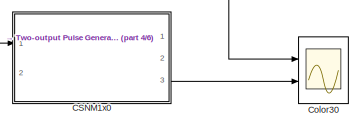
[diagram: root canvas - part 1/6, top center region]
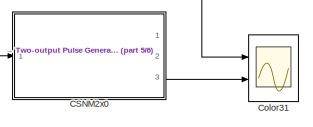
[diagram: root canvas - part 2/6, top right region]
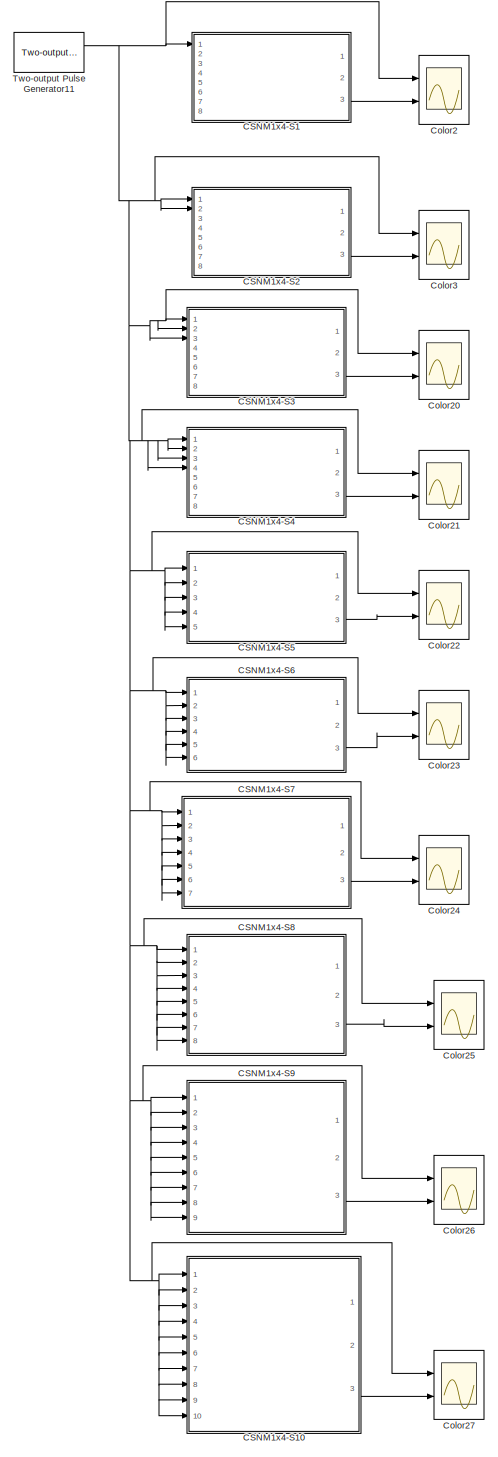
[diagram: root canvas - part 3/6, right side, full height]
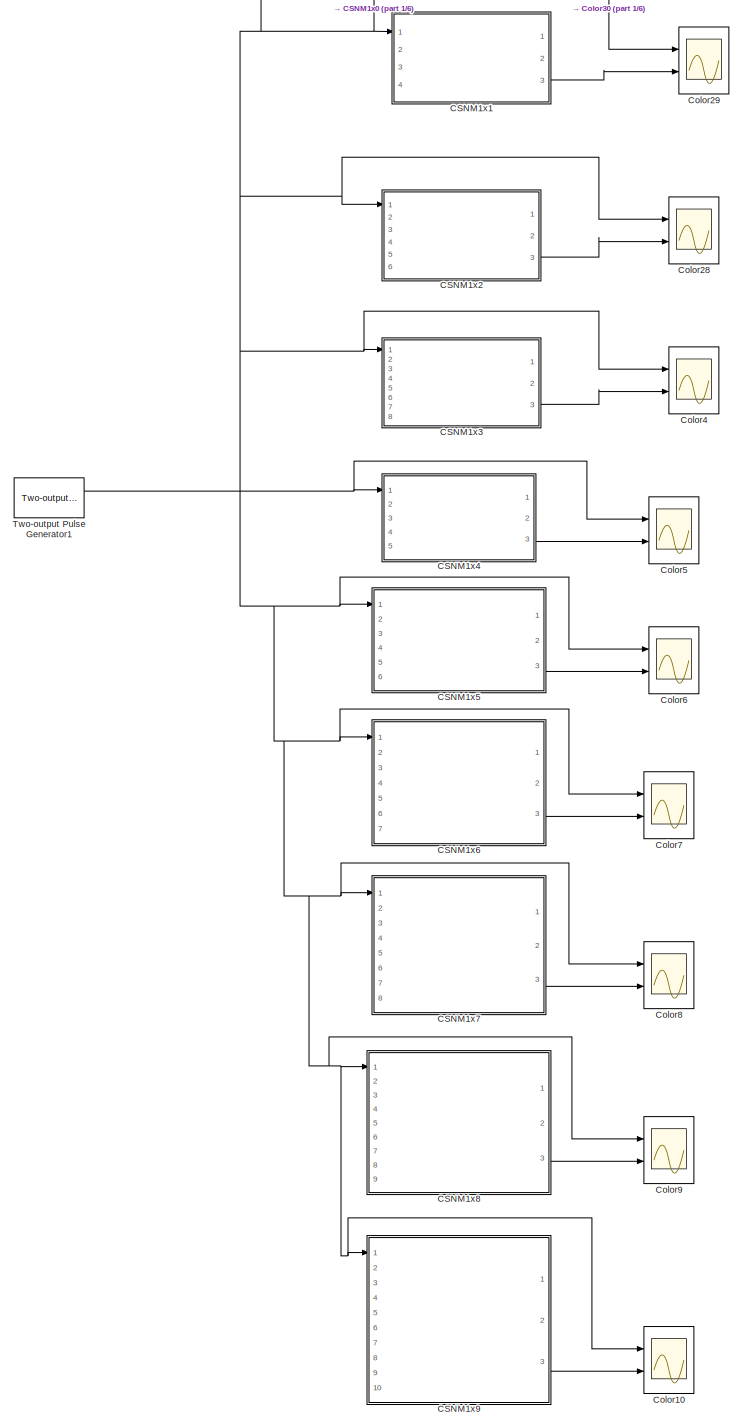
[diagram: root canvas - part 4/6, center side, full height]
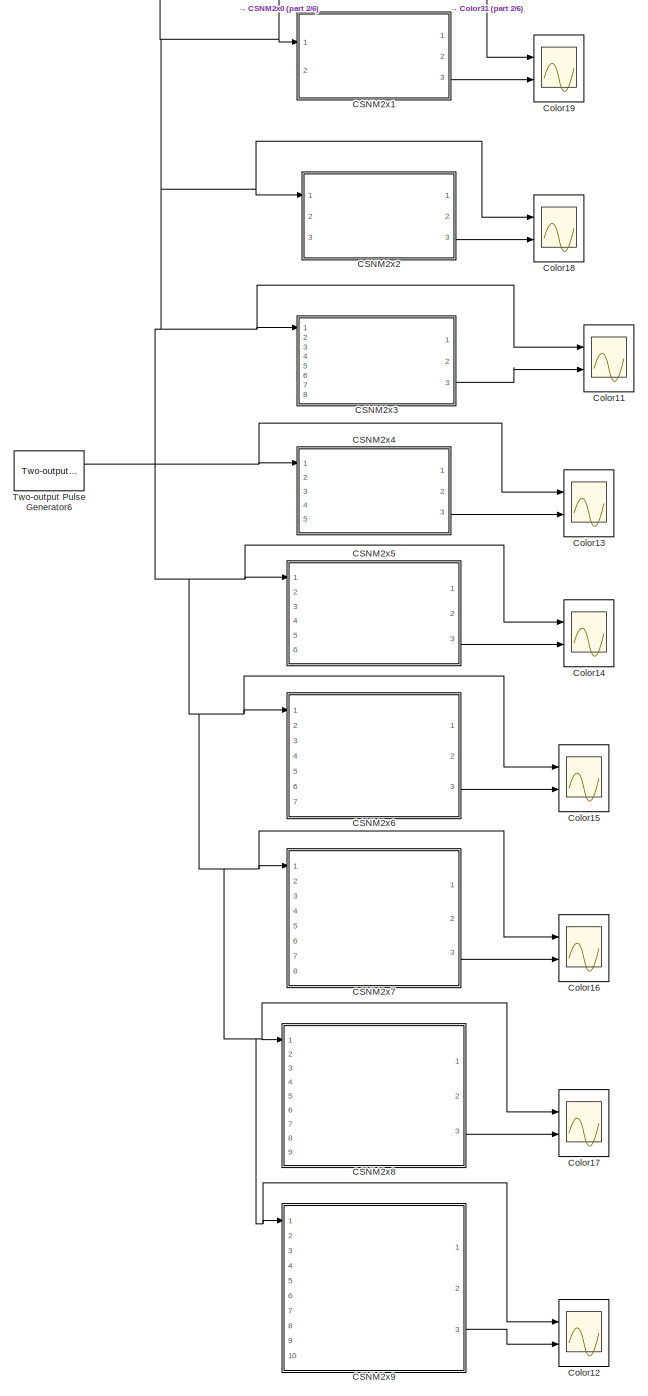
[diagram: root canvas - part 5/6, right side, full height]
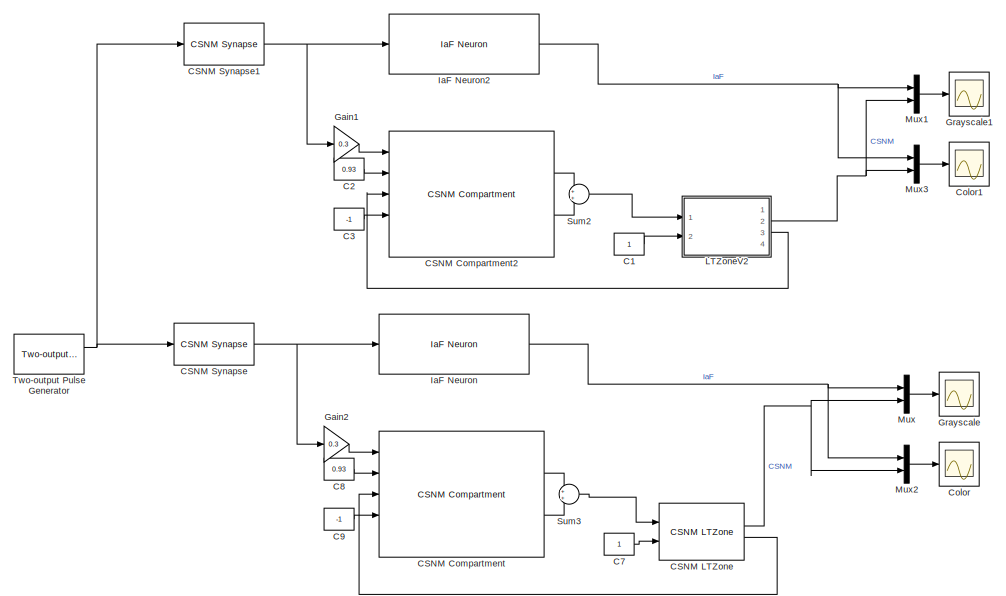
[diagram: root canvas - part 6/6, middle left region]
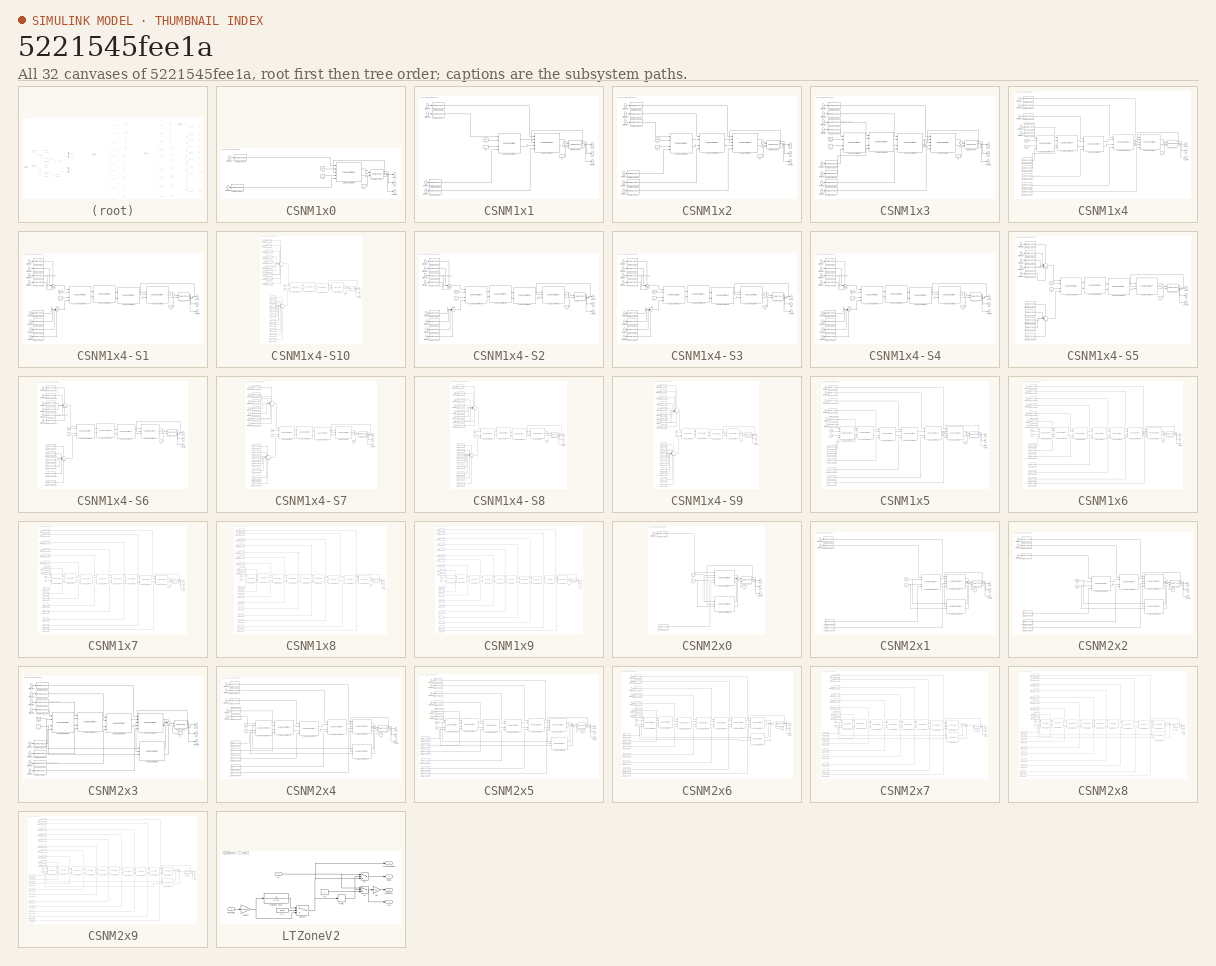
[diagram: thumbnail index - all 32 canvases of the model, root first then tree order]
MODEL slx_5221545fee1a
KIND model
CONFIG AbsTol = auto
CONFIG EnableMultiTasking = off
CONFIG FixedStep = auto
CONFIG MaxStep = auto
CONFIG MinStep = auto
CONFIG RelTol = 1e-3
CONFIG SampleTimeConstraint = Unconstrained
CONFIG SolverName = VariableStepAuto
CONFIG StartTime = 0.0
CONFIG StopTime = 1
BLOCK [Constant] C1
  NameLocation = top
BLOCK [Constant] C2
  Value = 0.93
BLOCK [Constant] C3
  Value = -1
BLOCK [Constant] C7
  NameLocation = top
BLOCK [Constant] C8
  Value = 0.93
BLOCK [Constant] C9
  Value = -1
BLOCK [Reference] CSNM Compartment  REF=NeuroModelerLibrary/Neuron Elements/CSNM Compartment
  Ports = [5, 2]
  SourceBlock = NeuroModelerLibrary/Neuron Elements/CSNM Compartment
BLOCK [Reference] CSNM Compartment2  REF=NeuroModelerLibrary/Neuron Elements/CSNM Compartment
  Ports = [5, 2]
  SourceBlock = NeuroModelerLibrary/Neuron Elements/CSNM Compartment
BLOCK [Reference] CSNM LTZone  REF=NeuroModelerLibrary/Neuron Elements/CSNM LTZone
  Ports = [2, 4]
  SourceBlock = NeuroModelerLibrary/Neuron Elements/CSNM LTZone
  SourceType = Ion pump
BLOCK [Reference] CSNM Synapse  REF=NeuroModelerLibrary/Neuron Elements/CSNM Synapse
  Ports = [1, 1]
  SourceBlock = NeuroModelerLibrary/Neuron Elements/CSNM Synapse
BLOCK [Reference] CSNM Synapse1  REF=NeuroModelerLibrary/Neuron Elements/CSNM Synapse
  Ports = [1, 1]
  SourceBlock = NeuroModelerLibrary/Neuron Elements/CSNM Synapse
BLOCK [SubSystem] CSNM1x0
  AncestorBlock = NeuroModelerLibrary/Sized Cells/CSNM1x3
  NameLocation = top
  Ports = [2, 3]
  RequestExecContextInheritance = off
BLOCK [Inport] CSNM1x0/Arresting4
  NameLocation = top
  Port = 2
BLOCK [Constant] CSNM1x0/C1
  NameLocation = top
BLOCK [Constant] CSNM1x0/C2
  Value = 0.93
BLOCK [Constant] CSNM1x0/C3
  Value = -1
BLOCK [Reference] CSNM1x0/CSNM Compartment  REF=NeuroModelerLibrary/Neuron Elements/CSNM Compartment
  Ports = [5, 2]
  SourceBlock = NeuroModelerLibrary/Neuron Elements/CSNM Compartment
BLOCK [Reference] CSNM1x0/CSNM LTZone  REF=NeuroModelerLibrary/Neuron Elements/CSNM LTZone
  Ports = [2, 4]
  SourceBlock = NeuroModelerLibrary/Neuron Elements/CSNM LTZone
  SourceType = Ion pump
BLOCK [Reference] CSNM1x0/CSNM Synapse  REF=NeuroModelerLibrary/Neuron Elements/CSNM Synapse
  Ports = [1, 1]
  SourceBlock = NeuroModelerLibrary/Neuron Elements/CSNM Synapse
BLOCK [Reference] CSNM1x0/CSNM Synapse7  REF=NeuroModelerLibrary/Neuron Elements/CSNM Synapse
  Ports = [1, 1]
  SourceBlock = NeuroModelerLibrary/Neuron Elements/CSNM Synapse
BLOCK [Outport] CSNM1x0/Out
  VectorParamsAs1DForOutWhenUnconnected = off
BLOCK [Outport] CSNM1x0/Potential
  Port = 3
  VectorParamsAs1DForOutWhenUnconnected = off
BLOCK [Inport] CSNM1x0/Stimulate4
  NameLocation = top
BLOCK [Sum] CSNM1x0/Sum7
  InputSameDT = on
  OutDataTypeStr = Inherit: Same as first input
  Ports = [2, 1]
  SaturateOnIntegerOverflow = on
BLOCK [Outport] CSNM1x0/Visual
  Port = 2
  VectorParamsAs1DForOutWhenUnconnected = off
BLOCK [SubSystem] CSNM1x1
  AncestorBlock = NeuroModelerLibrary/Sized Cells/CSNM1x3
  NameLocation = top
  Ports = [4, 3]
  RequestExecContextInheritance = off
BLOCK [Inport] CSNM1x1/Arresting3
  NameLocation = top
  Port = 3
BLOCK [Inport] CSNM1x1/Arresting4
  NameLocation = top
  Port = 4
BLOCK [Constant] CSNM1x1/C1
  NameLocation = top
BLOCK [Constant] CSNM1x1/C2
  Value = 0.93
BLOCK [Constant] CSNM1x1/C3
  Value = -1
BLOCK [Reference] CSNM1x1/CSNM Compartment  REF=NeuroModelerLibrary/Neuron Elements/CSNM Compartment
  Ports = [5, 2]
  SourceBlock = NeuroModelerLibrary/Neuron Elements/CSNM Compartment
BLOCK [Reference] CSNM1x1/CSNM Compartment3  REF=NeuroModelerLibrary/Neuron Elements/CSNM Compartment
  Ports = [5, 2]
  SourceBlock = NeuroModelerLibrary/Neuron Elements/CSNM Compartment
BLOCK [Reference] CSNM1x1/CSNM LTZone  REF=NeuroModelerLibrary/Neuron Elements/CSNM LTZone
  Ports = [2, 4]
  SourceBlock = NeuroModelerLibrary/Neuron Elements/CSNM LTZone
  SourceType = Ion pump
BLOCK [Reference] CSNM1x1/CSNM Synapse  REF=NeuroModelerLibrary/Neuron Elements/CSNM Synapse
  Ports = [1, 1]
  SourceBlock = NeuroModelerLibrary/Neuron Elements/CSNM Synapse
BLOCK [Reference] CSNM1x1/CSNM Synapse1  REF=NeuroModelerLibrary/Neuron Elements/CSNM Synapse
  Ports = [1, 1]
  SourceBlock = NeuroModelerLibrary/Neuron Elements/CSNM Synapse
BLOCK [Reference] CSNM1x1/CSNM Synapse6  REF=NeuroModelerLibrary/Neuron Elements/CSNM Synapse
  Ports = [1, 1]
  SourceBlock = NeuroModelerLibrary/Neuron Elements/CSNM Synapse
BLOCK [Reference] CSNM1x1/CSNM Synapse7  REF=NeuroModelerLibrary/Neuron Elements/CSNM Synapse
  Ports = [1, 1]
  SourceBlock = NeuroModelerLibrary/Neuron Elements/CSNM Synapse
BLOCK [Outport] CSNM1x1/Out
  VectorParamsAs1DForOutWhenUnconnected = off
BLOCK [Outport] CSNM1x1/Potential
  Port = 3
  VectorParamsAs1DForOutWhenUnconnected = off
BLOCK [Inport] CSNM1x1/Stimulate3
  NameLocation = top
BLOCK [Inport] CSNM1x1/Stimulate4
  NameLocation = top
  Port = 2
BLOCK [Sum] CSNM1x1/Sum7
  InputSameDT = on
  OutDataTypeStr = Inherit: Same as first input
  Ports = [2, 1]
  SaturateOnIntegerOverflow = on
BLOCK [Outport] CSNM1x1/Visual
  Port = 2
  VectorParamsAs1DForOutWhenUnconnected = off
BLOCK [SubSystem] CSNM1x2
  AncestorBlock = NeuroModelerLibrary/Sized Cells/CSNM1x3
  NameLocation = top
  Ports = [6, 3]
  RequestExecContextInheritance = off
BLOCK [Inport] CSNM1x2/Arresting2
  NameLocation = top
  Port = 4
BLOCK [Inport] CSNM1x2/Arresting3
  NameLocation = top
  Port = 5
BLOCK [Inport] CSNM1x2/Arresting4
  NameLocation = top
  Port = 6
BLOCK [Constant] CSNM1x2/C1
  NameLocation = top
BLOCK [Constant] CSNM1x2/C2
  Value = 0.93
BLOCK [Constant] CSNM1x2/C3
  Value = -1
BLOCK [Reference] CSNM1x2/CSNM Compartment  REF=NeuroModelerLibrary/Neuron Elements/CSNM Compartment
  Ports = [5, 2]
  SourceBlock = NeuroModelerLibrary/Neuron Elements/CSNM Compartment
BLOCK [Reference] CSNM1x2/CSNM Compartment1  REF=NeuroModelerLibrary/Neuron Elements/CSNM Compartment
  Ports = [5, 2]
  SourceBlock = NeuroModelerLibrary/Neuron Elements/CSNM Compartment
BLOCK [Reference] CSNM1x2/CSNM Compartment3  REF=NeuroModelerLibrary/Neuron Elements/CSNM Compartment
  Ports = [5, 2]
  SourceBlock = NeuroModelerLibrary/Neuron Elements/CSNM Compartment
BLOCK [Reference] CSNM1x2/CSNM LTZone  REF=NeuroModelerLibrary/Neuron Elements/CSNM LTZone
  Ports = [2, 4]
  SourceBlock = NeuroModelerLibrary/Neuron Elements/CSNM LTZone
  SourceType = Ion pump
BLOCK [Reference] CSNM1x2/CSNM Synapse  REF=NeuroModelerLibrary/Neuron Elements/CSNM Synapse
  Ports = [1, 1]
  SourceBlock = NeuroModelerLibrary/Neuron Elements/CSNM Synapse
BLOCK [Reference] CSNM1x2/CSNM Synapse1  REF=NeuroModelerLibrary/Neuron Elements/CSNM Synapse
  Ports = [1, 1]
  SourceBlock = NeuroModelerLibrary/Neuron Elements/CSNM Synapse
BLOCK [Reference] CSNM1x2/CSNM Synapse2  REF=NeuroModelerLibrary/Neuron Elements/CSNM Synapse
  Ports = [1, 1]
  SourceBlock = NeuroModelerLibrary/Neuron Elements/CSNM Synapse
BLOCK [Reference] CSNM1x2/CSNM Synapse5  REF=NeuroModelerLibrary/Neuron Elements/CSNM Synapse
  Ports = [1, 1]
  SourceBlock = NeuroModelerLibrary/Neuron Elements/CSNM Synapse
BLOCK [Reference] CSNM1x2/CSNM Synapse6  REF=NeuroModelerLibrary/Neuron Elements/CSNM Synapse
  Ports = [1, 1]
  SourceBlock = NeuroModelerLibrary/Neuron Elements/CSNM Synapse
BLOCK [Reference] CSNM1x2/CSNM Synapse7  REF=NeuroModelerLibrary/Neuron Elements/CSNM Synapse
  Ports = [1, 1]
  SourceBlock = NeuroModelerLibrary/Neuron Elements/CSNM Synapse
BLOCK [Outport] CSNM1x2/Out
  VectorParamsAs1DForOutWhenUnconnected = off
BLOCK [Outport] CSNM1x2/Potential
  Port = 3
  VectorParamsAs1DForOutWhenUnconnected = off
BLOCK [Inport] CSNM1x2/Stimulate2
  NameLocation = top
BLOCK [Inport] CSNM1x2/Stimulate3
  NameLocation = top
  Port = 2
BLOCK [Inport] CSNM1x2/Stimulate4
  NameLocation = top
  Port = 3
BLOCK [Sum] CSNM1x2/Sum7
  InputSameDT = on
  OutDataTypeStr = Inherit: Same as first input
  Ports = [2, 1]
  SaturateOnIntegerOverflow = on
BLOCK [Outport] CSNM1x2/Visual
  Port = 2
  VectorParamsAs1DForOutWhenUnconnected = off
BLOCK [SubSystem] CSNM1x3
  AncestorBlock = NeuroModelerLibrary/Sized Cells/CSNM1x3
  NameLocation = top
  Ports = [8, 3]
  RequestExecContextInheritance = off
BLOCK [Inport] CSNM1x3/Arresting1
  NameLocation = top
  Port = 5
BLOCK [Inport] CSNM1x3/Arresting2
  NameLocation = top
  Port = 6
BLOCK [Inport] CSNM1x3/Arresting3
  NameLocation = top
  Port = 7
BLOCK [Inport] CSNM1x3/Arresting4
  NameLocation = top
  Port = 8
BLOCK [Constant] CSNM1x3/C1
  NameLocation = top
BLOCK [Constant] CSNM1x3/C2
  Value = 0.93
BLOCK [Constant] CSNM1x3/C3
  Value = -1
BLOCK [Reference] CSNM1x3/CSNM Compartment  REF=NeuroModelerLibrary/Neuron Elements/CSNM Compartment
  Ports = [5, 2]
  SourceBlock = NeuroModelerLibrary/Neuron Elements/CSNM Compartment
BLOCK [Reference] CSNM1x3/CSNM Compartment1  REF=NeuroModelerLibrary/Neuron Elements/CSNM Compartment
  Ports = [5, 2]
  SourceBlock = NeuroModelerLibrary/Neuron Elements/CSNM Compartment
BLOCK [Reference] CSNM1x3/CSNM Compartment2  REF=NeuroModelerLibrary/Neuron Elements/CSNM Compartment
  Ports = [5, 2]
  SourceBlock = NeuroModelerLibrary/Neuron Elements/CSNM Compartment
BLOCK [Reference] CSNM1x3/CSNM Compartment3  REF=NeuroModelerLibrary/Neuron Elements/CSNM Compartment
  Ports = [5, 2]
  SourceBlock = NeuroModelerLibrary/Neuron Elements/CSNM Compartment
BLOCK [Reference] CSNM1x3/CSNM LTZone  REF=NeuroModelerLibrary/Neuron Elements/CSNM LTZone
  Ports = [2, 4]
  SourceBlock = NeuroModelerLibrary/Neuron Elements/CSNM LTZone
  SourceType = Ion pump
BLOCK [Reference] CSNM1x3/CSNM Synapse  REF=NeuroModelerLibrary/Neuron Elements/CSNM Synapse
  Ports = [1, 1]
  SourceBlock = NeuroModelerLibrary/Neuron Elements/CSNM Synapse
BLOCK [Reference] CSNM1x3/CSNM Synapse1  REF=NeuroModelerLibrary/Neuron Elements/CSNM Synapse
  Ports = [1, 1]
  SourceBlock = NeuroModelerLibrary/Neuron Elements/CSNM Synapse
BLOCK [Reference] CSNM1x3/CSNM Synapse2  REF=NeuroModelerLibrary/Neuron Elements/CSNM Synapse
  Ports = [1, 1]
  SourceBlock = NeuroModelerLibrary/Neuron Elements/CSNM Synapse
BLOCK [Reference] CSNM1x3/CSNM Synapse3  REF=NeuroModelerLibrary/Neuron Elements/CSNM Synapse
  Ports = [1, 1]
  SourceBlock = NeuroModelerLibrary/Neuron Elements/CSNM Synapse
BLOCK [Reference] CSNM1x3/CSNM Synapse4  REF=NeuroModelerLibrary/Neuron Elements/CSNM Synapse
  Ports = [1, 1]
  SourceBlock = NeuroModelerLibrary/Neuron Elements/CSNM Synapse
BLOCK [Reference] CSNM1x3/CSNM Synapse5  REF=NeuroModelerLibrary/Neuron Elements/CSNM Synapse
  Ports = [1, 1]
  SourceBlock = NeuroModelerLibrary/Neuron Elements/CSNM Synapse
BLOCK [Reference] CSNM1x3/CSNM Synapse6  REF=NeuroModelerLibrary/Neuron Elements/CSNM Synapse
  Ports = [1, 1]
  SourceBlock = NeuroModelerLibrary/Neuron Elements/CSNM Synapse
BLOCK [Reference] CSNM1x3/CSNM Synapse7  REF=NeuroModelerLibrary/Neuron Elements/CSNM Synapse
  Ports = [1, 1]
  SourceBlock = NeuroModelerLibrary/Neuron Elements/CSNM Synapse
BLOCK [Outport] CSNM1x3/Out
  VectorParamsAs1DForOutWhenUnconnected = off
BLOCK [Outport] CSNM1x3/Potential
  Port = 3
  VectorParamsAs1DForOutWhenUnconnected = off
BLOCK [Inport] CSNM1x3/Stimulate1
  NameLocation = top
BLOCK [Inport] CSNM1x3/Stimulate2
  NameLocation = top
  Port = 2
BLOCK [Inport] CSNM1x3/Stimulate3
  NameLocation = top
  Port = 3
BLOCK [Inport] CSNM1x3/Stimulate4
  NameLocation = top
  Port = 4
BLOCK [Sum] CSNM1x3/Sum12
  InputSameDT = on
  OutDataTypeStr = Inherit: Same as first input
  Ports = [2, 1]
  SaturateOnIntegerOverflow = on
BLOCK [Sum] CSNM1x3/Sum7
  InputSameDT = on
  OutDataTypeStr = Inherit: Same as first input
  Ports = [2, 1]
  SaturateOnIntegerOverflow = on
BLOCK [Outport] CSNM1x3/Visual
  Port = 2
  VectorParamsAs1DForOutWhenUnconnected = off
BLOCK [SubSystem] CSNM1x4
  NameLocation = top
  Ports = [5, 3]
  RequestExecContextInheritance = off
BLOCK [SubSystem] CSNM1x4-S1
  AncestorBlock = NeuroModelerLibrary/Sized Cells/CSNM1x4-Syn4
  NameLocation = top
  Ports = [8, 3]
  RequestExecContextInheritance = off
BLOCK [Inport] CSNM1x4-S1/Arresting1
  NameLocation = top
  Port = 5
BLOCK [Inport] CSNM1x4-S1/Arresting2
  NameLocation = top
  Port = 6
BLOCK [Inport] CSNM1x4-S1/Arresting3
  NameLocation = top
  Port = 7
BLOCK [Inport] CSNM1x4-S1/Arresting4
  NameLocation = top
  Port = 8
BLOCK [Constant] CSNM1x4-S1/C1
  NameLocation = top
BLOCK [Constant] CSNM1x4-S1/C2
  Value = 0.93
BLOCK [Constant] CSNM1x4-S1/C3
  Value = -1
BLOCK [Reference] CSNM1x4-S1/CSNM Compartment  REF=NeuroModelerLibrary/Neuron Elements/CSNM Compartment
  Ports = [5, 2]
  SourceBlock = NeuroModelerLibrary/Neuron Elements/CSNM Compartment
BLOCK [Reference] CSNM1x4-S1/CSNM Compartment1  REF=NeuroModelerLibrary/Neuron Elements/CSNM Compartment
  Ports = [5, 2]
  SourceBlock = NeuroModelerLibrary/Neuron Elements/CSNM Compartment
BLOCK [Reference] CSNM1x4-S1/CSNM Compartment2  REF=NeuroModelerLibrary/Neuron Elements/CSNM Compartment
  Ports = [5, 2]
  SourceBlock = NeuroModelerLibrary/Neuron Elements/CSNM Compartment
BLOCK [Reference] CSNM1x4-S1/CSNM Compartment3  REF=NeuroModelerLibrary/Neuron Elements/CSNM Compartment
  Ports = [5, 2]
  SourceBlock = NeuroModelerLibrary/Neuron Elements/CSNM Compartment
BLOCK [Reference] CSNM1x4-S1/CSNM LTZone  REF=NeuroModelerLibrary/Neuron Elements/CSNM LTZone
  Ports = [2, 4]
  SourceBlock = NeuroModelerLibrary/Neuron Elements/CSNM LTZone
  SourceType = Ion pump
BLOCK [Reference] CSNM1x4-S1/CSNM Synapse  REF=NeuroModelerLibrary/Neuron Elements/CSNM Synapse
  Ports = [1, 1]
  SourceBlock = NeuroModelerLibrary/Neuron Elements/CSNM Synapse
BLOCK [Reference] CSNM1x4-S1/CSNM Synapse1  REF=NeuroModelerLibrary/Neuron Elements/CSNM Synapse
  Ports = [1, 1]
  SourceBlock = NeuroModelerLibrary/Neuron Elements/CSNM Synapse
BLOCK [Reference] CSNM1x4-S1/CSNM Synapse2  REF=NeuroModelerLibrary/Neuron Elements/CSNM Synapse
  Ports = [1, 1]
  SourceBlock = NeuroModelerLibrary/Neuron Elements/CSNM Synapse
BLOCK [Reference] CSNM1x4-S1/CSNM Synapse3  REF=NeuroModelerLibrary/Neuron Elements/CSNM Synapse
  Ports = [1, 1]
  SourceBlock = NeuroModelerLibrary/Neuron Elements/CSNM Synapse
BLOCK [Reference] CSNM1x4-S1/CSNM Synapse4  REF=NeuroModelerLibrary/Neuron Elements/CSNM Synapse
  Ports = [1, 1]
  SourceBlock = NeuroModelerLibrary/Neuron Elements/CSNM Synapse
BLOCK [Reference] CSNM1x4-S1/CSNM Synapse5  REF=NeuroModelerLibrary/Neuron Elements/CSNM Synapse
  Ports = [1, 1]
  SourceBlock = NeuroModelerLibrary/Neuron Elements/CSNM Synapse
BLOCK [Reference] CSNM1x4-S1/CSNM Synapse6  REF=NeuroModelerLibrary/Neuron Elements/CSNM Synapse
  Ports = [1, 1]
  SourceBlock = NeuroModelerLibrary/Neuron Elements/CSNM Synapse
BLOCK [Reference] CSNM1x4-S1/CSNM Synapse7  REF=NeuroModelerLibrary/Neuron Elements/CSNM Synapse
  Ports = [1, 1]
  SourceBlock = NeuroModelerLibrary/Neuron Elements/CSNM Synapse
BLOCK [Outport] CSNM1x4-S1/Out
  VectorParamsAs1DForOutWhenUnconnected = off
BLOCK [Outport] CSNM1x4-S1/Potential
  Port = 3
  VectorParamsAs1DForOutWhenUnconnected = off
BLOCK [Inport] CSNM1x4-S1/Stimulate1
  NameLocation = top
BLOCK [Inport] CSNM1x4-S1/Stimulate2
  NameLocation = top
  Port = 2
BLOCK [Inport] CSNM1x4-S1/Stimulate3
  NameLocation = top
  Port = 3
BLOCK [Inport] CSNM1x4-S1/Stimulate4
  NameLocation = top
  Port = 4
BLOCK [Sum] CSNM1x4-S1/Sum1
  InputSameDT = on
  Inputs = ++++
  OutDataTypeStr = Inherit: Same as first input
  Ports = [4, 1]
  SaturateOnIntegerOverflow = on
BLOCK [Sum] CSNM1x4-S1/Sum12
  InputSameDT = on
  Inputs = ++++
  OutDataTypeStr = Inherit: Same as first input
  Ports = [4, 1]
  SaturateOnIntegerOverflow = on
BLOCK [Sum] CSNM1x4-S1/Sum7
  InputSameDT = on
  OutDataTypeStr = Inherit: Same as first input
  Ports = [2, 1]
  SaturateOnIntegerOverflow = on
BLOCK [Outport] CSNM1x4-S1/Visual
  Port = 2
  VectorParamsAs1DForOutWhenUnconnected = off
BLOCK [SubSystem] CSNM1x4-S10
  NameLocation = top
  Ports = [10, 3]
  RequestExecContextInheritance = off
BLOCK [Constant] CSNM1x4-S10/C1
  NameLocation = top
BLOCK [Constant] CSNM1x4-S10/C2
  Value = 0.93
BLOCK [Constant] CSNM1x4-S10/C3
  Value = -1
BLOCK [Reference] CSNM1x4-S10/CSNM Compartment  REF=NeuroModelerLibrary/Neuron Elements/CSNM Compartment
  Ports = [5, 2]
  SourceBlock = NeuroModelerLibrary/Neuron Elements/CSNM Compartment
BLOCK [Reference] CSNM1x4-S10/CSNM Compartment1  REF=NeuroModelerLibrary/Neuron Elements/CSNM Compartment
  Ports = [5, 2]
  SourceBlock = NeuroModelerLibrary/Neuron Elements/CSNM Compartment
BLOCK [Reference] CSNM1x4-S10/CSNM Compartment2  REF=NeuroModelerLibrary/Neuron Elements/CSNM Compartment
  Ports = [5, 2]
  SourceBlock = NeuroModelerLibrary/Neuron Elements/CSNM Compartment
BLOCK [Reference] CSNM1x4-S10/CSNM Compartment3  REF=NeuroModelerLibrary/Neuron Elements/CSNM Compartment
  Ports = [5, 2]
  SourceBlock = NeuroModelerLibrary/Neuron Elements/CSNM Compartment
BLOCK [Reference] CSNM1x4-S10/CSNM LTZone  REF=NeuroModelerLibrary/Neuron Elements/CSNM LTZone
  Ports = [2, 4]
  SourceBlock = NeuroModelerLibrary/Neuron Elements/CSNM LTZone
  SourceType = Ion pump
BLOCK [Reference] CSNM1x4-S10/CSNM Synapse  REF=NeuroModelerLibrary/Neuron Elements/CSNM Synapse
  Ports = [1, 1]
  SourceBlock = NeuroModelerLibrary/Neuron Elements/CSNM Synapse
BLOCK [Reference] CSNM1x4-S10/CSNM Synapse1  REF=NeuroModelerLibrary/Neuron Elements/CSNM Synapse
  Ports = [1, 1]
  SourceBlock = NeuroModelerLibrary/Neuron Elements/CSNM Synapse
BLOCK [Reference] CSNM1x4-S10/CSNM Synapse10  REF=NeuroModelerLibrary/Neuron Elements/CSNM Synapse
  Ports = [1, 1]
  SourceBlock = NeuroModelerLibrary/Neuron Elements/CSNM Synapse
BLOCK [Reference] CSNM1x4-S10/CSNM Synapse11  REF=NeuroModelerLibrary/Neuron Elements/CSNM Synapse
  Ports = [1, 1]
  SourceBlock = NeuroModelerLibrary/Neuron Elements/CSNM Synapse
BLOCK [Reference] CSNM1x4-S10/CSNM Synapse12  REF=NeuroModelerLibrary/Neuron Elements/CSNM Synapse
  Ports = [1, 1]
  SourceBlock = NeuroModelerLibrary/Neuron Elements/CSNM Synapse
BLOCK [Reference] CSNM1x4-S10/CSNM Synapse13  REF=NeuroModelerLibrary/Neuron Elements/CSNM Synapse
  Ports = [1, 1]
  SourceBlock = NeuroModelerLibrary/Neuron Elements/CSNM Synapse
BLOCK [Reference] CSNM1x4-S10/CSNM Synapse14  REF=NeuroModelerLibrary/Neuron Elements/CSNM Synapse
  Ports = [1, 1]
  SourceBlock = NeuroModelerLibrary/Neuron Elements/CSNM Synapse
BLOCK [Reference] CSNM1x4-S10/CSNM Synapse15  REF=NeuroModelerLibrary/Neuron Elements/CSNM Synapse
  Ports = [1, 1]
  SourceBlock = NeuroModelerLibrary/Neuron Elements/CSNM Synapse
BLOCK [Reference] CSNM1x4-S10/CSNM Synapse16  REF=NeuroModelerLibrary/Neuron Elements/CSNM Synapse
  Ports = [1, 1]
  SourceBlock = NeuroModelerLibrary/Neuron Elements/CSNM Synapse
BLOCK [Reference] CSNM1x4-S10/CSNM Synapse17  REF=NeuroModelerLibrary/Neuron Elements/CSNM Synapse
  Ports = [1, 1]
  SourceBlock = NeuroModelerLibrary/Neuron Elements/CSNM Synapse
BLOCK [Reference] CSNM1x4-S10/CSNM Synapse18  REF=NeuroModelerLibrary/Neuron Elements/CSNM Synapse
  Ports = [1, 1]
  SourceBlock = NeuroModelerLibrary/Neuron Elements/CSNM Synapse
BLOCK [Reference] CSNM1x4-S10/CSNM Synapse19  REF=NeuroModelerLibrary/Neuron Elements/CSNM Synapse
  Ports = [1, 1]
  SourceBlock = NeuroModelerLibrary/Neuron Elements/CSNM Synapse
BLOCK [Reference] CSNM1x4-S10/CSNM Synapse2  REF=NeuroModelerLibrary/Neuron Elements/CSNM Synapse
  Ports = [1, 1]
  SourceBlock = NeuroModelerLibrary/Neuron Elements/CSNM Synapse
BLOCK [Reference] CSNM1x4-S10/CSNM Synapse3  REF=NeuroModelerLibrary/Neuron Elements/CSNM Synapse
  Ports = [1, 1]
  SourceBlock = NeuroModelerLibrary/Neuron Elements/CSNM Synapse
BLOCK [Reference] CSNM1x4-S10/CSNM Synapse4  REF=NeuroModelerLibrary/Neuron Elements/CSNM Synapse
  Ports = [1, 1]
  SourceBlock = NeuroModelerLibrary/Neuron Elements/CSNM Synapse
BLOCK [Reference] CSNM1x4-S10/CSNM Synapse5  REF=NeuroModelerLibrary/Neuron Elements/CSNM Synapse
  Ports = [1, 1]
  SourceBlock = NeuroModelerLibrary/Neuron Elements/CSNM Synapse
BLOCK [Reference] CSNM1x4-S10/CSNM Synapse6  REF=NeuroModelerLibrary/Neuron Elements/CSNM Synapse
  Ports = [1, 1]
  SourceBlock = NeuroModelerLibrary/Neuron Elements/CSNM Synapse
BLOCK [Reference] CSNM1x4-S10/CSNM Synapse7  REF=NeuroModelerLibrary/Neuron Elements/CSNM Synapse
  Ports = [1, 1]
  SourceBlock = NeuroModelerLibrary/Neuron Elements/CSNM Synapse
BLOCK [Reference] CSNM1x4-S10/CSNM Synapse8  REF=NeuroModelerLibrary/Neuron Elements/CSNM Synapse
  Ports = [1, 1]
  SourceBlock = NeuroModelerLibrary/Neuron Elements/CSNM Synapse
BLOCK [Reference] CSNM1x4-S10/CSNM Synapse9  REF=NeuroModelerLibrary/Neuron Elements/CSNM Synapse
  Ports = [1, 1]
  SourceBlock = NeuroModelerLibrary/Neuron Elements/CSNM Synapse
BLOCK [Outport] CSNM1x4-S10/Out
  VectorParamsAs1DForOutWhenUnconnected = off
BLOCK [Outport] CSNM1x4-S10/Potential
  Port = 3
  VectorParamsAs1DForOutWhenUnconnected = off
BLOCK [Inport] CSNM1x4-S10/Stimulate1
  NameLocation = top
BLOCK [Inport] CSNM1x4-S10/Stimulate10
  NameLocation = top
  Port = 10
BLOCK [Inport] CSNM1x4-S10/Stimulate2
  NameLocation = top
  Port = 2
BLOCK [Inport] CSNM1x4-S10/Stimulate3
  NameLocation = top
  Port = 3
BLOCK [Inport] CSNM1x4-S10/Stimulate4
  NameLocation = top
  Port = 4
BLOCK [Inport] CSNM1x4-S10/Stimulate5
  NameLocation = top
  Port = 5
BLOCK [Inport] CSNM1x4-S10/Stimulate6
  NameLocation = top
  Port = 6
BLOCK [Inport] CSNM1x4-S10/Stimulate7
  NameLocation = top
  Port = 7
BLOCK [Inport] CSNM1x4-S10/Stimulate8
  NameLocation = top
  Port = 8
BLOCK [Inport] CSNM1x4-S10/Stimulate9
  NameLocation = top
  Port = 9
BLOCK [Sum] CSNM1x4-S10/Sum1
  InputSameDT = on
  Inputs = ++++++++++
  OutDataTypeStr = Inherit: Same as first input
  Ports = [10, 1]
  SaturateOnIntegerOverflow = on
BLOCK [Sum] CSNM1x4-S10/Sum12
  InputSameDT = on
  Inputs = ++++++++++
  OutDataTypeStr = Inherit: Same as first input
  Ports = [10, 1]
  SaturateOnIntegerOverflow = on
BLOCK [Sum] CSNM1x4-S10/Sum7
  InputSameDT = on
  OutDataTypeStr = Inherit: Same as first input
  Ports = [2, 1]
  SaturateOnIntegerOverflow = on
BLOCK [Outport] CSNM1x4-S10/Visual
  Port = 2
  VectorParamsAs1DForOutWhenUnconnected = off
BLOCK [SubSystem] CSNM1x4-S2
  AncestorBlock = NeuroModelerLibrary/Sized Cells/CSNM1x4-Syn4
  NameLocation = top
  Ports = [8, 3]
  RequestExecContextInheritance = off
BLOCK [Inport] CSNM1x4-S2/Arresting1
  NameLocation = top
  Port = 5
BLOCK [Inport] CSNM1x4-S2/Arresting2
  NameLocation = top
  Port = 6
BLOCK [Inport] CSNM1x4-S2/Arresting3
  NameLocation = top
  Port = 7
BLOCK [Inport] CSNM1x4-S2/Arresting4
  NameLocation = top
  Port = 8
BLOCK [Constant] CSNM1x4-S2/C1
  NameLocation = top
BLOCK [Constant] CSNM1x4-S2/C2
  Value = 0.93
BLOCK [Constant] CSNM1x4-S2/C3
  Value = -1
BLOCK [Reference] CSNM1x4-S2/CSNM Compartment  REF=NeuroModelerLibrary/Neuron Elements/CSNM Compartment
  Ports = [5, 2]
  SourceBlock = NeuroModelerLibrary/Neuron Elements/CSNM Compartment
BLOCK [Reference] CSNM1x4-S2/CSNM Compartment1  REF=NeuroModelerLibrary/Neuron Elements/CSNM Compartment
  Ports = [5, 2]
  SourceBlock = NeuroModelerLibrary/Neuron Elements/CSNM Compartment
BLOCK [Reference] CSNM1x4-S2/CSNM Compartment2  REF=NeuroModelerLibrary/Neuron Elements/CSNM Compartment
  Ports = [5, 2]
  SourceBlock = NeuroModelerLibrary/Neuron Elements/CSNM Compartment
BLOCK [Reference] CSNM1x4-S2/CSNM Compartment3  REF=NeuroModelerLibrary/Neuron Elements/CSNM Compartment
  Ports = [5, 2]
  SourceBlock = NeuroModelerLibrary/Neuron Elements/CSNM Compartment
BLOCK [Reference] CSNM1x4-S2/CSNM LTZone  REF=NeuroModelerLibrary/Neuron Elements/CSNM LTZone
  Ports = [2, 4]
  SourceBlock = NeuroModelerLibrary/Neuron Elements/CSNM LTZone
  SourceType = Ion pump
BLOCK [Reference] CSNM1x4-S2/CSNM Synapse  REF=NeuroModelerLibrary/Neuron Elements/CSNM Synapse
  Ports = [1, 1]
  SourceBlock = NeuroModelerLibrary/Neuron Elements/CSNM Synapse
BLOCK [Reference] CSNM1x4-S2/CSNM Synapse1  REF=NeuroModelerLibrary/Neuron Elements/CSNM Synapse
  Ports = [1, 1]
  SourceBlock = NeuroModelerLibrary/Neuron Elements/CSNM Synapse
BLOCK [Reference] CSNM1x4-S2/CSNM Synapse2  REF=NeuroModelerLibrary/Neuron Elements/CSNM Synapse
  Ports = [1, 1]
  SourceBlock = NeuroModelerLibrary/Neuron Elements/CSNM Synapse
BLOCK [Reference] CSNM1x4-S2/CSNM Synapse3  REF=NeuroModelerLibrary/Neuron Elements/CSNM Synapse
  Ports = [1, 1]
  SourceBlock = NeuroModelerLibrary/Neuron Elements/CSNM Synapse
BLOCK [Reference] CSNM1x4-S2/CSNM Synapse4  REF=NeuroModelerLibrary/Neuron Elements/CSNM Synapse
  Ports = [1, 1]
  SourceBlock = NeuroModelerLibrary/Neuron Elements/CSNM Synapse
BLOCK [Reference] CSNM1x4-S2/CSNM Synapse5  REF=NeuroModelerLibrary/Neuron Elements/CSNM Synapse
  Ports = [1, 1]
  SourceBlock = NeuroModelerLibrary/Neuron Elements/CSNM Synapse
BLOCK [Reference] CSNM1x4-S2/CSNM Synapse6  REF=NeuroModelerLibrary/Neuron Elements/CSNM Synapse
  Ports = [1, 1]
  SourceBlock = NeuroModelerLibrary/Neuron Elements/CSNM Synapse
BLOCK [Reference] CSNM1x4-S2/CSNM Synapse7  REF=NeuroModelerLibrary/Neuron Elements/CSNM Synapse
  Ports = [1, 1]
  SourceBlock = NeuroModelerLibrary/Neuron Elements/CSNM Synapse
BLOCK [Outport] CSNM1x4-S2/Out
  VectorParamsAs1DForOutWhenUnconnected = off
BLOCK [Outport] CSNM1x4-S2/Potential
  Port = 3
  VectorParamsAs1DForOutWhenUnconnected = off
BLOCK [Inport] CSNM1x4-S2/Stimulate1
  NameLocation = top
BLOCK [Inport] CSNM1x4-S2/Stimulate2
  NameLocation = top
  Port = 2
BLOCK [Inport] CSNM1x4-S2/Stimulate3
  NameLocation = top
  Port = 3
BLOCK [Inport] CSNM1x4-S2/Stimulate4
  NameLocation = top
  Port = 4
BLOCK [Sum] CSNM1x4-S2/Sum1
  InputSameDT = on
  Inputs = ++++
  OutDataTypeStr = Inherit: Same as first input
  Ports = [4, 1]
  SaturateOnIntegerOverflow = on
BLOCK [Sum] CSNM1x4-S2/Sum12
  InputSameDT = on
  Inputs = ++++
  OutDataTypeStr = Inherit: Same as first input
  Ports = [4, 1]
  SaturateOnIntegerOverflow = on
BLOCK [Sum] CSNM1x4-S2/Sum7
  InputSameDT = on
  OutDataTypeStr = Inherit: Same as first input
  Ports = [2, 1]
  SaturateOnIntegerOverflow = on
BLOCK [Outport] CSNM1x4-S2/Visual
  Port = 2
  VectorParamsAs1DForOutWhenUnconnected = off
BLOCK [SubSystem] CSNM1x4-S3
  AncestorBlock = NeuroModelerLibrary/Sized Cells/CSNM1x4-Syn4
  NameLocation = top
  Ports = [8, 3]
  RequestExecContextInheritance = off
BLOCK [Inport] CSNM1x4-S3/Arresting1
  NameLocation = top
  Port = 5
BLOCK [Inport] CSNM1x4-S3/Arresting2
  NameLocation = top
  Port = 6
BLOCK [Inport] CSNM1x4-S3/Arresting3
  NameLocation = top
  Port = 7
BLOCK [Inport] CSNM1x4-S3/Arresting4
  NameLocation = top
  Port = 8
BLOCK [Constant] CSNM1x4-S3/C1
  NameLocation = top
BLOCK [Constant] CSNM1x4-S3/C2
  Value = 0.93
BLOCK [Constant] CSNM1x4-S3/C3
  Value = -1
BLOCK [Reference] CSNM1x4-S3/CSNM Compartment  REF=NeuroModelerLibrary/Neuron Elements/CSNM Compartment
  Ports = [5, 2]
  SourceBlock = NeuroModelerLibrary/Neuron Elements/CSNM Compartment
BLOCK [Reference] CSNM1x4-S3/CSNM Compartment1  REF=NeuroModelerLibrary/Neuron Elements/CSNM Compartment
  Ports = [5, 2]
  SourceBlock = NeuroModelerLibrary/Neuron Elements/CSNM Compartment
BLOCK [Reference] CSNM1x4-S3/CSNM Compartment2  REF=NeuroModelerLibrary/Neuron Elements/CSNM Compartment
  Ports = [5, 2]
  SourceBlock = NeuroModelerLibrary/Neuron Elements/CSNM Compartment
BLOCK [Reference] CSNM1x4-S3/CSNM Compartment3  REF=NeuroModelerLibrary/Neuron Elements/CSNM Compartment
  Ports = [5, 2]
  SourceBlock = NeuroModelerLibrary/Neuron Elements/CSNM Compartment
BLOCK [Reference] CSNM1x4-S3/CSNM LTZone  REF=NeuroModelerLibrary/Neuron Elements/CSNM LTZone
  Ports = [2, 4]
  SourceBlock = NeuroModelerLibrary/Neuron Elements/CSNM LTZone
  SourceType = Ion pump
BLOCK [Reference] CSNM1x4-S3/CSNM Synapse  REF=NeuroModelerLibrary/Neuron Elements/CSNM Synapse
  Ports = [1, 1]
  SourceBlock = NeuroModelerLibrary/Neuron Elements/CSNM Synapse
BLOCK [Reference] CSNM1x4-S3/CSNM Synapse1  REF=NeuroModelerLibrary/Neuron Elements/CSNM Synapse
  Ports = [1, 1]
  SourceBlock = NeuroModelerLibrary/Neuron Elements/CSNM Synapse
BLOCK [Reference] CSNM1x4-S3/CSNM Synapse2  REF=NeuroModelerLibrary/Neuron Elements/CSNM Synapse
  Ports = [1, 1]
  SourceBlock = NeuroModelerLibrary/Neuron Elements/CSNM Synapse
BLOCK [Reference] CSNM1x4-S3/CSNM Synapse3  REF=NeuroModelerLibrary/Neuron Elements/CSNM Synapse
  Ports = [1, 1]
  SourceBlock = NeuroModelerLibrary/Neuron Elements/CSNM Synapse
BLOCK [Reference] CSNM1x4-S3/CSNM Synapse4  REF=NeuroModelerLibrary/Neuron Elements/CSNM Synapse
  Ports = [1, 1]
  SourceBlock = NeuroModelerLibrary/Neuron Elements/CSNM Synapse
BLOCK [Reference] CSNM1x4-S3/CSNM Synapse5  REF=NeuroModelerLibrary/Neuron Elements/CSNM Synapse
  Ports = [1, 1]
  SourceBlock = NeuroModelerLibrary/Neuron Elements/CSNM Synapse
BLOCK [Reference] CSNM1x4-S3/CSNM Synapse6  REF=NeuroModelerLibrary/Neuron Elements/CSNM Synapse
  Ports = [1, 1]
  SourceBlock = NeuroModelerLibrary/Neuron Elements/CSNM Synapse
BLOCK [Reference] CSNM1x4-S3/CSNM Synapse7  REF=NeuroModelerLibrary/Neuron Elements/CSNM Synapse
  Ports = [1, 1]
  SourceBlock = NeuroModelerLibrary/Neuron Elements/CSNM Synapse
BLOCK [Outport] CSNM1x4-S3/Out
  VectorParamsAs1DForOutWhenUnconnected = off
BLOCK [Outport] CSNM1x4-S3/Potential
  Port = 3
  VectorParamsAs1DForOutWhenUnconnected = off
BLOCK [Inport] CSNM1x4-S3/Stimulate1
  NameLocation = top
BLOCK [Inport] CSNM1x4-S3/Stimulate2
  NameLocation = top
  Port = 2
BLOCK [Inport] CSNM1x4-S3/Stimulate3
  NameLocation = top
  Port = 3
BLOCK [Inport] CSNM1x4-S3/Stimulate4
  NameLocation = top
  Port = 4
BLOCK [Sum] CSNM1x4-S3/Sum1
  InputSameDT = on
  Inputs = ++++
  OutDataTypeStr = Inherit: Same as first input
  Ports = [4, 1]
  SaturateOnIntegerOverflow = on
BLOCK [Sum] CSNM1x4-S3/Sum12
  InputSameDT = on
  Inputs = ++++
  OutDataTypeStr = Inherit: Same as first input
  Ports = [4, 1]
  SaturateOnIntegerOverflow = on
BLOCK [Sum] CSNM1x4-S3/Sum7
  InputSameDT = on
  OutDataTypeStr = Inherit: Same as first input
  Ports = [2, 1]
  SaturateOnIntegerOverflow = on
BLOCK [Outport] CSNM1x4-S3/Visual
  Port = 2
  VectorParamsAs1DForOutWhenUnconnected = off
BLOCK [SubSystem] CSNM1x4-S4
  AncestorBlock = NeuroModelerLibrary/Sized Cells/CSNM1x4-Syn4
  NameLocation = top
  Ports = [8, 3]
  RequestExecContextInheritance = off
BLOCK [Inport] CSNM1x4-S4/Arresting1
  NameLocation = top
  Port = 5
BLOCK [Inport] CSNM1x4-S4/Arresting2
  NameLocation = top
  Port = 6
BLOCK [Inport] CSNM1x4-S4/Arresting3
  NameLocation = top
  Port = 7
BLOCK [Inport] CSNM1x4-S4/Arresting4
  NameLocation = top
  Port = 8
BLOCK [Constant] CSNM1x4-S4/C1
  NameLocation = top
BLOCK [Constant] CSNM1x4-S4/C2
  Value = 0.93
BLOCK [Constant] CSNM1x4-S4/C3
  Value = -1
BLOCK [Reference] CSNM1x4-S4/CSNM Compartment  REF=NeuroModelerLibrary/Neuron Elements/CSNM Compartment
  Ports = [5, 2]
  SourceBlock = NeuroModelerLibrary/Neuron Elements/CSNM Compartment
BLOCK [Reference] CSNM1x4-S4/CSNM Compartment1  REF=NeuroModelerLibrary/Neuron Elements/CSNM Compartment
  Ports = [5, 2]
  SourceBlock = NeuroModelerLibrary/Neuron Elements/CSNM Compartment
BLOCK [Reference] CSNM1x4-S4/CSNM Compartment2  REF=NeuroModelerLibrary/Neuron Elements/CSNM Compartment
  Ports = [5, 2]
  SourceBlock = NeuroModelerLibrary/Neuron Elements/CSNM Compartment
BLOCK [Reference] CSNM1x4-S4/CSNM Compartment3  REF=NeuroModelerLibrary/Neuron Elements/CSNM Compartment
  Ports = [5, 2]
  SourceBlock = NeuroModelerLibrary/Neuron Elements/CSNM Compartment
BLOCK [Reference] CSNM1x4-S4/CSNM LTZone  REF=NeuroModelerLibrary/Neuron Elements/CSNM LTZone
  Ports = [2, 4]
  SourceBlock = NeuroModelerLibrary/Neuron Elements/CSNM LTZone
  SourceType = Ion pump
BLOCK [Reference] CSNM1x4-S4/CSNM Synapse  REF=NeuroModelerLibrary/Neuron Elements/CSNM Synapse
  Ports = [1, 1]
  SourceBlock = NeuroModelerLibrary/Neuron Elements/CSNM Synapse
BLOCK [Reference] CSNM1x4-S4/CSNM Synapse1  REF=NeuroModelerLibrary/Neuron Elements/CSNM Synapse
  Ports = [1, 1]
  SourceBlock = NeuroModelerLibrary/Neuron Elements/CSNM Synapse
BLOCK [Reference] CSNM1x4-S4/CSNM Synapse2  REF=NeuroModelerLibrary/Neuron Elements/CSNM Synapse
  Ports = [1, 1]
  SourceBlock = NeuroModelerLibrary/Neuron Elements/CSNM Synapse
BLOCK [Reference] CSNM1x4-S4/CSNM Synapse3  REF=NeuroModelerLibrary/Neuron Elements/CSNM Synapse
  Ports = [1, 1]
  SourceBlock = NeuroModelerLibrary/Neuron Elements/CSNM Synapse
BLOCK [Reference] CSNM1x4-S4/CSNM Synapse4  REF=NeuroModelerLibrary/Neuron Elements/CSNM Synapse
  Ports = [1, 1]
  SourceBlock = NeuroModelerLibrary/Neuron Elements/CSNM Synapse
BLOCK [Reference] CSNM1x4-S4/CSNM Synapse5  REF=NeuroModelerLibrary/Neuron Elements/CSNM Synapse
  Ports = [1, 1]
  SourceBlock = NeuroModelerLibrary/Neuron Elements/CSNM Synapse
BLOCK [Reference] CSNM1x4-S4/CSNM Synapse6  REF=NeuroModelerLibrary/Neuron Elements/CSNM Synapse
  Ports = [1, 1]
  SourceBlock = NeuroModelerLibrary/Neuron Elements/CSNM Synapse
BLOCK [Reference] CSNM1x4-S4/CSNM Synapse7  REF=NeuroModelerLibrary/Neuron Elements/CSNM Synapse
  Ports = [1, 1]
  SourceBlock = NeuroModelerLibrary/Neuron Elements/CSNM Synapse
BLOCK [Outport] CSNM1x4-S4/Out
  VectorParamsAs1DForOutWhenUnconnected = off
BLOCK [Outport] CSNM1x4-S4/Potential
  Port = 3
  VectorParamsAs1DForOutWhenUnconnected = off
BLOCK [Inport] CSNM1x4-S4/Stimulate1
  NameLocation = top
BLOCK [Inport] CSNM1x4-S4/Stimulate2
  NameLocation = top
  Port = 2
BLOCK [Inport] CSNM1x4-S4/Stimulate3
  NameLocation = top
  Port = 3
BLOCK [Inport] CSNM1x4-S4/Stimulate4
  NameLocation = top
  Port = 4
BLOCK [Sum] CSNM1x4-S4/Sum1
  InputSameDT = on
  Inputs = ++++
  OutDataTypeStr = Inherit: Same as first input
  Ports = [4, 1]
  SaturateOnIntegerOverflow = on
BLOCK [Sum] CSNM1x4-S4/Sum12
  InputSameDT = on
  Inputs = ++++
  OutDataTypeStr = Inherit: Same as first input
  Ports = [4, 1]
  SaturateOnIntegerOverflow = on
BLOCK [Sum] CSNM1x4-S4/Sum7
  InputSameDT = on
  OutDataTypeStr = Inherit: Same as first input
  Ports = [2, 1]
  SaturateOnIntegerOverflow = on
BLOCK [Outport] CSNM1x4-S4/Visual
  Port = 2
  VectorParamsAs1DForOutWhenUnconnected = off
BLOCK [SubSystem] CSNM1x4-S5
  NameLocation = top
  Ports = [5, 3]
  RequestExecContextInheritance = off
BLOCK [Constant] CSNM1x4-S5/C1
  NameLocation = top
BLOCK [Constant] CSNM1x4-S5/C2
  Value = 0.93
BLOCK [Constant] CSNM1x4-S5/C3
  Value = -1
BLOCK [Reference] CSNM1x4-S5/CSNM Compartment  REF=NeuroModelerLibrary/Neuron Elements/CSNM Compartment
  Ports = [5, 2]
  SourceBlock = NeuroModelerLibrary/Neuron Elements/CSNM Compartment
BLOCK [Reference] CSNM1x4-S5/CSNM Compartment1  REF=NeuroModelerLibrary/Neuron Elements/CSNM Compartment
  Ports = [5, 2]
  SourceBlock = NeuroModelerLibrary/Neuron Elements/CSNM Compartment
BLOCK [Reference] CSNM1x4-S5/CSNM Compartment2  REF=NeuroModelerLibrary/Neuron Elements/CSNM Compartment
  Ports = [5, 2]
  SourceBlock = NeuroModelerLibrary/Neuron Elements/CSNM Compartment
BLOCK [Reference] CSNM1x4-S5/CSNM Compartment3  REF=NeuroModelerLibrary/Neuron Elements/CSNM Compartment
  Ports = [5, 2]
  SourceBlock = NeuroModelerLibrary/Neuron Elements/CSNM Compartment
BLOCK [Reference] CSNM1x4-S5/CSNM LTZone  REF=NeuroModelerLibrary/Neuron Elements/CSNM LTZone
  Ports = [2, 4]
  SourceBlock = NeuroModelerLibrary/Neuron Elements/CSNM LTZone
  SourceType = Ion pump
BLOCK [Reference] CSNM1x4-S5/CSNM Synapse  REF=NeuroModelerLibrary/Neuron Elements/CSNM Synapse
  Ports = [1, 1]
  SourceBlock = NeuroModelerLibrary/Neuron Elements/CSNM Synapse
BLOCK [Reference] CSNM1x4-S5/CSNM Synapse1  REF=NeuroModelerLibrary/Neuron Elements/CSNM Synapse
  Ports = [1, 1]
  SourceBlock = NeuroModelerLibrary/Neuron Elements/CSNM Synapse
BLOCK [Reference] CSNM1x4-S5/CSNM Synapse2  REF=NeuroModelerLibrary/Neuron Elements/CSNM Synapse
  Ports = [1, 1]
  SourceBlock = NeuroModelerLibrary/Neuron Elements/CSNM Synapse
BLOCK [Reference] CSNM1x4-S5/CSNM Synapse3  REF=NeuroModelerLibrary/Neuron Elements/CSNM Synapse
  Ports = [1, 1]
  SourceBlock = NeuroModelerLibrary/Neuron Elements/CSNM Synapse
BLOCK [Reference] CSNM1x4-S5/CSNM Synapse4  REF=NeuroModelerLibrary/Neuron Elements/CSNM Synapse
  Ports = [1, 1]
  SourceBlock = NeuroModelerLibrary/Neuron Elements/CSNM Synapse
BLOCK [Reference] CSNM1x4-S5/CSNM Synapse5  REF=NeuroModelerLibrary/Neuron Elements/CSNM Synapse
  Ports = [1, 1]
  SourceBlock = NeuroModelerLibrary/Neuron Elements/CSNM Synapse
BLOCK [Reference] CSNM1x4-S5/CSNM Synapse6  REF=NeuroModelerLibrary/Neuron Elements/CSNM Synapse
  Ports = [1, 1]
  SourceBlock = NeuroModelerLibrary/Neuron Elements/CSNM Synapse
BLOCK [Reference] CSNM1x4-S5/CSNM Synapse7  REF=NeuroModelerLibrary/Neuron Elements/CSNM Synapse
  Ports = [1, 1]
  SourceBlock = NeuroModelerLibrary/Neuron Elements/CSNM Synapse
BLOCK [Reference] CSNM1x4-S5/CSNM Synapse8  REF=NeuroModelerLibrary/Neuron Elements/CSNM Synapse
  Ports = [1, 1]
  SourceBlock = NeuroModelerLibrary/Neuron Elements/CSNM Synapse
BLOCK [Reference] CSNM1x4-S5/CSNM Synapse9  REF=NeuroModelerLibrary/Neuron Elements/CSNM Synapse
  Ports = [1, 1]
  SourceBlock = NeuroModelerLibrary/Neuron Elements/CSNM Synapse
BLOCK [Outport] CSNM1x4-S5/Out
  VectorParamsAs1DForOutWhenUnconnected = off
BLOCK [Outport] CSNM1x4-S5/Potential
  Port = 3
  VectorParamsAs1DForOutWhenUnconnected = off
BLOCK [Inport] CSNM1x4-S5/Stimulate1
  NameLocation = top
BLOCK [Inport] CSNM1x4-S5/Stimulate2
  NameLocation = top
  Port = 2
BLOCK [Inport] CSNM1x4-S5/Stimulate3
  NameLocation = top
  Port = 3
BLOCK [Inport] CSNM1x4-S5/Stimulate4
  NameLocation = top
  Port = 4
BLOCK [Inport] CSNM1x4-S5/Stimulate5
  NameLocation = top
  Port = 5
BLOCK [Sum] CSNM1x4-S5/Sum1
  InputSameDT = on
  Inputs = +++++
  OutDataTypeStr = Inherit: Same as first input
  Ports = [5, 1]
  SaturateOnIntegerOverflow = on
BLOCK [Sum] CSNM1x4-S5/Sum12
  InputSameDT = on
  Inputs = +++++
  OutDataTypeStr = Inherit: Same as first input
  Ports = [5, 1]
  SaturateOnIntegerOverflow = on
BLOCK [Sum] CSNM1x4-S5/Sum7
  InputSameDT = on
  OutDataTypeStr = Inherit: Same as first input
  Ports = [2, 1]
  SaturateOnIntegerOverflow = on
BLOCK [Outport] CSNM1x4-S5/Visual
  Port = 2
  VectorParamsAs1DForOutWhenUnconnected = off
BLOCK [SubSystem] CSNM1x4-S6
  NameLocation = top
  Ports = [6, 3]
  RequestExecContextInheritance = off
BLOCK [Constant] CSNM1x4-S6/C1
  NameLocation = top
BLOCK [Constant] CSNM1x4-S6/C2
  Value = 0.93
BLOCK [Constant] CSNM1x4-S6/C3
  Value = -1
BLOCK [Reference] CSNM1x4-S6/CSNM Compartment  REF=NeuroModelerLibrary/Neuron Elements/CSNM Compartment
  Ports = [5, 2]
  SourceBlock = NeuroModelerLibrary/Neuron Elements/CSNM Compartment
BLOCK [Reference] CSNM1x4-S6/CSNM Compartment1  REF=NeuroModelerLibrary/Neuron Elements/CSNM Compartment
  Ports = [5, 2]
  SourceBlock = NeuroModelerLibrary/Neuron Elements/CSNM Compartment
BLOCK [Reference] CSNM1x4-S6/CSNM Compartment2  REF=NeuroModelerLibrary/Neuron Elements/CSNM Compartment
  Ports = [5, 2]
  SourceBlock = NeuroModelerLibrary/Neuron Elements/CSNM Compartment
BLOCK [Reference] CSNM1x4-S6/CSNM Compartment3  REF=NeuroModelerLibrary/Neuron Elements/CSNM Compartment
  Ports = [5, 2]
  SourceBlock = NeuroModelerLibrary/Neuron Elements/CSNM Compartment
BLOCK [Reference] CSNM1x4-S6/CSNM LTZone  REF=NeuroModelerLibrary/Neuron Elements/CSNM LTZone
  Ports = [2, 4]
  SourceBlock = NeuroModelerLibrary/Neuron Elements/CSNM LTZone
  SourceType = Ion pump
BLOCK [Reference] CSNM1x4-S6/CSNM Synapse  REF=NeuroModelerLibrary/Neuron Elements/CSNM Synapse
  Ports = [1, 1]
  SourceBlock = NeuroModelerLibrary/Neuron Elements/CSNM Synapse
BLOCK [Reference] CSNM1x4-S6/CSNM Synapse1  REF=NeuroModelerLibrary/Neuron Elements/CSNM Synapse
  Ports = [1, 1]
  SourceBlock = NeuroModelerLibrary/Neuron Elements/CSNM Synapse
BLOCK [Reference] CSNM1x4-S6/CSNM Synapse10  REF=NeuroModelerLibrary/Neuron Elements/CSNM Synapse
  Ports = [1, 1]
  SourceBlock = NeuroModelerLibrary/Neuron Elements/CSNM Synapse
BLOCK [Reference] CSNM1x4-S6/CSNM Synapse11  REF=NeuroModelerLibrary/Neuron Elements/CSNM Synapse
  Ports = [1, 1]
  SourceBlock = NeuroModelerLibrary/Neuron Elements/CSNM Synapse
BLOCK [Reference] CSNM1x4-S6/CSNM Synapse2  REF=NeuroModelerLibrary/Neuron Elements/CSNM Synapse
  Ports = [1, 1]
  SourceBlock = NeuroModelerLibrary/Neuron Elements/CSNM Synapse
BLOCK [Reference] CSNM1x4-S6/CSNM Synapse3  REF=NeuroModelerLibrary/Neuron Elements/CSNM Synapse
  Ports = [1, 1]
  SourceBlock = NeuroModelerLibrary/Neuron Elements/CSNM Synapse
BLOCK [Reference] CSNM1x4-S6/CSNM Synapse4  REF=NeuroModelerLibrary/Neuron Elements/CSNM Synapse
  Ports = [1, 1]
  SourceBlock = NeuroModelerLibrary/Neuron Elements/CSNM Synapse
BLOCK [Reference] CSNM1x4-S6/CSNM Synapse5  REF=NeuroModelerLibrary/Neuron Elements/CSNM Synapse
  Ports = [1, 1]
  SourceBlock = NeuroModelerLibrary/Neuron Elements/CSNM Synapse
BLOCK [Reference] CSNM1x4-S6/CSNM Synapse6  REF=NeuroModelerLibrary/Neuron Elements/CSNM Synapse
  Ports = [1, 1]
  SourceBlock = NeuroModelerLibrary/Neuron Elements/CSNM Synapse
BLOCK [Reference] CSNM1x4-S6/CSNM Synapse7  REF=NeuroModelerLibrary/Neuron Elements/CSNM Synapse
  Ports = [1, 1]
  SourceBlock = NeuroModelerLibrary/Neuron Elements/CSNM Synapse
BLOCK [Reference] CSNM1x4-S6/CSNM Synapse8  REF=NeuroModelerLibrary/Neuron Elements/CSNM Synapse
  Ports = [1, 1]
  SourceBlock = NeuroModelerLibrary/Neuron Elements/CSNM Synapse
BLOCK [Reference] CSNM1x4-S6/CSNM Synapse9  REF=NeuroModelerLibrary/Neuron Elements/CSNM Synapse
  Ports = [1, 1]
  SourceBlock = NeuroModelerLibrary/Neuron Elements/CSNM Synapse
BLOCK [Outport] CSNM1x4-S6/Out
  VectorParamsAs1DForOutWhenUnconnected = off
BLOCK [Outport] CSNM1x4-S6/Potential
  Port = 3
  VectorParamsAs1DForOutWhenUnconnected = off
BLOCK [Inport] CSNM1x4-S6/Stimulate1
  NameLocation = top
BLOCK [Inport] CSNM1x4-S6/Stimulate2
  NameLocation = top
  Port = 2
BLOCK [Inport] CSNM1x4-S6/Stimulate3
  NameLocation = top
  Port = 3
BLOCK [Inport] CSNM1x4-S6/Stimulate4
  NameLocation = top
  Port = 4
BLOCK [Inport] CSNM1x4-S6/Stimulate5
  NameLocation = top
  Port = 5
BLOCK [Inport] CSNM1x4-S6/Stimulate6
  NameLocation = top
  Port = 6
BLOCK [Sum] CSNM1x4-S6/Sum1
  InputSameDT = on
  Inputs = ++++++
  OutDataTypeStr = Inherit: Same as first input
  Ports = [6, 1]
  SaturateOnIntegerOverflow = on
BLOCK [Sum] CSNM1x4-S6/Sum12
  InputSameDT = on
  Inputs = ++++++
  OutDataTypeStr = Inherit: Same as first input
  Ports = [6, 1]
  SaturateOnIntegerOverflow = on
BLOCK [Sum] CSNM1x4-S6/Sum7
  InputSameDT = on
  OutDataTypeStr = Inherit: Same as first input
  Ports = [2, 1]
  SaturateOnIntegerOverflow = on
BLOCK [Outport] CSNM1x4-S6/Visual
  Port = 2
  VectorParamsAs1DForOutWhenUnconnected = off
BLOCK [SubSystem] CSNM1x4-S7
  NameLocation = top
  Ports = [7, 3]
  RequestExecContextInheritance = off
BLOCK [Constant] CSNM1x4-S7/C1
  NameLocation = top
BLOCK [Constant] CSNM1x4-S7/C2
  Value = 0.93
BLOCK [Constant] CSNM1x4-S7/C3
  Value = -1
BLOCK [Reference] CSNM1x4-S7/CSNM Compartment  REF=NeuroModelerLibrary/Neuron Elements/CSNM Compartment
  Ports = [5, 2]
  SourceBlock = NeuroModelerLibrary/Neuron Elements/CSNM Compartment
BLOCK [Reference] CSNM1x4-S7/CSNM Compartment1  REF=NeuroModelerLibrary/Neuron Elements/CSNM Compartment
  Ports = [5, 2]
  SourceBlock = NeuroModelerLibrary/Neuron Elements/CSNM Compartment
BLOCK [Reference] CSNM1x4-S7/CSNM Compartment2  REF=NeuroModelerLibrary/Neuron Elements/CSNM Compartment
  Ports = [5, 2]
  SourceBlock = NeuroModelerLibrary/Neuron Elements/CSNM Compartment
BLOCK [Reference] CSNM1x4-S7/CSNM Compartment3  REF=NeuroModelerLibrary/Neuron Elements/CSNM Compartment
  Ports = [5, 2]
  SourceBlock = NeuroModelerLibrary/Neuron Elements/CSNM Compartment
BLOCK [Reference] CSNM1x4-S7/CSNM LTZone  REF=NeuroModelerLibrary/Neuron Elements/CSNM LTZone
  Ports = [2, 4]
  SourceBlock = NeuroModelerLibrary/Neuron Elements/CSNM LTZone
  SourceType = Ion pump
BLOCK [Reference] CSNM1x4-S7/CSNM Synapse  REF=NeuroModelerLibrary/Neuron Elements/CSNM Synapse
  Ports = [1, 1]
  SourceBlock = NeuroModelerLibrary/Neuron Elements/CSNM Synapse
BLOCK [Reference] CSNM1x4-S7/CSNM Synapse1  REF=NeuroModelerLibrary/Neuron Elements/CSNM Synapse
  Ports = [1, 1]
  SourceBlock = NeuroModelerLibrary/Neuron Elements/CSNM Synapse
BLOCK [Reference] CSNM1x4-S7/CSNM Synapse10  REF=NeuroModelerLibrary/Neuron Elements/CSNM Synapse
  Ports = [1, 1]
  SourceBlock = NeuroModelerLibrary/Neuron Elements/CSNM Synapse
BLOCK [Reference] CSNM1x4-S7/CSNM Synapse11  REF=NeuroModelerLibrary/Neuron Elements/CSNM Synapse
  Ports = [1, 1]
  SourceBlock = NeuroModelerLibrary/Neuron Elements/CSNM Synapse
BLOCK [Reference] CSNM1x4-S7/CSNM Synapse12  REF=NeuroModelerLibrary/Neuron Elements/CSNM Synapse
  Ports = [1, 1]
  SourceBlock = NeuroModelerLibrary/Neuron Elements/CSNM Synapse
BLOCK [Reference] CSNM1x4-S7/CSNM Synapse13  REF=NeuroModelerLibrary/Neuron Elements/CSNM Synapse
  Ports = [1, 1]
  SourceBlock = NeuroModelerLibrary/Neuron Elements/CSNM Synapse
BLOCK [Reference] CSNM1x4-S7/CSNM Synapse2  REF=NeuroModelerLibrary/Neuron Elements/CSNM Synapse
  Ports = [1, 1]
  SourceBlock = NeuroModelerLibrary/Neuron Elements/CSNM Synapse
BLOCK [Reference] CSNM1x4-S7/CSNM Synapse3  REF=NeuroModelerLibrary/Neuron Elements/CSNM Synapse
  Ports = [1, 1]
  SourceBlock = NeuroModelerLibrary/Neuron Elements/CSNM Synapse
BLOCK [Reference] CSNM1x4-S7/CSNM Synapse4  REF=NeuroModelerLibrary/Neuron Elements/CSNM Synapse
  Ports = [1, 1]
  SourceBlock = NeuroModelerLibrary/Neuron Elements/CSNM Synapse
BLOCK [Reference] CSNM1x4-S7/CSNM Synapse5  REF=NeuroModelerLibrary/Neuron Elements/CSNM Synapse
  Ports = [1, 1]
  SourceBlock = NeuroModelerLibrary/Neuron Elements/CSNM Synapse
BLOCK [Reference] CSNM1x4-S7/CSNM Synapse6  REF=NeuroModelerLibrary/Neuron Elements/CSNM Synapse
  Ports = [1, 1]
  SourceBlock = NeuroModelerLibrary/Neuron Elements/CSNM Synapse
BLOCK [Reference] CSNM1x4-S7/CSNM Synapse7  REF=NeuroModelerLibrary/Neuron Elements/CSNM Synapse
  Ports = [1, 1]
  SourceBlock = NeuroModelerLibrary/Neuron Elements/CSNM Synapse
BLOCK [Reference] CSNM1x4-S7/CSNM Synapse8  REF=NeuroModelerLibrary/Neuron Elements/CSNM Synapse
  Ports = [1, 1]
  SourceBlock = NeuroModelerLibrary/Neuron Elements/CSNM Synapse
BLOCK [Reference] CSNM1x4-S7/CSNM Synapse9  REF=NeuroModelerLibrary/Neuron Elements/CSNM Synapse
  Ports = [1, 1]
  SourceBlock = NeuroModelerLibrary/Neuron Elements/CSNM Synapse
BLOCK [Outport] CSNM1x4-S7/Out
  VectorParamsAs1DForOutWhenUnconnected = off
BLOCK [Outport] CSNM1x4-S7/Potential
  Port = 3
  VectorParamsAs1DForOutWhenUnconnected = off
BLOCK [Inport] CSNM1x4-S7/Stimulate1
  NameLocation = top
BLOCK [Inport] CSNM1x4-S7/Stimulate2
  NameLocation = top
  Port = 2
BLOCK [Inport] CSNM1x4-S7/Stimulate3
  NameLocation = top
  Port = 3
BLOCK [Inport] CSNM1x4-S7/Stimulate4
  NameLocation = top
  Port = 4
BLOCK [Inport] CSNM1x4-S7/Stimulate5
  NameLocation = top
  Port = 5
BLOCK [Inport] CSNM1x4-S7/Stimulate6
  NameLocation = top
  Port = 6
BLOCK [Inport] CSNM1x4-S7/Stimulate7
  NameLocation = top
  Port = 7
BLOCK [Sum] CSNM1x4-S7/Sum1
  InputSameDT = on
  Inputs = +++++++
  OutDataTypeStr = Inherit: Same as first input
  Ports = [7, 1]
  SaturateOnIntegerOverflow = on
BLOCK [Sum] CSNM1x4-S7/Sum12
  InputSameDT = on
  Inputs = +++++++
  OutDataTypeStr = Inherit: Same as first input
  Ports = [7, 1]
  SaturateOnIntegerOverflow = on
BLOCK [Sum] CSNM1x4-S7/Sum7
  InputSameDT = on
  OutDataTypeStr = Inherit: Same as first input
  Ports = [2, 1]
  SaturateOnIntegerOverflow = on
BLOCK [Outport] CSNM1x4-S7/Visual
  Port = 2
  VectorParamsAs1DForOutWhenUnconnected = off
BLOCK [SubSystem] CSNM1x4-S8
  NameLocation = top
  Ports = [8, 3]
  RequestExecContextInheritance = off
BLOCK [Constant] CSNM1x4-S8/C1
  NameLocation = top
BLOCK [Constant] CSNM1x4-S8/C2
  Value = 0.93
BLOCK [Constant] CSNM1x4-S8/C3
  Value = -1
BLOCK [Reference] CSNM1x4-S8/CSNM Compartment  REF=NeuroModelerLibrary/Neuron Elements/CSNM Compartment
  Ports = [5, 2]
  SourceBlock = NeuroModelerLibrary/Neuron Elements/CSNM Compartment
BLOCK [Reference] CSNM1x4-S8/CSNM Compartment1  REF=NeuroModelerLibrary/Neuron Elements/CSNM Compartment
  Ports = [5, 2]
  SourceBlock = NeuroModelerLibrary/Neuron Elements/CSNM Compartment
BLOCK [Reference] CSNM1x4-S8/CSNM Compartment2  REF=NeuroModelerLibrary/Neuron Elements/CSNM Compartment
  Ports = [5, 2]
  SourceBlock = NeuroModelerLibrary/Neuron Elements/CSNM Compartment
BLOCK [Reference] CSNM1x4-S8/CSNM Compartment3  REF=NeuroModelerLibrary/Neuron Elements/CSNM Compartment
  Ports = [5, 2]
  SourceBlock = NeuroModelerLibrary/Neuron Elements/CSNM Compartment
BLOCK [Reference] CSNM1x4-S8/CSNM LTZone  REF=NeuroModelerLibrary/Neuron Elements/CSNM LTZone
  Ports = [2, 4]
  SourceBlock = NeuroModelerLibrary/Neuron Elements/CSNM LTZone
  SourceType = Ion pump
BLOCK [Reference] CSNM1x4-S8/CSNM Synapse  REF=NeuroModelerLibrary/Neuron Elements/CSNM Synapse
  Ports = [1, 1]
  SourceBlock = NeuroModelerLibrary/Neuron Elements/CSNM Synapse
BLOCK [Reference] CSNM1x4-S8/CSNM Synapse1  REF=NeuroModelerLibrary/Neuron Elements/CSNM Synapse
  Ports = [1, 1]
  SourceBlock = NeuroModelerLibrary/Neuron Elements/CSNM Synapse
BLOCK [Reference] CSNM1x4-S8/CSNM Synapse10  REF=NeuroModelerLibrary/Neuron Elements/CSNM Synapse
  Ports = [1, 1]
  SourceBlock = NeuroModelerLibrary/Neuron Elements/CSNM Synapse
BLOCK [Reference] CSNM1x4-S8/CSNM Synapse11  REF=NeuroModelerLibrary/Neuron Elements/CSNM Synapse
  Ports = [1, 1]
  SourceBlock = NeuroModelerLibrary/Neuron Elements/CSNM Synapse
BLOCK [Reference] CSNM1x4-S8/CSNM Synapse12  REF=NeuroModelerLibrary/Neuron Elements/CSNM Synapse
  Ports = [1, 1]
  SourceBlock = NeuroModelerLibrary/Neuron Elements/CSNM Synapse
BLOCK [Reference] CSNM1x4-S8/CSNM Synapse13  REF=NeuroModelerLibrary/Neuron Elements/CSNM Synapse
  Ports = [1, 1]
  SourceBlock = NeuroModelerLibrary/Neuron Elements/CSNM Synapse
BLOCK [Reference] CSNM1x4-S8/CSNM Synapse14  REF=NeuroModelerLibrary/Neuron Elements/CSNM Synapse
  Ports = [1, 1]
  SourceBlock = NeuroModelerLibrary/Neuron Elements/CSNM Synapse
BLOCK [Reference] CSNM1x4-S8/CSNM Synapse15  REF=NeuroModelerLibrary/Neuron Elements/CSNM Synapse
  Ports = [1, 1]
  SourceBlock = NeuroModelerLibrary/Neuron Elements/CSNM Synapse
BLOCK [Reference] CSNM1x4-S8/CSNM Synapse2  REF=NeuroModelerLibrary/Neuron Elements/CSNM Synapse
  Ports = [1, 1]
  SourceBlock = NeuroModelerLibrary/Neuron Elements/CSNM Synapse
BLOCK [Reference] CSNM1x4-S8/CSNM Synapse3  REF=NeuroModelerLibrary/Neuron Elements/CSNM Synapse
  Ports = [1, 1]
  SourceBlock = NeuroModelerLibrary/Neuron Elements/CSNM Synapse
BLOCK [Reference] CSNM1x4-S8/CSNM Synapse4  REF=NeuroModelerLibrary/Neuron Elements/CSNM Synapse
  Ports = [1, 1]
  SourceBlock = NeuroModelerLibrary/Neuron Elements/CSNM Synapse
BLOCK [Reference] CSNM1x4-S8/CSNM Synapse5  REF=NeuroModelerLibrary/Neuron Elements/CSNM Synapse
  Ports = [1, 1]
  SourceBlock = NeuroModelerLibrary/Neuron Elements/CSNM Synapse
BLOCK [Reference] CSNM1x4-S8/CSNM Synapse6  REF=NeuroModelerLibrary/Neuron Elements/CSNM Synapse
  Ports = [1, 1]
  SourceBlock = NeuroModelerLibrary/Neuron Elements/CSNM Synapse
BLOCK [Reference] CSNM1x4-S8/CSNM Synapse7  REF=NeuroModelerLibrary/Neuron Elements/CSNM Synapse
  Ports = [1, 1]
  SourceBlock = NeuroModelerLibrary/Neuron Elements/CSNM Synapse
BLOCK [Reference] CSNM1x4-S8/CSNM Synapse8  REF=NeuroModelerLibrary/Neuron Elements/CSNM Synapse
  Ports = [1, 1]
  SourceBlock = NeuroModelerLibrary/Neuron Elements/CSNM Synapse
BLOCK [Reference] CSNM1x4-S8/CSNM Synapse9  REF=NeuroModelerLibrary/Neuron Elements/CSNM Synapse
  Ports = [1, 1]
  SourceBlock = NeuroModelerLibrary/Neuron Elements/CSNM Synapse
BLOCK [Outport] CSNM1x4-S8/Out
  VectorParamsAs1DForOutWhenUnconnected = off
BLOCK [Outport] CSNM1x4-S8/Potential
  Port = 3
  VectorParamsAs1DForOutWhenUnconnected = off
BLOCK [Inport] CSNM1x4-S8/Stimulate1
  NameLocation = top
BLOCK [Inport] CSNM1x4-S8/Stimulate2
  NameLocation = top
  Port = 2
BLOCK [Inport] CSNM1x4-S8/Stimulate3
  NameLocation = top
  Port = 3
BLOCK [Inport] CSNM1x4-S8/Stimulate4
  NameLocation = top
  Port = 4
BLOCK [Inport] CSNM1x4-S8/Stimulate5
  NameLocation = top
  Port = 5
BLOCK [Inport] CSNM1x4-S8/Stimulate6
  NameLocation = top
  Port = 6
BLOCK [Inport] CSNM1x4-S8/Stimulate7
  NameLocation = top
  Port = 7
BLOCK [Inport] CSNM1x4-S8/Stimulate8
  NameLocation = top
  Port = 8
BLOCK [Sum] CSNM1x4-S8/Sum1
  InputSameDT = on
  Inputs = ++++++++
  OutDataTypeStr = Inherit: Same as first input
  Ports = [8, 1]
  SaturateOnIntegerOverflow = on
BLOCK [Sum] CSNM1x4-S8/Sum12
  InputSameDT = on
  Inputs = ++++++++
  OutDataTypeStr = Inherit: Same as first input
  Ports = [8, 1]
  SaturateOnIntegerOverflow = on
BLOCK [Sum] CSNM1x4-S8/Sum7
  InputSameDT = on
  OutDataTypeStr = Inherit: Same as first input
  Ports = [2, 1]
  SaturateOnIntegerOverflow = on
BLOCK [Outport] CSNM1x4-S8/Visual
  Port = 2
  VectorParamsAs1DForOutWhenUnconnected = off
BLOCK [SubSystem] CSNM1x4-S9
  NameLocation = top
  Ports = [9, 3]
  RequestExecContextInheritance = off
BLOCK [Constant] CSNM1x4-S9/C1
  NameLocation = top
BLOCK [Constant] CSNM1x4-S9/C2
  Value = 0.93
BLOCK [Constant] CSNM1x4-S9/C3
  Value = -1
BLOCK [Reference] CSNM1x4-S9/CSNM Compartment  REF=NeuroModelerLibrary/Neuron Elements/CSNM Compartment
  Ports = [5, 2]
  SourceBlock = NeuroModelerLibrary/Neuron Elements/CSNM Compartment
BLOCK [Reference] CSNM1x4-S9/CSNM Compartment1  REF=NeuroModelerLibrary/Neuron Elements/CSNM Compartment
  Ports = [5, 2]
  SourceBlock = NeuroModelerLibrary/Neuron Elements/CSNM Compartment
BLOCK [Reference] CSNM1x4-S9/CSNM Compartment2  REF=NeuroModelerLibrary/Neuron Elements/CSNM Compartment
  Ports = [5, 2]
  SourceBlock = NeuroModelerLibrary/Neuron Elements/CSNM Compartment
BLOCK [Reference] CSNM1x4-S9/CSNM Compartment3  REF=NeuroModelerLibrary/Neuron Elements/CSNM Compartment
  Ports = [5, 2]
  SourceBlock = NeuroModelerLibrary/Neuron Elements/CSNM Compartment
BLOCK [Reference] CSNM1x4-S9/CSNM LTZone  REF=NeuroModelerLibrary/Neuron Elements/CSNM LTZone
  Ports = [2, 4]
  SourceBlock = NeuroModelerLibrary/Neuron Elements/CSNM LTZone
  SourceType = Ion pump
BLOCK [Reference] CSNM1x4-S9/CSNM Synapse  REF=NeuroModelerLibrary/Neuron Elements/CSNM Synapse
  Ports = [1, 1]
  SourceBlock = NeuroModelerLibrary/Neuron Elements/CSNM Synapse
BLOCK [Reference] CSNM1x4-S9/CSNM Synapse1  REF=NeuroModelerLibrary/Neuron Elements/CSNM Synapse
  Ports = [1, 1]
  SourceBlock = NeuroModelerLibrary/Neuron Elements/CSNM Synapse
BLOCK [Reference] CSNM1x4-S9/CSNM Synapse10  REF=NeuroModelerLibrary/Neuron Elements/CSNM Synapse
  Ports = [1, 1]
  SourceBlock = NeuroModelerLibrary/Neuron Elements/CSNM Synapse
BLOCK [Reference] CSNM1x4-S9/CSNM Synapse11  REF=NeuroModelerLibrary/Neuron Elements/CSNM Synapse
  Ports = [1, 1]
  SourceBlock = NeuroModelerLibrary/Neuron Elements/CSNM Synapse
BLOCK [Reference] CSNM1x4-S9/CSNM Synapse12  REF=NeuroModelerLibrary/Neuron Elements/CSNM Synapse
  Ports = [1, 1]
  SourceBlock = NeuroModelerLibrary/Neuron Elements/CSNM Synapse
BLOCK [Reference] CSNM1x4-S9/CSNM Synapse13  REF=NeuroModelerLibrary/Neuron Elements/CSNM Synapse
  Ports = [1, 1]
  SourceBlock = NeuroModelerLibrary/Neuron Elements/CSNM Synapse
BLOCK [Reference] CSNM1x4-S9/CSNM Synapse14  REF=NeuroModelerLibrary/Neuron Elements/CSNM Synapse
  Ports = [1, 1]
  SourceBlock = NeuroModelerLibrary/Neuron Elements/CSNM Synapse
BLOCK [Reference] CSNM1x4-S9/CSNM Synapse15  REF=NeuroModelerLibrary/Neuron Elements/CSNM Synapse
  Ports = [1, 1]
  SourceBlock = NeuroModelerLibrary/Neuron Elements/CSNM Synapse
BLOCK [Reference] CSNM1x4-S9/CSNM Synapse16  REF=NeuroModelerLibrary/Neuron Elements/CSNM Synapse
  Ports = [1, 1]
  SourceBlock = NeuroModelerLibrary/Neuron Elements/CSNM Synapse
BLOCK [Reference] CSNM1x4-S9/CSNM Synapse17  REF=NeuroModelerLibrary/Neuron Elements/CSNM Synapse
  Ports = [1, 1]
  SourceBlock = NeuroModelerLibrary/Neuron Elements/CSNM Synapse
BLOCK [Reference] CSNM1x4-S9/CSNM Synapse2  REF=NeuroModelerLibrary/Neuron Elements/CSNM Synapse
  Ports = [1, 1]
  SourceBlock = NeuroModelerLibrary/Neuron Elements/CSNM Synapse
BLOCK [Reference] CSNM1x4-S9/CSNM Synapse3  REF=NeuroModelerLibrary/Neuron Elements/CSNM Synapse
  Ports = [1, 1]
  SourceBlock = NeuroModelerLibrary/Neuron Elements/CSNM Synapse
BLOCK [Reference] CSNM1x4-S9/CSNM Synapse4  REF=NeuroModelerLibrary/Neuron Elements/CSNM Synapse
  Ports = [1, 1]
  SourceBlock = NeuroModelerLibrary/Neuron Elements/CSNM Synapse
BLOCK [Reference] CSNM1x4-S9/CSNM Synapse5  REF=NeuroModelerLibrary/Neuron Elements/CSNM Synapse
  Ports = [1, 1]
  SourceBlock = NeuroModelerLibrary/Neuron Elements/CSNM Synapse
BLOCK [Reference] CSNM1x4-S9/CSNM Synapse6  REF=NeuroModelerLibrary/Neuron Elements/CSNM Synapse
  Ports = [1, 1]
  SourceBlock = NeuroModelerLibrary/Neuron Elements/CSNM Synapse
BLOCK [Reference] CSNM1x4-S9/CSNM Synapse7  REF=NeuroModelerLibrary/Neuron Elements/CSNM Synapse
  Ports = [1, 1]
  SourceBlock = NeuroModelerLibrary/Neuron Elements/CSNM Synapse
BLOCK [Reference] CSNM1x4-S9/CSNM Synapse8  REF=NeuroModelerLibrary/Neuron Elements/CSNM Synapse
  Ports = [1, 1]
  SourceBlock = NeuroModelerLibrary/Neuron Elements/CSNM Synapse
BLOCK [Reference] CSNM1x4-S9/CSNM Synapse9  REF=NeuroModelerLibrary/Neuron Elements/CSNM Synapse
  Ports = [1, 1]
  SourceBlock = NeuroModelerLibrary/Neuron Elements/CSNM Synapse
BLOCK [Outport] CSNM1x4-S9/Out
  VectorParamsAs1DForOutWhenUnconnected = off
BLOCK [Outport] CSNM1x4-S9/Potential
  Port = 3
  VectorParamsAs1DForOutWhenUnconnected = off
BLOCK [Inport] CSNM1x4-S9/Stimulate1
  NameLocation = top
BLOCK [Inport] CSNM1x4-S9/Stimulate2
  NameLocation = top
  Port = 2
BLOCK [Inport] CSNM1x4-S9/Stimulate3
  NameLocation = top
  Port = 3
BLOCK [Inport] CSNM1x4-S9/Stimulate4
  NameLocation = top
  Port = 4
BLOCK [Inport] CSNM1x4-S9/Stimulate5
  NameLocation = top
  Port = 5
BLOCK [Inport] CSNM1x4-S9/Stimulate6
  NameLocation = top
  Port = 6
BLOCK [Inport] CSNM1x4-S9/Stimulate7
  NameLocation = top
  Port = 7
BLOCK [Inport] CSNM1x4-S9/Stimulate8
  NameLocation = top
  Port = 8
BLOCK [Inport] CSNM1x4-S9/Stimulate9
  NameLocation = top
  Port = 9
BLOCK [Sum] CSNM1x4-S9/Sum1
  InputSameDT = on
  Inputs = +++++++++
  OutDataTypeStr = Inherit: Same as first input
  Ports = [9, 1]
  SaturateOnIntegerOverflow = on
BLOCK [Sum] CSNM1x4-S9/Sum12
  InputSameDT = on
  Inputs = +++++++++
  OutDataTypeStr = Inherit: Same as first input
  Ports = [9, 1]
  SaturateOnIntegerOverflow = on
BLOCK [Sum] CSNM1x4-S9/Sum7
  InputSameDT = on
  OutDataTypeStr = Inherit: Same as first input
  Ports = [2, 1]
  SaturateOnIntegerOverflow = on
BLOCK [Outport] CSNM1x4-S9/Visual
  Port = 2
  VectorParamsAs1DForOutWhenUnconnected = off
BLOCK [Constant] CSNM1x4/C1
  NameLocation = top
BLOCK [Constant] CSNM1x4/C2
  Value = 0.93
BLOCK [Constant] CSNM1x4/C3
  Value = -1
BLOCK [Reference] CSNM1x4/CSNM Compartment  REF=NeuroModelerLibrary/Neuron Elements/CSNM Compartment
  Ports = [5, 2]
  SourceBlock = NeuroModelerLibrary/Neuron Elements/CSNM Compartment
BLOCK [Reference] CSNM1x4/CSNM Compartment1  REF=NeuroModelerLibrary/Neuron Elements/CSNM Compartment
  Ports = [5, 2]
  SourceBlock = NeuroModelerLibrary/Neuron Elements/CSNM Compartment
BLOCK [Reference] CSNM1x4/CSNM Compartment2  REF=NeuroModelerLibrary/Neuron Elements/CSNM Compartment
  Ports = [5, 2]
  SourceBlock = NeuroModelerLibrary/Neuron Elements/CSNM Compartment
BLOCK [Reference] CSNM1x4/CSNM Compartment3  REF=NeuroModelerLibrary/Neuron Elements/CSNM Compartment
  Ports = [5, 2]
  SourceBlock = NeuroModelerLibrary/Neuron Elements/CSNM Compartment
BLOCK [Reference] CSNM1x4/CSNM Compartment4  REF=NeuroModelerLibrary/Neuron Elements/CSNM Compartment
  Ports = [5, 2]
  SourceBlock = NeuroModelerLibrary/Neuron Elements/CSNM Compartment
BLOCK [Reference] CSNM1x4/CSNM LTZone  REF=NeuroModelerLibrary/Neuron Elements/CSNM LTZone
  Ports = [2, 4]
  SourceBlock = NeuroModelerLibrary/Neuron Elements/CSNM LTZone
  SourceType = Ion pump
BLOCK [Reference] CSNM1x4/CSNM Synapse  REF=NeuroModelerLibrary/Neuron Elements/CSNM Synapse
  Ports = [1, 1]
  SourceBlock = NeuroModelerLibrary/Neuron Elements/CSNM Synapse
BLOCK [Reference] CSNM1x4/CSNM Synapse1  REF=NeuroModelerLibrary/Neuron Elements/CSNM Synapse
  Ports = [1, 1]
  SourceBlock = NeuroModelerLibrary/Neuron Elements/CSNM Synapse
BLOCK [Reference] CSNM1x4/CSNM Synapse2  REF=NeuroModelerLibrary/Neuron Elements/CSNM Synapse
  Ports = [1, 1]
  SourceBlock = NeuroModelerLibrary/Neuron Elements/CSNM Synapse
BLOCK [Reference] CSNM1x4/CSNM Synapse3  REF=NeuroModelerLibrary/Neuron Elements/CSNM Synapse
  Ports = [1, 1]
  SourceBlock = NeuroModelerLibrary/Neuron Elements/CSNM Synapse
BLOCK [Reference] CSNM1x4/CSNM Synapse4  REF=NeuroModelerLibrary/Neuron Elements/CSNM Synapse
  Ports = [1, 1]
  SourceBlock = NeuroModelerLibrary/Neuron Elements/CSNM Synapse
BLOCK [Reference] CSNM1x4/CSNM Synapse5  REF=NeuroModelerLibrary/Neuron Elements/CSNM Synapse
  Ports = [1, 1]
  SourceBlock = NeuroModelerLibrary/Neuron Elements/CSNM Synapse
BLOCK [Reference] CSNM1x4/CSNM Synapse6  REF=NeuroModelerLibrary/Neuron Elements/CSNM Synapse
  Ports = [1, 1]
  SourceBlock = NeuroModelerLibrary/Neuron Elements/CSNM Synapse
BLOCK [Reference] CSNM1x4/CSNM Synapse7  REF=NeuroModelerLibrary/Neuron Elements/CSNM Synapse
  Ports = [1, 1]
  SourceBlock = NeuroModelerLibrary/Neuron Elements/CSNM Synapse
BLOCK [Reference] CSNM1x4/CSNM Synapse8  REF=NeuroModelerLibrary/Neuron Elements/CSNM Synapse
  Ports = [1, 1]
  SourceBlock = NeuroModelerLibrary/Neuron Elements/CSNM Synapse
BLOCK [Reference] CSNM1x4/CSNM Synapse9  REF=NeuroModelerLibrary/Neuron Elements/CSNM Synapse
  Ports = [1, 1]
  SourceBlock = NeuroModelerLibrary/Neuron Elements/CSNM Synapse
BLOCK [Outport] CSNM1x4/Out
  VectorParamsAs1DForOutWhenUnconnected = off
BLOCK [Outport] CSNM1x4/Potential
  Port = 3
  VectorParamsAs1DForOutWhenUnconnected = off
BLOCK [Inport] CSNM1x4/Stimulate1
  NameLocation = top
BLOCK [Inport] CSNM1x4/Stimulate2
  NameLocation = top
  Port = 2
BLOCK [Inport] CSNM1x4/Stimulate3
  NameLocation = top
  Port = 3
BLOCK [Inport] CSNM1x4/Stimulate4
  NameLocation = top
  Port = 4
BLOCK [Inport] CSNM1x4/Stimulate5
  NameLocation = top
  Port = 5
BLOCK [Sum] CSNM1x4/Sum12
  InputSameDT = on
  OutDataTypeStr = Inherit: Same as first input
  Ports = [2, 1]
  SaturateOnIntegerOverflow = on
BLOCK [Sum] CSNM1x4/Sum7
  InputSameDT = on
  OutDataTypeStr = Inherit: Same as first input
  Ports = [2, 1]
  SaturateOnIntegerOverflow = on
BLOCK [Outport] CSNM1x4/Visual
  Port = 2
  VectorParamsAs1DForOutWhenUnconnected = off
BLOCK [SubSystem] CSNM1x5
  NameLocation = top
  Ports = [6, 3]
  RequestExecContextInheritance = off
BLOCK [Constant] CSNM1x5/C1
  NameLocation = top
BLOCK [Constant] CSNM1x5/C2
  Value = 0.93
BLOCK [Constant] CSNM1x5/C3
  Value = -1
BLOCK [Reference] CSNM1x5/CSNM Compartment  REF=NeuroModelerLibrary/Neuron Elements/CSNM Compartment
  Ports = [5, 2]
  SourceBlock = NeuroModelerLibrary/Neuron Elements/CSNM Compartment
BLOCK [Reference] CSNM1x5/CSNM Compartment1  REF=NeuroModelerLibrary/Neuron Elements/CSNM Compartment
  Ports = [5, 2]
  SourceBlock = NeuroModelerLibrary/Neuron Elements/CSNM Compartment
BLOCK [Reference] CSNM1x5/CSNM Compartment2  REF=NeuroModelerLibrary/Neuron Elements/CSNM Compartment
  Ports = [5, 2]
  SourceBlock = NeuroModelerLibrary/Neuron Elements/CSNM Compartment
BLOCK [Reference] CSNM1x5/CSNM Compartment3  REF=NeuroModelerLibrary/Neuron Elements/CSNM Compartment
  Ports = [5, 2]
  SourceBlock = NeuroModelerLibrary/Neuron Elements/CSNM Compartment
BLOCK [Reference] CSNM1x5/CSNM Compartment4  REF=NeuroModelerLibrary/Neuron Elements/CSNM Compartment
  Ports = [5, 2]
  SourceBlock = NeuroModelerLibrary/Neuron Elements/CSNM Compartment
BLOCK [Reference] CSNM1x5/CSNM Compartment5  REF=NeuroModelerLibrary/Neuron Elements/CSNM Compartment
  Ports = [5, 2]
  SourceBlock = NeuroModelerLibrary/Neuron Elements/CSNM Compartment
BLOCK [Reference] CSNM1x5/CSNM LTZone  REF=NeuroModelerLibrary/Neuron Elements/CSNM LTZone
  Ports = [2, 4]
  SourceBlock = NeuroModelerLibrary/Neuron Elements/CSNM LTZone
  SourceType = Ion pump
BLOCK [Reference] CSNM1x5/CSNM Synapse  REF=NeuroModelerLibrary/Neuron Elements/CSNM Synapse
  Ports = [1, 1]
  SourceBlock = NeuroModelerLibrary/Neuron Elements/CSNM Synapse
BLOCK [Reference] CSNM1x5/CSNM Synapse1  REF=NeuroModelerLibrary/Neuron Elements/CSNM Synapse
  Ports = [1, 1]
  SourceBlock = NeuroModelerLibrary/Neuron Elements/CSNM Synapse
BLOCK [Reference] CSNM1x5/CSNM Synapse10  REF=NeuroModelerLibrary/Neuron Elements/CSNM Synapse
  Ports = [1, 1]
  SourceBlock = NeuroModelerLibrary/Neuron Elements/CSNM Synapse
BLOCK [Reference] CSNM1x5/CSNM Synapse11  REF=NeuroModelerLibrary/Neuron Elements/CSNM Synapse
  Ports = [1, 1]
  SourceBlock = NeuroModelerLibrary/Neuron Elements/CSNM Synapse
BLOCK [Reference] CSNM1x5/CSNM Synapse2  REF=NeuroModelerLibrary/Neuron Elements/CSNM Synapse
  Ports = [1, 1]
  SourceBlock = NeuroModelerLibrary/Neuron Elements/CSNM Synapse
BLOCK [Reference] CSNM1x5/CSNM Synapse3  REF=NeuroModelerLibrary/Neuron Elements/CSNM Synapse
  Ports = [1, 1]
  SourceBlock = NeuroModelerLibrary/Neuron Elements/CSNM Synapse
BLOCK [Reference] CSNM1x5/CSNM Synapse4  REF=NeuroModelerLibrary/Neuron Elements/CSNM Synapse
  Ports = [1, 1]
  SourceBlock = NeuroModelerLibrary/Neuron Elements/CSNM Synapse
BLOCK [Reference] CSNM1x5/CSNM Synapse5  REF=NeuroModelerLibrary/Neuron Elements/CSNM Synapse
  Ports = [1, 1]
  SourceBlock = NeuroModelerLibrary/Neuron Elements/CSNM Synapse
BLOCK [Reference] CSNM1x5/CSNM Synapse6  REF=NeuroModelerLibrary/Neuron Elements/CSNM Synapse
  Ports = [1, 1]
  SourceBlock = NeuroModelerLibrary/Neuron Elements/CSNM Synapse
BLOCK [Reference] CSNM1x5/CSNM Synapse7  REF=NeuroModelerLibrary/Neuron Elements/CSNM Synapse
  Ports = [1, 1]
  SourceBlock = NeuroModelerLibrary/Neuron Elements/CSNM Synapse
BLOCK [Reference] CSNM1x5/CSNM Synapse8  REF=NeuroModelerLibrary/Neuron Elements/CSNM Synapse
  Ports = [1, 1]
  SourceBlock = NeuroModelerLibrary/Neuron Elements/CSNM Synapse
BLOCK [Reference] CSNM1x5/CSNM Synapse9  REF=NeuroModelerLibrary/Neuron Elements/CSNM Synapse
  Ports = [1, 1]
  SourceBlock = NeuroModelerLibrary/Neuron Elements/CSNM Synapse
BLOCK [Outport] CSNM1x5/Out
  VectorParamsAs1DForOutWhenUnconnected = off
BLOCK [Outport] CSNM1x5/Potential
  Port = 3
  VectorParamsAs1DForOutWhenUnconnected = off
BLOCK [Inport] CSNM1x5/Stimulate1
  NameLocation = top
BLOCK [Inport] CSNM1x5/Stimulate2
  NameLocation = top
  Port = 2
BLOCK [Inport] CSNM1x5/Stimulate3
  NameLocation = top
  Port = 3
BLOCK [Inport] CSNM1x5/Stimulate4
  NameLocation = top
  Port = 4
BLOCK [Inport] CSNM1x5/Stimulate5
  NameLocation = top
  Port = 5
BLOCK [Inport] CSNM1x5/Stimulate6
  NameLocation = top
  Port = 6
BLOCK [Sum] CSNM1x5/Sum12
  InputSameDT = on
  OutDataTypeStr = Inherit: Same as first input
  Ports = [2, 1]
  SaturateOnIntegerOverflow = on
BLOCK [Sum] CSNM1x5/Sum7
  InputSameDT = on
  OutDataTypeStr = Inherit: Same as first input
  Ports = [2, 1]
  SaturateOnIntegerOverflow = on
BLOCK [Outport] CSNM1x5/Visual
  Port = 2
  VectorParamsAs1DForOutWhenUnconnected = off
BLOCK [SubSystem] CSNM1x6
  NameLocation = top
  Ports = [7, 3]
  RequestExecContextInheritance = off
BLOCK [Constant] CSNM1x6/C1
  NameLocation = top
BLOCK [Constant] CSNM1x6/C2
  Value = 0.93
BLOCK [Constant] CSNM1x6/C3
  Value = -1
BLOCK [Reference] CSNM1x6/CSNM Compartment  REF=NeuroModelerLibrary/Neuron Elements/CSNM Compartment
  Ports = [5, 2]
  SourceBlock = NeuroModelerLibrary/Neuron Elements/CSNM Compartment
BLOCK [Reference] CSNM1x6/CSNM Compartment1  REF=NeuroModelerLibrary/Neuron Elements/CSNM Compartment
  Ports = [5, 2]
  SourceBlock = NeuroModelerLibrary/Neuron Elements/CSNM Compartment
BLOCK [Reference] CSNM1x6/CSNM Compartment2  REF=NeuroModelerLibrary/Neuron Elements/CSNM Compartment
  Ports = [5, 2]
  SourceBlock = NeuroModelerLibrary/Neuron Elements/CSNM Compartment
BLOCK [Reference] CSNM1x6/CSNM Compartment3  REF=NeuroModelerLibrary/Neuron Elements/CSNM Compartment
  Ports = [5, 2]
  SourceBlock = NeuroModelerLibrary/Neuron Elements/CSNM Compartment
BLOCK [Reference] CSNM1x6/CSNM Compartment4  REF=NeuroModelerLibrary/Neuron Elements/CSNM Compartment
  Ports = [5, 2]
  SourceBlock = NeuroModelerLibrary/Neuron Elements/CSNM Compartment
BLOCK [Reference] CSNM1x6/CSNM Compartment5  REF=NeuroModelerLibrary/Neuron Elements/CSNM Compartment
  Ports = [5, 2]
  SourceBlock = NeuroModelerLibrary/Neuron Elements/CSNM Compartment
BLOCK [Reference] CSNM1x6/CSNM Compartment6  REF=NeuroModelerLibrary/Neuron Elements/CSNM Compartment
  Ports = [5, 2]
  SourceBlock = NeuroModelerLibrary/Neuron Elements/CSNM Compartment
BLOCK [Reference] CSNM1x6/CSNM LTZone  REF=NeuroModelerLibrary/Neuron Elements/CSNM LTZone
  Ports = [2, 4]
  SourceBlock = NeuroModelerLibrary/Neuron Elements/CSNM LTZone
  SourceType = Ion pump
BLOCK [Reference] CSNM1x6/CSNM Synapse  REF=NeuroModelerLibrary/Neuron Elements/CSNM Synapse
  Ports = [1, 1]
  SourceBlock = NeuroModelerLibrary/Neuron Elements/CSNM Synapse
BLOCK [Reference] CSNM1x6/CSNM Synapse1  REF=NeuroModelerLibrary/Neuron Elements/CSNM Synapse
  Ports = [1, 1]
  SourceBlock = NeuroModelerLibrary/Neuron Elements/CSNM Synapse
BLOCK [Reference] CSNM1x6/CSNM Synapse10  REF=NeuroModelerLibrary/Neuron Elements/CSNM Synapse
  Ports = [1, 1]
  SourceBlock = NeuroModelerLibrary/Neuron Elements/CSNM Synapse
BLOCK [Reference] CSNM1x6/CSNM Synapse11  REF=NeuroModelerLibrary/Neuron Elements/CSNM Synapse
  Ports = [1, 1]
  SourceBlock = NeuroModelerLibrary/Neuron Elements/CSNM Synapse
BLOCK [Reference] CSNM1x6/CSNM Synapse12  REF=NeuroModelerLibrary/Neuron Elements/CSNM Synapse
  Ports = [1, 1]
  SourceBlock = NeuroModelerLibrary/Neuron Elements/CSNM Synapse
BLOCK [Reference] CSNM1x6/CSNM Synapse13  REF=NeuroModelerLibrary/Neuron Elements/CSNM Synapse
  Ports = [1, 1]
  SourceBlock = NeuroModelerLibrary/Neuron Elements/CSNM Synapse
BLOCK [Reference] CSNM1x6/CSNM Synapse2  REF=NeuroModelerLibrary/Neuron Elements/CSNM Synapse
  Ports = [1, 1]
  SourceBlock = NeuroModelerLibrary/Neuron Elements/CSNM Synapse
BLOCK [Reference] CSNM1x6/CSNM Synapse3  REF=NeuroModelerLibrary/Neuron Elements/CSNM Synapse
  Ports = [1, 1]
  SourceBlock = NeuroModelerLibrary/Neuron Elements/CSNM Synapse
BLOCK [Reference] CSNM1x6/CSNM Synapse4  REF=NeuroModelerLibrary/Neuron Elements/CSNM Synapse
  Ports = [1, 1]
  SourceBlock = NeuroModelerLibrary/Neuron Elements/CSNM Synapse
BLOCK [Reference] CSNM1x6/CSNM Synapse5  REF=NeuroModelerLibrary/Neuron Elements/CSNM Synapse
  Ports = [1, 1]
  SourceBlock = NeuroModelerLibrary/Neuron Elements/CSNM Synapse
BLOCK [Reference] CSNM1x6/CSNM Synapse6  REF=NeuroModelerLibrary/Neuron Elements/CSNM Synapse
  Ports = [1, 1]
  SourceBlock = NeuroModelerLibrary/Neuron Elements/CSNM Synapse
BLOCK [Reference] CSNM1x6/CSNM Synapse7  REF=NeuroModelerLibrary/Neuron Elements/CSNM Synapse
  Ports = [1, 1]
  SourceBlock = NeuroModelerLibrary/Neuron Elements/CSNM Synapse
BLOCK [Reference] CSNM1x6/CSNM Synapse8  REF=NeuroModelerLibrary/Neuron Elements/CSNM Synapse
  Ports = [1, 1]
  SourceBlock = NeuroModelerLibrary/Neuron Elements/CSNM Synapse
BLOCK [Reference] CSNM1x6/CSNM Synapse9  REF=NeuroModelerLibrary/Neuron Elements/CSNM Synapse
  Ports = [1, 1]
  SourceBlock = NeuroModelerLibrary/Neuron Elements/CSNM Synapse
BLOCK [Outport] CSNM1x6/Out
  VectorParamsAs1DForOutWhenUnconnected = off
BLOCK [Outport] CSNM1x6/Potential
  Port = 3
  VectorParamsAs1DForOutWhenUnconnected = off
BLOCK [Inport] CSNM1x6/Stimulate1
  NameLocation = top
BLOCK [Inport] CSNM1x6/Stimulate2
  NameLocation = top
  Port = 2
BLOCK [Inport] CSNM1x6/Stimulate3
  NameLocation = top
  Port = 3
BLOCK [Inport] CSNM1x6/Stimulate4
  NameLocation = top
  Port = 4
BLOCK [Inport] CSNM1x6/Stimulate5
  NameLocation = top
  Port = 5
BLOCK [Inport] CSNM1x6/Stimulate6
  NameLocation = top
  Port = 6
BLOCK [Inport] CSNM1x6/Stimulate7
  NameLocation = top
  Port = 7
BLOCK [Sum] CSNM1x6/Sum12
  InputSameDT = on
  OutDataTypeStr = Inherit: Same as first input
  Ports = [2, 1]
  SaturateOnIntegerOverflow = on
BLOCK [Sum] CSNM1x6/Sum7
  InputSameDT = on
  OutDataTypeStr = Inherit: Same as first input
  Ports = [2, 1]
  SaturateOnIntegerOverflow = on
BLOCK [Outport] CSNM1x6/Visual
  Port = 2
  VectorParamsAs1DForOutWhenUnconnected = off
BLOCK [SubSystem] CSNM1x7
  NameLocation = top
  Ports = [8, 3]
  RequestExecContextInheritance = off
BLOCK [Constant] CSNM1x7/C1
  NameLocation = top
BLOCK [Constant] CSNM1x7/C2
  Value = 0.93
BLOCK [Constant] CSNM1x7/C3
  Value = -1
BLOCK [Reference] CSNM1x7/CSNM Compartment  REF=NeuroModelerLibrary/Neuron Elements/CSNM Compartment
  Ports = [5, 2]
  SourceBlock = NeuroModelerLibrary/Neuron Elements/CSNM Compartment
BLOCK [Reference] CSNM1x7/CSNM Compartment1  REF=NeuroModelerLibrary/Neuron Elements/CSNM Compartment
  Ports = [5, 2]
  SourceBlock = NeuroModelerLibrary/Neuron Elements/CSNM Compartment
BLOCK [Reference] CSNM1x7/CSNM Compartment2  REF=NeuroModelerLibrary/Neuron Elements/CSNM Compartment
  Ports = [5, 2]
  SourceBlock = NeuroModelerLibrary/Neuron Elements/CSNM Compartment
BLOCK [Reference] CSNM1x7/CSNM Compartment3  REF=NeuroModelerLibrary/Neuron Elements/CSNM Compartment
  Ports = [5, 2]
  SourceBlock = NeuroModelerLibrary/Neuron Elements/CSNM Compartment
BLOCK [Reference] CSNM1x7/CSNM Compartment4  REF=NeuroModelerLibrary/Neuron Elements/CSNM Compartment
  Ports = [5, 2]
  SourceBlock = NeuroModelerLibrary/Neuron Elements/CSNM Compartment
BLOCK [Reference] CSNM1x7/CSNM Compartment5  REF=NeuroModelerLibrary/Neuron Elements/CSNM Compartment
  Ports = [5, 2]
  SourceBlock = NeuroModelerLibrary/Neuron Elements/CSNM Compartment
BLOCK [Reference] CSNM1x7/CSNM Compartment6  REF=NeuroModelerLibrary/Neuron Elements/CSNM Compartment
  Ports = [5, 2]
  SourceBlock = NeuroModelerLibrary/Neuron Elements/CSNM Compartment
BLOCK [Reference] CSNM1x7/CSNM Compartment7  REF=NeuroModelerLibrary/Neuron Elements/CSNM Compartment
  Ports = [5, 2]
  SourceBlock = NeuroModelerLibrary/Neuron Elements/CSNM Compartment
BLOCK [Reference] CSNM1x7/CSNM LTZone  REF=NeuroModelerLibrary/Neuron Elements/CSNM LTZone
  Ports = [2, 4]
  SourceBlock = NeuroModelerLibrary/Neuron Elements/CSNM LTZone
  SourceType = Ion pump
BLOCK [Reference] CSNM1x7/CSNM Synapse  REF=NeuroModelerLibrary/Neuron Elements/CSNM Synapse
  Ports = [1, 1]
  SourceBlock = NeuroModelerLibrary/Neuron Elements/CSNM Synapse
BLOCK [Reference] CSNM1x7/CSNM Synapse1  REF=NeuroModelerLibrary/Neuron Elements/CSNM Synapse
  Ports = [1, 1]
  SourceBlock = NeuroModelerLibrary/Neuron Elements/CSNM Synapse
BLOCK [Reference] CSNM1x7/CSNM Synapse10  REF=NeuroModelerLibrary/Neuron Elements/CSNM Synapse
  Ports = [1, 1]
  SourceBlock = NeuroModelerLibrary/Neuron Elements/CSNM Synapse
BLOCK [Reference] CSNM1x7/CSNM Synapse11  REF=NeuroModelerLibrary/Neuron Elements/CSNM Synapse
  Ports = [1, 1]
  SourceBlock = NeuroModelerLibrary/Neuron Elements/CSNM Synapse
BLOCK [Reference] CSNM1x7/CSNM Synapse12  REF=NeuroModelerLibrary/Neuron Elements/CSNM Synapse
  Ports = [1, 1]
  SourceBlock = NeuroModelerLibrary/Neuron Elements/CSNM Synapse
BLOCK [Reference] CSNM1x7/CSNM Synapse13  REF=NeuroModelerLibrary/Neuron Elements/CSNM Synapse
  Ports = [1, 1]
  SourceBlock = NeuroModelerLibrary/Neuron Elements/CSNM Synapse
BLOCK [Reference] CSNM1x7/CSNM Synapse14  REF=NeuroModelerLibrary/Neuron Elements/CSNM Synapse
  Ports = [1, 1]
  SourceBlock = NeuroModelerLibrary/Neuron Elements/CSNM Synapse
BLOCK [Reference] CSNM1x7/CSNM Synapse15  REF=NeuroModelerLibrary/Neuron Elements/CSNM Synapse
  Ports = [1, 1]
  SourceBlock = NeuroModelerLibrary/Neuron Elements/CSNM Synapse
BLOCK [Reference] CSNM1x7/CSNM Synapse2  REF=NeuroModelerLibrary/Neuron Elements/CSNM Synapse
  Ports = [1, 1]
  SourceBlock = NeuroModelerLibrary/Neuron Elements/CSNM Synapse
BLOCK [Reference] CSNM1x7/CSNM Synapse3  REF=NeuroModelerLibrary/Neuron Elements/CSNM Synapse
  Ports = [1, 1]
  SourceBlock = NeuroModelerLibrary/Neuron Elements/CSNM Synapse
BLOCK [Reference] CSNM1x7/CSNM Synapse4  REF=NeuroModelerLibrary/Neuron Elements/CSNM Synapse
  Ports = [1, 1]
  SourceBlock = NeuroModelerLibrary/Neuron Elements/CSNM Synapse
BLOCK [Reference] CSNM1x7/CSNM Synapse5  REF=NeuroModelerLibrary/Neuron Elements/CSNM Synapse
  Ports = [1, 1]
  SourceBlock = NeuroModelerLibrary/Neuron Elements/CSNM Synapse
BLOCK [Reference] CSNM1x7/CSNM Synapse6  REF=NeuroModelerLibrary/Neuron Elements/CSNM Synapse
  Ports = [1, 1]
  SourceBlock = NeuroModelerLibrary/Neuron Elements/CSNM Synapse
BLOCK [Reference] CSNM1x7/CSNM Synapse7  REF=NeuroModelerLibrary/Neuron Elements/CSNM Synapse
  Ports = [1, 1]
  SourceBlock = NeuroModelerLibrary/Neuron Elements/CSNM Synapse
BLOCK [Reference] CSNM1x7/CSNM Synapse8  REF=NeuroModelerLibrary/Neuron Elements/CSNM Synapse
  Ports = [1, 1]
  SourceBlock = NeuroModelerLibrary/Neuron Elements/CSNM Synapse
BLOCK [Reference] CSNM1x7/CSNM Synapse9  REF=NeuroModelerLibrary/Neuron Elements/CSNM Synapse
  Ports = [1, 1]
  SourceBlock = NeuroModelerLibrary/Neuron Elements/CSNM Synapse
BLOCK [Outport] CSNM1x7/Out
  VectorParamsAs1DForOutWhenUnconnected = off
BLOCK [Outport] CSNM1x7/Potential
  Port = 3
  VectorParamsAs1DForOutWhenUnconnected = off
BLOCK [Inport] CSNM1x7/Stimulate1
  NameLocation = top
BLOCK [Inport] CSNM1x7/Stimulate2
  NameLocation = top
  Port = 2
BLOCK [Inport] CSNM1x7/Stimulate3
  NameLocation = top
  Port = 3
BLOCK [Inport] CSNM1x7/Stimulate4
  NameLocation = top
  Port = 4
BLOCK [Inport] CSNM1x7/Stimulate5
  NameLocation = top
  Port = 5
BLOCK [Inport] CSNM1x7/Stimulate6
  NameLocation = top
  Port = 6
BLOCK [Inport] CSNM1x7/Stimulate7
  NameLocation = top
  Port = 7
BLOCK [Inport] CSNM1x7/Stimulate8
  NameLocation = top
  Port = 8
BLOCK [Sum] CSNM1x7/Sum7
  InputSameDT = on
  OutDataTypeStr = Inherit: Same as first input
  Ports = [2, 1]
  SaturateOnIntegerOverflow = on
BLOCK [Outport] CSNM1x7/Visual
  Port = 2
  VectorParamsAs1DForOutWhenUnconnected = off
BLOCK [SubSystem] CSNM1x8
  NameLocation = top
  Ports = [9, 3]
  RequestExecContextInheritance = off
BLOCK [Constant] CSNM1x8/C1
  NameLocation = top
BLOCK [Constant] CSNM1x8/C2
  Value = 0.93
BLOCK [Constant] CSNM1x8/C3
  Value = -1
BLOCK [Reference] CSNM1x8/CSNM Compartment  REF=NeuroModelerLibrary/Neuron Elements/CSNM Compartment
  Ports = [5, 2]
  SourceBlock = NeuroModelerLibrary/Neuron Elements/CSNM Compartment
BLOCK [Reference] CSNM1x8/CSNM Compartment1  REF=NeuroModelerLibrary/Neuron Elements/CSNM Compartment
  Ports = [5, 2]
  SourceBlock = NeuroModelerLibrary/Neuron Elements/CSNM Compartment
BLOCK [Reference] CSNM1x8/CSNM Compartment2  REF=NeuroModelerLibrary/Neuron Elements/CSNM Compartment
  Ports = [5, 2]
  SourceBlock = NeuroModelerLibrary/Neuron Elements/CSNM Compartment
BLOCK [Reference] CSNM1x8/CSNM Compartment3  REF=NeuroModelerLibrary/Neuron Elements/CSNM Compartment
  Ports = [5, 2]
  SourceBlock = NeuroModelerLibrary/Neuron Elements/CSNM Compartment
BLOCK [Reference] CSNM1x8/CSNM Compartment4  REF=NeuroModelerLibrary/Neuron Elements/CSNM Compartment
  Ports = [5, 2]
  SourceBlock = NeuroModelerLibrary/Neuron Elements/CSNM Compartment
BLOCK [Reference] CSNM1x8/CSNM Compartment5  REF=NeuroModelerLibrary/Neuron Elements/CSNM Compartment
  Ports = [5, 2]
  SourceBlock = NeuroModelerLibrary/Neuron Elements/CSNM Compartment
BLOCK [Reference] CSNM1x8/CSNM Compartment6  REF=NeuroModelerLibrary/Neuron Elements/CSNM Compartment
  Ports = [5, 2]
  SourceBlock = NeuroModelerLibrary/Neuron Elements/CSNM Compartment
BLOCK [Reference] CSNM1x8/CSNM Compartment7  REF=NeuroModelerLibrary/Neuron Elements/CSNM Compartment
  Ports = [5, 2]
  SourceBlock = NeuroModelerLibrary/Neuron Elements/CSNM Compartment
BLOCK [Reference] CSNM1x8/CSNM Compartment8  REF=NeuroModelerLibrary/Neuron Elements/CSNM Compartment
  Ports = [5, 2]
  SourceBlock = NeuroModelerLibrary/Neuron Elements/CSNM Compartment
BLOCK [Reference] CSNM1x8/CSNM LTZone  REF=NeuroModelerLibrary/Neuron Elements/CSNM LTZone
  Ports = [2, 4]
  SourceBlock = NeuroModelerLibrary/Neuron Elements/CSNM LTZone
  SourceType = Ion pump
BLOCK [Reference] CSNM1x8/CSNM Synapse  REF=NeuroModelerLibrary/Neuron Elements/CSNM Synapse
  Ports = [1, 1]
  SourceBlock = NeuroModelerLibrary/Neuron Elements/CSNM Synapse
BLOCK [Reference] CSNM1x8/CSNM Synapse1  REF=NeuroModelerLibrary/Neuron Elements/CSNM Synapse
  Ports = [1, 1]
  SourceBlock = NeuroModelerLibrary/Neuron Elements/CSNM Synapse
BLOCK [Reference] CSNM1x8/CSNM Synapse10  REF=NeuroModelerLibrary/Neuron Elements/CSNM Synapse
  Ports = [1, 1]
  SourceBlock = NeuroModelerLibrary/Neuron Elements/CSNM Synapse
BLOCK [Reference] CSNM1x8/CSNM Synapse11  REF=NeuroModelerLibrary/Neuron Elements/CSNM Synapse
  Ports = [1, 1]
  SourceBlock = NeuroModelerLibrary/Neuron Elements/CSNM Synapse
BLOCK [Reference] CSNM1x8/CSNM Synapse12  REF=NeuroModelerLibrary/Neuron Elements/CSNM Synapse
  Ports = [1, 1]
  SourceBlock = NeuroModelerLibrary/Neuron Elements/CSNM Synapse
BLOCK [Reference] CSNM1x8/CSNM Synapse13  REF=NeuroModelerLibrary/Neuron Elements/CSNM Synapse
  Ports = [1, 1]
  SourceBlock = NeuroModelerLibrary/Neuron Elements/CSNM Synapse
BLOCK [Reference] CSNM1x8/CSNM Synapse14  REF=NeuroModelerLibrary/Neuron Elements/CSNM Synapse
  Ports = [1, 1]
  SourceBlock = NeuroModelerLibrary/Neuron Elements/CSNM Synapse
BLOCK [Reference] CSNM1x8/CSNM Synapse15  REF=NeuroModelerLibrary/Neuron Elements/CSNM Synapse
  Ports = [1, 1]
  SourceBlock = NeuroModelerLibrary/Neuron Elements/CSNM Synapse
BLOCK [Reference] CSNM1x8/CSNM Synapse16  REF=NeuroModelerLibrary/Neuron Elements/CSNM Synapse
  Ports = [1, 1]
  SourceBlock = NeuroModelerLibrary/Neuron Elements/CSNM Synapse
BLOCK [Reference] CSNM1x8/CSNM Synapse17  REF=NeuroModelerLibrary/Neuron Elements/CSNM Synapse
  Ports = [1, 1]
  SourceBlock = NeuroModelerLibrary/Neuron Elements/CSNM Synapse
BLOCK [Reference] CSNM1x8/CSNM Synapse2  REF=NeuroModelerLibrary/Neuron Elements/CSNM Synapse
  Ports = [1, 1]
  SourceBlock = NeuroModelerLibrary/Neuron Elements/CSNM Synapse
BLOCK [Reference] CSNM1x8/CSNM Synapse3  REF=NeuroModelerLibrary/Neuron Elements/CSNM Synapse
  Ports = [1, 1]
  SourceBlock = NeuroModelerLibrary/Neuron Elements/CSNM Synapse
BLOCK [Reference] CSNM1x8/CSNM Synapse4  REF=NeuroModelerLibrary/Neuron Elements/CSNM Synapse
  Ports = [1, 1]
  SourceBlock = NeuroModelerLibrary/Neuron Elements/CSNM Synapse
BLOCK [Reference] CSNM1x8/CSNM Synapse5  REF=NeuroModelerLibrary/Neuron Elements/CSNM Synapse
  Ports = [1, 1]
  SourceBlock = NeuroModelerLibrary/Neuron Elements/CSNM Synapse
BLOCK [Reference] CSNM1x8/CSNM Synapse6  REF=NeuroModelerLibrary/Neuron Elements/CSNM Synapse
  Ports = [1, 1]
  SourceBlock = NeuroModelerLibrary/Neuron Elements/CSNM Synapse
BLOCK [Reference] CSNM1x8/CSNM Synapse7  REF=NeuroModelerLibrary/Neuron Elements/CSNM Synapse
  Ports = [1, 1]
  SourceBlock = NeuroModelerLibrary/Neuron Elements/CSNM Synapse
BLOCK [Reference] CSNM1x8/CSNM Synapse8  REF=NeuroModelerLibrary/Neuron Elements/CSNM Synapse
  Ports = [1, 1]
  SourceBlock = NeuroModelerLibrary/Neuron Elements/CSNM Synapse
BLOCK [Reference] CSNM1x8/CSNM Synapse9  REF=NeuroModelerLibrary/Neuron Elements/CSNM Synapse
  Ports = [1, 1]
  SourceBlock = NeuroModelerLibrary/Neuron Elements/CSNM Synapse
BLOCK [Outport] CSNM1x8/Out
  VectorParamsAs1DForOutWhenUnconnected = off
BLOCK [Outport] CSNM1x8/Potential
  Port = 3
  VectorParamsAs1DForOutWhenUnconnected = off
BLOCK [Inport] CSNM1x8/Stimulate1
  NameLocation = top
BLOCK [Inport] CSNM1x8/Stimulate2
  NameLocation = top
  Port = 2
BLOCK [Inport] CSNM1x8/Stimulate3
  NameLocation = top
  Port = 3
BLOCK [Inport] CSNM1x8/Stimulate4
  NameLocation = top
  Port = 4
BLOCK [Inport] CSNM1x8/Stimulate5
  NameLocation = top
  Port = 5
BLOCK [Inport] CSNM1x8/Stimulate6
  NameLocation = top
  Port = 6
BLOCK [Inport] CSNM1x8/Stimulate7
  NameLocation = top
  Port = 7
BLOCK [Inport] CSNM1x8/Stimulate8
  NameLocation = top
  Port = 8
BLOCK [Inport] CSNM1x8/Stimulate9
  NameLocation = top
  Port = 9
BLOCK [Sum] CSNM1x8/Sum7
  InputSameDT = on
  OutDataTypeStr = Inherit: Same as first input
  Ports = [2, 1]
  SaturateOnIntegerOverflow = on
BLOCK [Outport] CSNM1x8/Visual
  Port = 2
  VectorParamsAs1DForOutWhenUnconnected = off
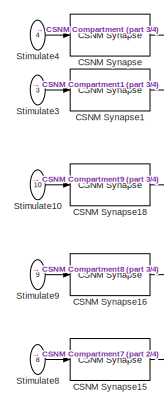
[diagram: CSNM1x9 - part 1/4, top left region]
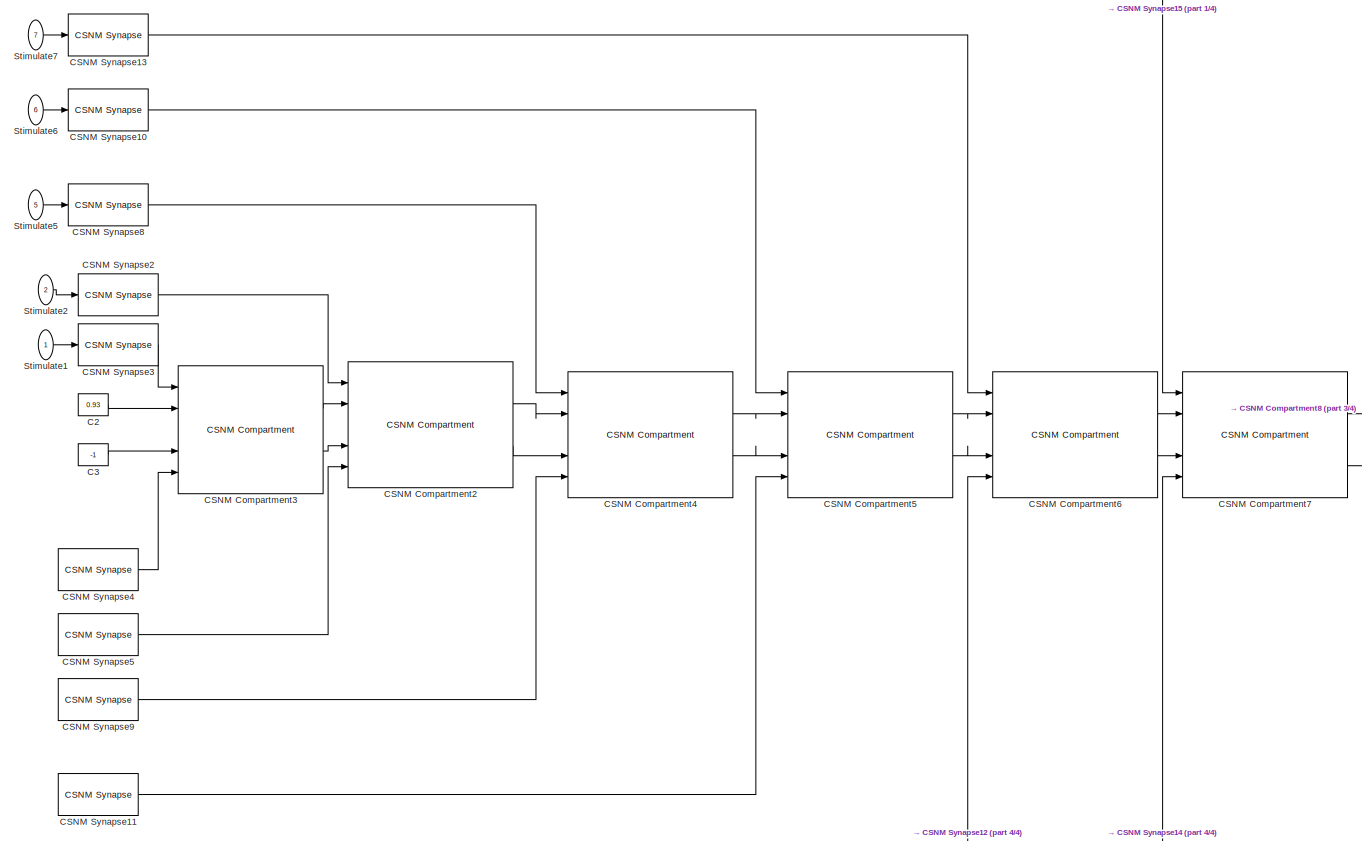
[diagram: CSNM1x9 - part 2/4, middle left region]
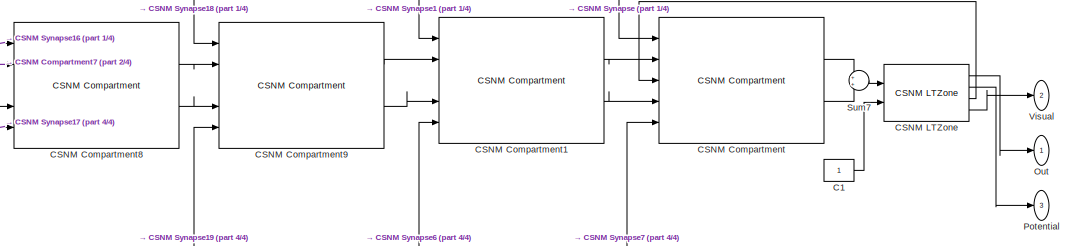
[diagram: CSNM1x9 - part 3/4, middle right region]
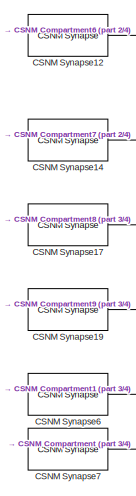
[diagram: CSNM1x9 - part 4/4, bottom left region]
BLOCK [SubSystem] CSNM1x9
  NameLocation = top
  Ports = [10, 3]
  RequestExecContextInheritance = off
BLOCK [Constant] CSNM1x9/C1
  NameLocation = top
BLOCK [Constant] CSNM1x9/C2
  Value = 0.93
BLOCK [Constant] CSNM1x9/C3
  Value = -1
BLOCK [Reference] CSNM1x9/CSNM Compartment  REF=NeuroModelerLibrary/Neuron Elements/CSNM Compartment
  Ports = [5, 2]
  SourceBlock = NeuroModelerLibrary/Neuron Elements/CSNM Compartment
BLOCK [Reference] CSNM1x9/CSNM Compartment1  REF=NeuroModelerLibrary/Neuron Elements/CSNM Compartment
  Ports = [5, 2]
  SourceBlock = NeuroModelerLibrary/Neuron Elements/CSNM Compartment
BLOCK [Reference] CSNM1x9/CSNM Compartment2  REF=NeuroModelerLibrary/Neuron Elements/CSNM Compartment
  Ports = [5, 2]
  SourceBlock = NeuroModelerLibrary/Neuron Elements/CSNM Compartment
BLOCK [Reference] CSNM1x9/CSNM Compartment3  REF=NeuroModelerLibrary/Neuron Elements/CSNM Compartment
  Ports = [5, 2]
  SourceBlock = NeuroModelerLibrary/Neuron Elements/CSNM Compartment
BLOCK [Reference] CSNM1x9/CSNM Compartment4  REF=NeuroModelerLibrary/Neuron Elements/CSNM Compartment
  Ports = [5, 2]
  SourceBlock = NeuroModelerLibrary/Neuron Elements/CSNM Compartment
BLOCK [Reference] CSNM1x9/CSNM Compartment5  REF=NeuroModelerLibrary/Neuron Elements/CSNM Compartment
  Ports = [5, 2]
  SourceBlock = NeuroModelerLibrary/Neuron Elements/CSNM Compartment
BLOCK [Reference] CSNM1x9/CSNM Compartment6  REF=NeuroModelerLibrary/Neuron Elements/CSNM Compartment
  Ports = [5, 2]
  SourceBlock = NeuroModelerLibrary/Neuron Elements/CSNM Compartment
BLOCK [Reference] CSNM1x9/CSNM Compartment7  REF=NeuroModelerLibrary/Neuron Elements/CSNM Compartment
  Ports = [5, 2]
  SourceBlock = NeuroModelerLibrary/Neuron Elements/CSNM Compartment
BLOCK [Reference] CSNM1x9/CSNM Compartment8  REF=NeuroModelerLibrary/Neuron Elements/CSNM Compartment
  Ports = [5, 2]
  SourceBlock = NeuroModelerLibrary/Neuron Elements/CSNM Compartment
BLOCK [Reference] CSNM1x9/CSNM Compartment9  REF=NeuroModelerLibrary/Neuron Elements/CSNM Compartment
  Ports = [5, 2]
  SourceBlock = NeuroModelerLibrary/Neuron Elements/CSNM Compartment
BLOCK [Reference] CSNM1x9/CSNM LTZone  REF=NeuroModelerLibrary/Neuron Elements/CSNM LTZone
  Ports = [2, 4]
  SourceBlock = NeuroModelerLibrary/Neuron Elements/CSNM LTZone
  SourceType = Ion pump
BLOCK [Reference] CSNM1x9/CSNM Synapse  REF=NeuroModelerLibrary/Neuron Elements/CSNM Synapse
  Ports = [1, 1]
  SourceBlock = NeuroModelerLibrary/Neuron Elements/CSNM Synapse
BLOCK [Reference] CSNM1x9/CSNM Synapse1  REF=NeuroModelerLibrary/Neuron Elements/CSNM Synapse
  Ports = [1, 1]
  SourceBlock = NeuroModelerLibrary/Neuron Elements/CSNM Synapse
BLOCK [Reference] CSNM1x9/CSNM Synapse10  REF=NeuroModelerLibrary/Neuron Elements/CSNM Synapse
  Ports = [1, 1]
  SourceBlock = NeuroModelerLibrary/Neuron Elements/CSNM Synapse
BLOCK [Reference] CSNM1x9/CSNM Synapse11  REF=NeuroModelerLibrary/Neuron Elements/CSNM Synapse
  Ports = [1, 1]
  SourceBlock = NeuroModelerLibrary/Neuron Elements/CSNM Synapse
BLOCK [Reference] CSNM1x9/CSNM Synapse12  REF=NeuroModelerLibrary/Neuron Elements/CSNM Synapse
  Ports = [1, 1]
  SourceBlock = NeuroModelerLibrary/Neuron Elements/CSNM Synapse
BLOCK [Reference] CSNM1x9/CSNM Synapse13  REF=NeuroModelerLibrary/Neuron Elements/CSNM Synapse
  Ports = [1, 1]
  SourceBlock = NeuroModelerLibrary/Neuron Elements/CSNM Synapse
BLOCK [Reference] CSNM1x9/CSNM Synapse14  REF=NeuroModelerLibrary/Neuron Elements/CSNM Synapse
  Ports = [1, 1]
  SourceBlock = NeuroModelerLibrary/Neuron Elements/CSNM Synapse
BLOCK [Reference] CSNM1x9/CSNM Synapse15  REF=NeuroModelerLibrary/Neuron Elements/CSNM Synapse
  Ports = [1, 1]
  SourceBlock = NeuroModelerLibrary/Neuron Elements/CSNM Synapse
BLOCK [Reference] CSNM1x9/CSNM Synapse16  REF=NeuroModelerLibrary/Neuron Elements/CSNM Synapse
  Ports = [1, 1]
  SourceBlock = NeuroModelerLibrary/Neuron Elements/CSNM Synapse
BLOCK [Reference] CSNM1x9/CSNM Synapse17  REF=NeuroModelerLibrary/Neuron Elements/CSNM Synapse
  Ports = [1, 1]
  SourceBlock = NeuroModelerLibrary/Neuron Elements/CSNM Synapse
BLOCK [Reference] CSNM1x9/CSNM Synapse18  REF=NeuroModelerLibrary/Neuron Elements/CSNM Synapse
  Ports = [1, 1]
  SourceBlock = NeuroModelerLibrary/Neuron Elements/CSNM Synapse
BLOCK [Reference] CSNM1x9/CSNM Synapse19  REF=NeuroModelerLibrary/Neuron Elements/CSNM Synapse
  Ports = [1, 1]
  SourceBlock = NeuroModelerLibrary/Neuron Elements/CSNM Synapse
BLOCK [Reference] CSNM1x9/CSNM Synapse2  REF=NeuroModelerLibrary/Neuron Elements/CSNM Synapse
  Ports = [1, 1]
  SourceBlock = NeuroModelerLibrary/Neuron Elements/CSNM Synapse
BLOCK [Reference] CSNM1x9/CSNM Synapse3  REF=NeuroModelerLibrary/Neuron Elements/CSNM Synapse
  Ports = [1, 1]
  SourceBlock = NeuroModelerLibrary/Neuron Elements/CSNM Synapse
BLOCK [Reference] CSNM1x9/CSNM Synapse4  REF=NeuroModelerLibrary/Neuron Elements/CSNM Synapse
  Ports = [1, 1]
  SourceBlock = NeuroModelerLibrary/Neuron Elements/CSNM Synapse
BLOCK [Reference] CSNM1x9/CSNM Synapse5  REF=NeuroModelerLibrary/Neuron Elements/CSNM Synapse
  Ports = [1, 1]
  SourceBlock = NeuroModelerLibrary/Neuron Elements/CSNM Synapse
BLOCK [Reference] CSNM1x9/CSNM Synapse6  REF=NeuroModelerLibrary/Neuron Elements/CSNM Synapse
  Ports = [1, 1]
  SourceBlock = NeuroModelerLibrary/Neuron Elements/CSNM Synapse
BLOCK [Reference] CSNM1x9/CSNM Synapse7  REF=NeuroModelerLibrary/Neuron Elements/CSNM Synapse
  Ports = [1, 1]
  SourceBlock = NeuroModelerLibrary/Neuron Elements/CSNM Synapse
BLOCK [Reference] CSNM1x9/CSNM Synapse8  REF=NeuroModelerLibrary/Neuron Elements/CSNM Synapse
  Ports = [1, 1]
  SourceBlock = NeuroModelerLibrary/Neuron Elements/CSNM Synapse
BLOCK [Reference] CSNM1x9/CSNM Synapse9  REF=NeuroModelerLibrary/Neuron Elements/CSNM Synapse
  Ports = [1, 1]
  SourceBlock = NeuroModelerLibrary/Neuron Elements/CSNM Synapse
BLOCK [Outport] CSNM1x9/Out
  VectorParamsAs1DForOutWhenUnconnected = off
BLOCK [Outport] CSNM1x9/Potential
  Port = 3
  VectorParamsAs1DForOutWhenUnconnected = off
BLOCK [Inport] CSNM1x9/Stimulate1
  NameLocation = top
BLOCK [Inport] CSNM1x9/Stimulate10
  NameLocation = top
  Port = 10
BLOCK [Inport] CSNM1x9/Stimulate2
  NameLocation = top
  Port = 2
BLOCK [Inport] CSNM1x9/Stimulate3
  NameLocation = top
  Port = 3
BLOCK [Inport] CSNM1x9/Stimulate4
  NameLocation = top
  Port = 4
BLOCK [Inport] CSNM1x9/Stimulate5
  NameLocation = top
  Port = 5
BLOCK [Inport] CSNM1x9/Stimulate6
  NameLocation = top
  Port = 6
BLOCK [Inport] CSNM1x9/Stimulate7
  NameLocation = top
  Port = 7
BLOCK [Inport] CSNM1x9/Stimulate8
  NameLocation = top
  Port = 8
BLOCK [Inport] CSNM1x9/Stimulate9
  NameLocation = top
  Port = 9
BLOCK [Sum] CSNM1x9/Sum7
  InputSameDT = on
  OutDataTypeStr = Inherit: Same as first input
  Ports = [2, 1]
  SaturateOnIntegerOverflow = on
BLOCK [Outport] CSNM1x9/Visual
  Port = 2
  VectorParamsAs1DForOutWhenUnconnected = off
BLOCK [SubSystem] CSNM2x0
  NameLocation = top
  Ports = [1, 3]
  RequestExecContextInheritance = off
BLOCK [Constant] CSNM2x0/C1
  NameLocation = top
BLOCK [Constant] CSNM2x0/C2
  Value = 0.93
BLOCK [Constant] CSNM2x0/C3
  Value = -1
BLOCK [Reference] CSNM2x0/CSNM Compartment  REF=NeuroModelerLibrary/Neuron Elements/CSNM Compartment
  Ports = [5, 2]
  SourceBlock = NeuroModelerLibrary/Neuron Elements/CSNM Compartment
BLOCK [Reference] CSNM2x0/CSNM Compartment5  REF=NeuroModelerLibrary/Neuron Elements/CSNM Compartment
  Ports = [5, 2]
  SourceBlock = NeuroModelerLibrary/Neuron Elements/CSNM Compartment
BLOCK [Reference] CSNM2x0/CSNM LTZone  REF=NeuroModelerLibrary/Neuron Elements/CSNM LTZone
  Ports = [2, 4]
  SourceBlock = NeuroModelerLibrary/Neuron Elements/CSNM LTZone
  SourceType = Ion pump
BLOCK [Reference] CSNM2x0/CSNM Synapse  REF=NeuroModelerLibrary/Neuron Elements/CSNM Synapse
  Ports = [1, 1]
  SourceBlock = NeuroModelerLibrary/Neuron Elements/CSNM Synapse
BLOCK [Reference] CSNM2x0/CSNM Synapse7  REF=NeuroModelerLibrary/Neuron Elements/CSNM Synapse
  Ports = [1, 1]
  SourceBlock = NeuroModelerLibrary/Neuron Elements/CSNM Synapse
BLOCK [Outport] CSNM2x0/Out
  VectorParamsAs1DForOutWhenUnconnected = off
BLOCK [Outport] CSNM2x0/Potential
  Port = 3
  VectorParamsAs1DForOutWhenUnconnected = off
BLOCK [Inport] CSNM2x0/Stimulate4
  NameLocation = top
BLOCK [Sum] CSNM2x0/Sum1
  InputSameDT = on
  Inputs = ++++
  OutDataTypeStr = Inherit: Same as first input
  Ports = [4, 1]
  SaturateOnIntegerOverflow = on
BLOCK [Outport] CSNM2x0/Visual
  Port = 2
  VectorParamsAs1DForOutWhenUnconnected = off
BLOCK [SubSystem] CSNM2x1
  NameLocation = top
  Ports = [2, 3]
  RequestExecContextInheritance = off
BLOCK [Constant] CSNM2x1/C1
  NameLocation = top
BLOCK [Constant] CSNM2x1/C2
  Value = 0.93
BLOCK [Constant] CSNM2x1/C3
  Value = -1
BLOCK [Reference] CSNM2x1/CSNM Compartment  REF=NeuroModelerLibrary/Neuron Elements/CSNM Compartment
  Ports = [5, 2]
  SourceBlock = NeuroModelerLibrary/Neuron Elements/CSNM Compartment
BLOCK [Reference] CSNM2x1/CSNM Compartment1  REF=NeuroModelerLibrary/Neuron Elements/CSNM Compartment
  Ports = [5, 2]
  SourceBlock = NeuroModelerLibrary/Neuron Elements/CSNM Compartment
BLOCK [Reference] CSNM2x1/CSNM Compartment5  REF=NeuroModelerLibrary/Neuron Elements/CSNM Compartment
  Ports = [5, 2]
  SourceBlock = NeuroModelerLibrary/Neuron Elements/CSNM Compartment
BLOCK [Reference] CSNM2x1/CSNM LTZone  REF=NeuroModelerLibrary/Neuron Elements/CSNM LTZone
  Ports = [2, 4]
  SourceBlock = NeuroModelerLibrary/Neuron Elements/CSNM LTZone
  SourceType = Ion pump
BLOCK [Reference] CSNM2x1/CSNM Synapse  REF=NeuroModelerLibrary/Neuron Elements/CSNM Synapse
  Ports = [1, 1]
  SourceBlock = NeuroModelerLibrary/Neuron Elements/CSNM Synapse
BLOCK [Reference] CSNM2x1/CSNM Synapse1  REF=NeuroModelerLibrary/Neuron Elements/CSNM Synapse
  Ports = [1, 1]
  SourceBlock = NeuroModelerLibrary/Neuron Elements/CSNM Synapse
BLOCK [Reference] CSNM2x1/CSNM Synapse6  REF=NeuroModelerLibrary/Neuron Elements/CSNM Synapse
  Ports = [1, 1]
  SourceBlock = NeuroModelerLibrary/Neuron Elements/CSNM Synapse
BLOCK [Reference] CSNM2x1/CSNM Synapse7  REF=NeuroModelerLibrary/Neuron Elements/CSNM Synapse
  Ports = [1, 1]
  SourceBlock = NeuroModelerLibrary/Neuron Elements/CSNM Synapse
BLOCK [Outport] CSNM2x1/Out
  VectorParamsAs1DForOutWhenUnconnected = off
BLOCK [Outport] CSNM2x1/Potential
  Port = 3
  VectorParamsAs1DForOutWhenUnconnected = off
BLOCK [Inport] CSNM2x1/Stimulate3
  NameLocation = top
BLOCK [Inport] CSNM2x1/Stimulate4
  NameLocation = top
  Port = 2
BLOCK [Sum] CSNM2x1/Sum1
  InputSameDT = on
  Inputs = ++++
  OutDataTypeStr = Inherit: Same as first input
  Ports = [4, 1]
  SaturateOnIntegerOverflow = on
BLOCK [Outport] CSNM2x1/Visual
  Port = 2
  VectorParamsAs1DForOutWhenUnconnected = off
BLOCK [SubSystem] CSNM2x2
  NameLocation = top
  Ports = [3, 3]
  RequestExecContextInheritance = off
BLOCK [Constant] CSNM2x2/C1
  NameLocation = top
BLOCK [Constant] CSNM2x2/C2
  Value = 0.93
BLOCK [Constant] CSNM2x2/C3
  Value = -1
BLOCK [Reference] CSNM2x2/CSNM Compartment  REF=NeuroModelerLibrary/Neuron Elements/CSNM Compartment
  Ports = [5, 2]
  SourceBlock = NeuroModelerLibrary/Neuron Elements/CSNM Compartment
BLOCK [Reference] CSNM2x2/CSNM Compartment1  REF=NeuroModelerLibrary/Neuron Elements/CSNM Compartment
  Ports = [5, 2]
  SourceBlock = NeuroModelerLibrary/Neuron Elements/CSNM Compartment
BLOCK [Reference] CSNM2x2/CSNM Compartment4  REF=NeuroModelerLibrary/Neuron Elements/CSNM Compartment
  Ports = [5, 2]
  SourceBlock = NeuroModelerLibrary/Neuron Elements/CSNM Compartment
BLOCK [Reference] CSNM2x2/CSNM Compartment5  REF=NeuroModelerLibrary/Neuron Elements/CSNM Compartment
  Ports = [5, 2]
  SourceBlock = NeuroModelerLibrary/Neuron Elements/CSNM Compartment
BLOCK [Reference] CSNM2x2/CSNM LTZone  REF=NeuroModelerLibrary/Neuron Elements/CSNM LTZone
  Ports = [2, 4]
  SourceBlock = NeuroModelerLibrary/Neuron Elements/CSNM LTZone
  SourceType = Ion pump
BLOCK [Reference] CSNM2x2/CSNM Synapse  REF=NeuroModelerLibrary/Neuron Elements/CSNM Synapse
  Ports = [1, 1]
  SourceBlock = NeuroModelerLibrary/Neuron Elements/CSNM Synapse
BLOCK [Reference] CSNM2x2/CSNM Synapse1  REF=NeuroModelerLibrary/Neuron Elements/CSNM Synapse
  Ports = [1, 1]
  SourceBlock = NeuroModelerLibrary/Neuron Elements/CSNM Synapse
BLOCK [Reference] CSNM2x2/CSNM Synapse6  REF=NeuroModelerLibrary/Neuron Elements/CSNM Synapse
  Ports = [1, 1]
  SourceBlock = NeuroModelerLibrary/Neuron Elements/CSNM Synapse
BLOCK [Reference] CSNM2x2/CSNM Synapse7  REF=NeuroModelerLibrary/Neuron Elements/CSNM Synapse
  Ports = [1, 1]
  SourceBlock = NeuroModelerLibrary/Neuron Elements/CSNM Synapse
BLOCK [Reference] CSNM2x2/CSNM Synapse8  REF=NeuroModelerLibrary/Neuron Elements/CSNM Synapse
  Ports = [1, 1]
  SourceBlock = NeuroModelerLibrary/Neuron Elements/CSNM Synapse
BLOCK [Reference] CSNM2x2/CSNM Synapse9  REF=NeuroModelerLibrary/Neuron Elements/CSNM Synapse
  Ports = [1, 1]
  SourceBlock = NeuroModelerLibrary/Neuron Elements/CSNM Synapse
BLOCK [Outport] CSNM2x2/Out
  VectorParamsAs1DForOutWhenUnconnected = off
BLOCK [Outport] CSNM2x2/Potential
  Port = 3
  VectorParamsAs1DForOutWhenUnconnected = off
BLOCK [Inport] CSNM2x2/Stimulate3
  NameLocation = top
BLOCK [Inport] CSNM2x2/Stimulate4
  NameLocation = top
  Port = 2
BLOCK [Inport] CSNM2x2/Stimulate5
  NameLocation = top
  Port = 3
BLOCK [Sum] CSNM2x2/Sum1
  InputSameDT = on
  Inputs = ++++
  OutDataTypeStr = Inherit: Same as first input
  Ports = [4, 1]
  SaturateOnIntegerOverflow = on
BLOCK [Outport] CSNM2x2/Visual
  Port = 2
  VectorParamsAs1DForOutWhenUnconnected = off
BLOCK [SubSystem] CSNM2x3
  AncestorBlock = NeuroModelerLibrary/Sized Cells/CSNM2x3
  NameLocation = top
  Ports = [8, 3]
  RequestExecContextInheritance = off
BLOCK [Inport] CSNM2x3/Arresting1
  NameLocation = top
  Port = 5
BLOCK [Inport] CSNM2x3/Arresting2
  NameLocation = top
  Port = 6
BLOCK [Inport] CSNM2x3/Arresting3
  NameLocation = top
  Port = 7
BLOCK [Inport] CSNM2x3/Arresting4
  NameLocation = top
  Port = 8
BLOCK [Constant] CSNM2x3/C1
BLOCK [Constant] CSNM2x3/C2
  Value = 0.93
BLOCK [Constant] CSNM2x3/C3
  Value = -1
BLOCK [Reference] CSNM2x3/CSNM Compartment  REF=NeuroModelerLibrary/Neuron Elements/CSNM Compartment
  Ports = [5, 2]
  SourceBlock = NeuroModelerLibrary/Neuron Elements/CSNM Compartment
BLOCK [Reference] CSNM2x3/CSNM Compartment1  REF=NeuroModelerLibrary/Neuron Elements/CSNM Compartment
  Ports = [5, 2]
  SourceBlock = NeuroModelerLibrary/Neuron Elements/CSNM Compartment
BLOCK [Reference] CSNM2x3/CSNM Compartment2  REF=NeuroModelerLibrary/Neuron Elements/CSNM Compartment
  Ports = [5, 2]
  SourceBlock = NeuroModelerLibrary/Neuron Elements/CSNM Compartment
BLOCK [Reference] CSNM2x3/CSNM Compartment3  REF=NeuroModelerLibrary/Neuron Elements/CSNM Compartment
  Ports = [5, 2]
  SourceBlock = NeuroModelerLibrary/Neuron Elements/CSNM Compartment
BLOCK [Reference] CSNM2x3/CSNM Compartment4  REF=NeuroModelerLibrary/Neuron Elements/CSNM Compartment
  Ports = [5, 2]
  SourceBlock = NeuroModelerLibrary/Neuron Elements/CSNM Compartment
BLOCK [Reference] CSNM2x3/CSNM LTZone  REF=NeuroModelerLibrary/Neuron Elements/CSNM LTZone
  Ports = [2, 4]
  SourceBlock = NeuroModelerLibrary/Neuron Elements/CSNM LTZone
  SourceType = Ion pump
BLOCK [Reference] CSNM2x3/CSNM Synapse  REF=NeuroModelerLibrary/Neuron Elements/CSNM Synapse
  Ports = [1, 1]
  SourceBlock = NeuroModelerLibrary/Neuron Elements/CSNM Synapse
BLOCK [Reference] CSNM2x3/CSNM Synapse1  REF=NeuroModelerLibrary/Neuron Elements/CSNM Synapse
  Ports = [1, 1]
  SourceBlock = NeuroModelerLibrary/Neuron Elements/CSNM Synapse
BLOCK [Reference] CSNM2x3/CSNM Synapse2  REF=NeuroModelerLibrary/Neuron Elements/CSNM Synapse
  Ports = [1, 1]
  SourceBlock = NeuroModelerLibrary/Neuron Elements/CSNM Synapse
BLOCK [Reference] CSNM2x3/CSNM Synapse3  REF=NeuroModelerLibrary/Neuron Elements/CSNM Synapse
  Ports = [1, 1]
  SourceBlock = NeuroModelerLibrary/Neuron Elements/CSNM Synapse
BLOCK [Reference] CSNM2x3/CSNM Synapse4  REF=NeuroModelerLibrary/Neuron Elements/CSNM Synapse
  Ports = [1, 1]
  SourceBlock = NeuroModelerLibrary/Neuron Elements/CSNM Synapse
BLOCK [Reference] CSNM2x3/CSNM Synapse5  REF=NeuroModelerLibrary/Neuron Elements/CSNM Synapse
  Ports = [1, 1]
  SourceBlock = NeuroModelerLibrary/Neuron Elements/CSNM Synapse
BLOCK [Reference] CSNM2x3/CSNM Synapse6  REF=NeuroModelerLibrary/Neuron Elements/CSNM Synapse
  Ports = [1, 1]
  SourceBlock = NeuroModelerLibrary/Neuron Elements/CSNM Synapse
BLOCK [Reference] CSNM2x3/CSNM Synapse7  REF=NeuroModelerLibrary/Neuron Elements/CSNM Synapse
  Ports = [1, 1]
  SourceBlock = NeuroModelerLibrary/Neuron Elements/CSNM Synapse
BLOCK [Outport] CSNM2x3/Out
  VectorParamsAs1DForOutWhenUnconnected = off
BLOCK [Outport] CSNM2x3/Potential
  Port = 3
  VectorParamsAs1DForOutWhenUnconnected = off
BLOCK [Inport] CSNM2x3/Stimulate1
  NameLocation = top
BLOCK [Inport] CSNM2x3/Stimulate2
  NameLocation = top
  Port = 2
BLOCK [Inport] CSNM2x3/Stimulate3
  NameLocation = top
  Port = 3
BLOCK [Inport] CSNM2x3/Stimulate4
  NameLocation = top
  Port = 4
BLOCK [Sum] CSNM2x3/Sum7
  InputSameDT = on
  Inputs = ++++
  OutDataTypeStr = Inherit: Same as first input
  Ports = [4, 1]
  SaturateOnIntegerOverflow = on
BLOCK [Outport] CSNM2x3/Visual
  Port = 2
  VectorParamsAs1DForOutWhenUnconnected = off
BLOCK [SubSystem] CSNM2x4
  NameLocation = top
  Ports = [5, 3]
  RequestExecContextInheritance = off
BLOCK [Constant] CSNM2x4/C1
  NameLocation = top
BLOCK [Constant] CSNM2x4/C2
  Value = 0.93
BLOCK [Constant] CSNM2x4/C3
  Value = -1
BLOCK [Reference] CSNM2x4/CSNM Compartment  REF=NeuroModelerLibrary/Neuron Elements/CSNM Compartment
  Ports = [5, 2]
  SourceBlock = NeuroModelerLibrary/Neuron Elements/CSNM Compartment
BLOCK [Reference] CSNM2x4/CSNM Compartment1  REF=NeuroModelerLibrary/Neuron Elements/CSNM Compartment
  Ports = [5, 2]
  SourceBlock = NeuroModelerLibrary/Neuron Elements/CSNM Compartment
BLOCK [Reference] CSNM2x4/CSNM Compartment2  REF=NeuroModelerLibrary/Neuron Elements/CSNM Compartment
  Ports = [5, 2]
  SourceBlock = NeuroModelerLibrary/Neuron Elements/CSNM Compartment
BLOCK [Reference] CSNM2x4/CSNM Compartment3  REF=NeuroModelerLibrary/Neuron Elements/CSNM Compartment
  Ports = [5, 2]
  SourceBlock = NeuroModelerLibrary/Neuron Elements/CSNM Compartment
BLOCK [Reference] CSNM2x4/CSNM Compartment4  REF=NeuroModelerLibrary/Neuron Elements/CSNM Compartment
  Ports = [5, 2]
  SourceBlock = NeuroModelerLibrary/Neuron Elements/CSNM Compartment
BLOCK [Reference] CSNM2x4/CSNM Compartment5  REF=NeuroModelerLibrary/Neuron Elements/CSNM Compartment
  Ports = [5, 2]
  SourceBlock = NeuroModelerLibrary/Neuron Elements/CSNM Compartment
BLOCK [Reference] CSNM2x4/CSNM LTZone  REF=NeuroModelerLibrary/Neuron Elements/CSNM LTZone
  Ports = [2, 4]
  SourceBlock = NeuroModelerLibrary/Neuron Elements/CSNM LTZone
  SourceType = Ion pump
BLOCK [Reference] CSNM2x4/CSNM Synapse  REF=NeuroModelerLibrary/Neuron Elements/CSNM Synapse
  Ports = [1, 1]
  SourceBlock = NeuroModelerLibrary/Neuron Elements/CSNM Synapse
BLOCK [Reference] CSNM2x4/CSNM Synapse1  REF=NeuroModelerLibrary/Neuron Elements/CSNM Synapse
  Ports = [1, 1]
  SourceBlock = NeuroModelerLibrary/Neuron Elements/CSNM Synapse
BLOCK [Reference] CSNM2x4/CSNM Synapse2  REF=NeuroModelerLibrary/Neuron Elements/CSNM Synapse
  Ports = [1, 1]
  SourceBlock = NeuroModelerLibrary/Neuron Elements/CSNM Synapse
BLOCK [Reference] CSNM2x4/CSNM Synapse3  REF=NeuroModelerLibrary/Neuron Elements/CSNM Synapse
  Ports = [1, 1]
  SourceBlock = NeuroModelerLibrary/Neuron Elements/CSNM Synapse
BLOCK [Reference] CSNM2x4/CSNM Synapse4  REF=NeuroModelerLibrary/Neuron Elements/CSNM Synapse
  Ports = [1, 1]
  SourceBlock = NeuroModelerLibrary/Neuron Elements/CSNM Synapse
BLOCK [Reference] CSNM2x4/CSNM Synapse5  REF=NeuroModelerLibrary/Neuron Elements/CSNM Synapse
  Ports = [1, 1]
  SourceBlock = NeuroModelerLibrary/Neuron Elements/CSNM Synapse
BLOCK [Reference] CSNM2x4/CSNM Synapse6  REF=NeuroModelerLibrary/Neuron Elements/CSNM Synapse
  Ports = [1, 1]
  SourceBlock = NeuroModelerLibrary/Neuron Elements/CSNM Synapse
BLOCK [Reference] CSNM2x4/CSNM Synapse7  REF=NeuroModelerLibrary/Neuron Elements/CSNM Synapse
  Ports = [1, 1]
  SourceBlock = NeuroModelerLibrary/Neuron Elements/CSNM Synapse
BLOCK [Reference] CSNM2x4/CSNM Synapse8  REF=NeuroModelerLibrary/Neuron Elements/CSNM Synapse
  Ports = [1, 1]
  SourceBlock = NeuroModelerLibrary/Neuron Elements/CSNM Synapse
BLOCK [Reference] CSNM2x4/CSNM Synapse9  REF=NeuroModelerLibrary/Neuron Elements/CSNM Synapse
  Ports = [1, 1]
  SourceBlock = NeuroModelerLibrary/Neuron Elements/CSNM Synapse
BLOCK [Outport] CSNM2x4/Out
  VectorParamsAs1DForOutWhenUnconnected = off
BLOCK [Outport] CSNM2x4/Potential
  Port = 3
  VectorParamsAs1DForOutWhenUnconnected = off
BLOCK [Inport] CSNM2x4/Stimulate1
  NameLocation = top
BLOCK [Inport] CSNM2x4/Stimulate2
  NameLocation = top
  Port = 2
BLOCK [Inport] CSNM2x4/Stimulate3
  NameLocation = top
  Port = 3
BLOCK [Inport] CSNM2x4/Stimulate4
  NameLocation = top
  Port = 4
BLOCK [Inport] CSNM2x4/Stimulate5
  NameLocation = top
  Port = 5
BLOCK [Sum] CSNM2x4/Sum1
  InputSameDT = on
  Inputs = ++++
  OutDataTypeStr = Inherit: Same as first input
  Ports = [4, 1]
  SaturateOnIntegerOverflow = on
BLOCK [Outport] CSNM2x4/Visual
  Port = 2
  VectorParamsAs1DForOutWhenUnconnected = off
BLOCK [SubSystem] CSNM2x5
  NameLocation = top
  Ports = [6, 3]
  RequestExecContextInheritance = off
BLOCK [Constant] CSNM2x5/C1
  NameLocation = top
BLOCK [Constant] CSNM2x5/C2
  Value = 0.93
BLOCK [Constant] CSNM2x5/C3
  Value = -1
BLOCK [Reference] CSNM2x5/CSNM Compartment  REF=NeuroModelerLibrary/Neuron Elements/CSNM Compartment
  Ports = [5, 2]
  SourceBlock = NeuroModelerLibrary/Neuron Elements/CSNM Compartment
BLOCK [Reference] CSNM2x5/CSNM Compartment1  REF=NeuroModelerLibrary/Neuron Elements/CSNM Compartment
  Ports = [5, 2]
  SourceBlock = NeuroModelerLibrary/Neuron Elements/CSNM Compartment
BLOCK [Reference] CSNM2x5/CSNM Compartment2  REF=NeuroModelerLibrary/Neuron Elements/CSNM Compartment
  Ports = [5, 2]
  SourceBlock = NeuroModelerLibrary/Neuron Elements/CSNM Compartment
BLOCK [Reference] CSNM2x5/CSNM Compartment3  REF=NeuroModelerLibrary/Neuron Elements/CSNM Compartment
  Ports = [5, 2]
  SourceBlock = NeuroModelerLibrary/Neuron Elements/CSNM Compartment
BLOCK [Reference] CSNM2x5/CSNM Compartment4  REF=NeuroModelerLibrary/Neuron Elements/CSNM Compartment
  Ports = [5, 2]
  SourceBlock = NeuroModelerLibrary/Neuron Elements/CSNM Compartment
BLOCK [Reference] CSNM2x5/CSNM Compartment5  REF=NeuroModelerLibrary/Neuron Elements/CSNM Compartment
  Ports = [5, 2]
  SourceBlock = NeuroModelerLibrary/Neuron Elements/CSNM Compartment
BLOCK [Reference] CSNM2x5/CSNM Compartment6  REF=NeuroModelerLibrary/Neuron Elements/CSNM Compartment
  Ports = [5, 2]
  SourceBlock = NeuroModelerLibrary/Neuron Elements/CSNM Compartment
BLOCK [Reference] CSNM2x5/CSNM LTZone  REF=NeuroModelerLibrary/Neuron Elements/CSNM LTZone
  Ports = [2, 4]
  SourceBlock = NeuroModelerLibrary/Neuron Elements/CSNM LTZone
  SourceType = Ion pump
BLOCK [Reference] CSNM2x5/CSNM Synapse  REF=NeuroModelerLibrary/Neuron Elements/CSNM Synapse
  Ports = [1, 1]
  SourceBlock = NeuroModelerLibrary/Neuron Elements/CSNM Synapse
BLOCK [Reference] CSNM2x5/CSNM Synapse1  REF=NeuroModelerLibrary/Neuron Elements/CSNM Synapse
  Ports = [1, 1]
  SourceBlock = NeuroModelerLibrary/Neuron Elements/CSNM Synapse
BLOCK [Reference] CSNM2x5/CSNM Synapse10  REF=NeuroModelerLibrary/Neuron Elements/CSNM Synapse
  Ports = [1, 1]
  SourceBlock = NeuroModelerLibrary/Neuron Elements/CSNM Synapse
BLOCK [Reference] CSNM2x5/CSNM Synapse11  REF=NeuroModelerLibrary/Neuron Elements/CSNM Synapse
  Ports = [1, 1]
  SourceBlock = NeuroModelerLibrary/Neuron Elements/CSNM Synapse
BLOCK [Reference] CSNM2x5/CSNM Synapse2  REF=NeuroModelerLibrary/Neuron Elements/CSNM Synapse
  Ports = [1, 1]
  SourceBlock = NeuroModelerLibrary/Neuron Elements/CSNM Synapse
BLOCK [Reference] CSNM2x5/CSNM Synapse3  REF=NeuroModelerLibrary/Neuron Elements/CSNM Synapse
  Ports = [1, 1]
  SourceBlock = NeuroModelerLibrary/Neuron Elements/CSNM Synapse
BLOCK [Reference] CSNM2x5/CSNM Synapse4  REF=NeuroModelerLibrary/Neuron Elements/CSNM Synapse
  Ports = [1, 1]
  SourceBlock = NeuroModelerLibrary/Neuron Elements/CSNM Synapse
BLOCK [Reference] CSNM2x5/CSNM Synapse5  REF=NeuroModelerLibrary/Neuron Elements/CSNM Synapse
  Ports = [1, 1]
  SourceBlock = NeuroModelerLibrary/Neuron Elements/CSNM Synapse
BLOCK [Reference] CSNM2x5/CSNM Synapse6  REF=NeuroModelerLibrary/Neuron Elements/CSNM Synapse
  Ports = [1, 1]
  SourceBlock = NeuroModelerLibrary/Neuron Elements/CSNM Synapse
BLOCK [Reference] CSNM2x5/CSNM Synapse7  REF=NeuroModelerLibrary/Neuron Elements/CSNM Synapse
  Ports = [1, 1]
  SourceBlock = NeuroModelerLibrary/Neuron Elements/CSNM Synapse
BLOCK [Reference] CSNM2x5/CSNM Synapse8  REF=NeuroModelerLibrary/Neuron Elements/CSNM Synapse
  Ports = [1, 1]
  SourceBlock = NeuroModelerLibrary/Neuron Elements/CSNM Synapse
BLOCK [Reference] CSNM2x5/CSNM Synapse9  REF=NeuroModelerLibrary/Neuron Elements/CSNM Synapse
  Ports = [1, 1]
  SourceBlock = NeuroModelerLibrary/Neuron Elements/CSNM Synapse
BLOCK [Outport] CSNM2x5/Out
  VectorParamsAs1DForOutWhenUnconnected = off
BLOCK [Outport] CSNM2x5/Potential
  Port = 3
  VectorParamsAs1DForOutWhenUnconnected = off
BLOCK [Inport] CSNM2x5/Stimulate1
  NameLocation = top
BLOCK [Inport] CSNM2x5/Stimulate2
  NameLocation = top
  Port = 2
BLOCK [Inport] CSNM2x5/Stimulate3
  NameLocation = top
  Port = 3
BLOCK [Inport] CSNM2x5/Stimulate4
  NameLocation = top
  Port = 4
BLOCK [Inport] CSNM2x5/Stimulate5
  NameLocation = top
  Port = 5
BLOCK [Inport] CSNM2x5/Stimulate6
  NameLocation = top
  Port = 6
BLOCK [Sum] CSNM2x5/Sum1
  InputSameDT = on
  Inputs = ++++
  OutDataTypeStr = Inherit: Same as first input
  Ports = [4, 1]
  SaturateOnIntegerOverflow = on
BLOCK [Outport] CSNM2x5/Visual
  Port = 2
  VectorParamsAs1DForOutWhenUnconnected = off
BLOCK [SubSystem] CSNM2x6
  NameLocation = top
  Ports = [7, 3]
  RequestExecContextInheritance = off
BLOCK [Constant] CSNM2x6/C1
  NameLocation = top
BLOCK [Constant] CSNM2x6/C2
  Value = 0.93
BLOCK [Constant] CSNM2x6/C3
  Value = -1
BLOCK [Reference] CSNM2x6/CSNM Compartment  REF=NeuroModelerLibrary/Neuron Elements/CSNM Compartment
  Ports = [5, 2]
  SourceBlock = NeuroModelerLibrary/Neuron Elements/CSNM Compartment
BLOCK [Reference] CSNM2x6/CSNM Compartment1  REF=NeuroModelerLibrary/Neuron Elements/CSNM Compartment
  Ports = [5, 2]
  SourceBlock = NeuroModelerLibrary/Neuron Elements/CSNM Compartment
BLOCK [Reference] CSNM2x6/CSNM Compartment2  REF=NeuroModelerLibrary/Neuron Elements/CSNM Compartment
  Ports = [5, 2]
  SourceBlock = NeuroModelerLibrary/Neuron Elements/CSNM Compartment
BLOCK [Reference] CSNM2x6/CSNM Compartment3  REF=NeuroModelerLibrary/Neuron Elements/CSNM Compartment
  Ports = [5, 2]
  SourceBlock = NeuroModelerLibrary/Neuron Elements/CSNM Compartment
BLOCK [Reference] CSNM2x6/CSNM Compartment4  REF=NeuroModelerLibrary/Neuron Elements/CSNM Compartment
  Ports = [5, 2]
  SourceBlock = NeuroModelerLibrary/Neuron Elements/CSNM Compartment
BLOCK [Reference] CSNM2x6/CSNM Compartment5  REF=NeuroModelerLibrary/Neuron Elements/CSNM Compartment
  Ports = [5, 2]
  SourceBlock = NeuroModelerLibrary/Neuron Elements/CSNM Compartment
BLOCK [Reference] CSNM2x6/CSNM Compartment6  REF=NeuroModelerLibrary/Neuron Elements/CSNM Compartment
  Ports = [5, 2]
  SourceBlock = NeuroModelerLibrary/Neuron Elements/CSNM Compartment
BLOCK [Reference] CSNM2x6/CSNM Compartment7  REF=NeuroModelerLibrary/Neuron Elements/CSNM Compartment
  Ports = [5, 2]
  SourceBlock = NeuroModelerLibrary/Neuron Elements/CSNM Compartment
BLOCK [Reference] CSNM2x6/CSNM LTZone  REF=NeuroModelerLibrary/Neuron Elements/CSNM LTZone
  Ports = [2, 4]
  SourceBlock = NeuroModelerLibrary/Neuron Elements/CSNM LTZone
  SourceType = Ion pump
BLOCK [Reference] CSNM2x6/CSNM Synapse  REF=NeuroModelerLibrary/Neuron Elements/CSNM Synapse
  Ports = [1, 1]
  SourceBlock = NeuroModelerLibrary/Neuron Elements/CSNM Synapse
BLOCK [Reference] CSNM2x6/CSNM Synapse1  REF=NeuroModelerLibrary/Neuron Elements/CSNM Synapse
  Ports = [1, 1]
  SourceBlock = NeuroModelerLibrary/Neuron Elements/CSNM Synapse
BLOCK [Reference] CSNM2x6/CSNM Synapse10  REF=NeuroModelerLibrary/Neuron Elements/CSNM Synapse
  Ports = [1, 1]
  SourceBlock = NeuroModelerLibrary/Neuron Elements/CSNM Synapse
BLOCK [Reference] CSNM2x6/CSNM Synapse11  REF=NeuroModelerLibrary/Neuron Elements/CSNM Synapse
  Ports = [1, 1]
  SourceBlock = NeuroModelerLibrary/Neuron Elements/CSNM Synapse
BLOCK [Reference] CSNM2x6/CSNM Synapse12  REF=NeuroModelerLibrary/Neuron Elements/CSNM Synapse
  Ports = [1, 1]
  SourceBlock = NeuroModelerLibrary/Neuron Elements/CSNM Synapse
BLOCK [Reference] CSNM2x6/CSNM Synapse13  REF=NeuroModelerLibrary/Neuron Elements/CSNM Synapse
  Ports = [1, 1]
  SourceBlock = NeuroModelerLibrary/Neuron Elements/CSNM Synapse
BLOCK [Reference] CSNM2x6/CSNM Synapse2  REF=NeuroModelerLibrary/Neuron Elements/CSNM Synapse
  Ports = [1, 1]
  SourceBlock = NeuroModelerLibrary/Neuron Elements/CSNM Synapse
BLOCK [Reference] CSNM2x6/CSNM Synapse3  REF=NeuroModelerLibrary/Neuron Elements/CSNM Synapse
  Ports = [1, 1]
  SourceBlock = NeuroModelerLibrary/Neuron Elements/CSNM Synapse
BLOCK [Reference] CSNM2x6/CSNM Synapse4  REF=NeuroModelerLibrary/Neuron Elements/CSNM Synapse
  Ports = [1, 1]
  SourceBlock = NeuroModelerLibrary/Neuron Elements/CSNM Synapse
BLOCK [Reference] CSNM2x6/CSNM Synapse5  REF=NeuroModelerLibrary/Neuron Elements/CSNM Synapse
  Ports = [1, 1]
  SourceBlock = NeuroModelerLibrary/Neuron Elements/CSNM Synapse
BLOCK [Reference] CSNM2x6/CSNM Synapse6  REF=NeuroModelerLibrary/Neuron Elements/CSNM Synapse
  Ports = [1, 1]
  SourceBlock = NeuroModelerLibrary/Neuron Elements/CSNM Synapse
BLOCK [Reference] CSNM2x6/CSNM Synapse7  REF=NeuroModelerLibrary/Neuron Elements/CSNM Synapse
  Ports = [1, 1]
  SourceBlock = NeuroModelerLibrary/Neuron Elements/CSNM Synapse
BLOCK [Reference] CSNM2x6/CSNM Synapse8  REF=NeuroModelerLibrary/Neuron Elements/CSNM Synapse
  Ports = [1, 1]
  SourceBlock = NeuroModelerLibrary/Neuron Elements/CSNM Synapse
BLOCK [Reference] CSNM2x6/CSNM Synapse9  REF=NeuroModelerLibrary/Neuron Elements/CSNM Synapse
  Ports = [1, 1]
  SourceBlock = NeuroModelerLibrary/Neuron Elements/CSNM Synapse
BLOCK [Outport] CSNM2x6/Out
  VectorParamsAs1DForOutWhenUnconnected = off
BLOCK [Outport] CSNM2x6/Potential
  Port = 3
  VectorParamsAs1DForOutWhenUnconnected = off
BLOCK [Inport] CSNM2x6/Stimulate1
  NameLocation = top
BLOCK [Inport] CSNM2x6/Stimulate2
  NameLocation = top
  Port = 2
BLOCK [Inport] CSNM2x6/Stimulate3
  NameLocation = top
  Port = 3
BLOCK [Inport] CSNM2x6/Stimulate4
  NameLocation = top
  Port = 4
BLOCK [Inport] CSNM2x6/Stimulate5
  NameLocation = top
  Port = 5
BLOCK [Inport] CSNM2x6/Stimulate6
  NameLocation = top
  Port = 6
BLOCK [Inport] CSNM2x6/Stimulate7
  NameLocation = top
  Port = 7
BLOCK [Sum] CSNM2x6/Sum1
  InputSameDT = on
  Inputs = ++++
  OutDataTypeStr = Inherit: Same as first input
  Ports = [4, 1]
  SaturateOnIntegerOverflow = on
BLOCK [Outport] CSNM2x6/Visual
  Port = 2
  VectorParamsAs1DForOutWhenUnconnected = off
BLOCK [SubSystem] CSNM2x7
  NameLocation = top
  Ports = [8, 3]
  RequestExecContextInheritance = off
BLOCK [Constant] CSNM2x7/C1
  NameLocation = top
BLOCK [Constant] CSNM2x7/C2
  Value = 0.93
BLOCK [Constant] CSNM2x7/C3
  Value = -1
BLOCK [Reference] CSNM2x7/CSNM Compartment  REF=NeuroModelerLibrary/Neuron Elements/CSNM Compartment
  Ports = [5, 2]
  SourceBlock = NeuroModelerLibrary/Neuron Elements/CSNM Compartment
BLOCK [Reference] CSNM2x7/CSNM Compartment1  REF=NeuroModelerLibrary/Neuron Elements/CSNM Compartment
  Ports = [5, 2]
  SourceBlock = NeuroModelerLibrary/Neuron Elements/CSNM Compartment
BLOCK [Reference] CSNM2x7/CSNM Compartment2  REF=NeuroModelerLibrary/Neuron Elements/CSNM Compartment
  Ports = [5, 2]
  SourceBlock = NeuroModelerLibrary/Neuron Elements/CSNM Compartment
BLOCK [Reference] CSNM2x7/CSNM Compartment3  REF=NeuroModelerLibrary/Neuron Elements/CSNM Compartment
  Ports = [5, 2]
  SourceBlock = NeuroModelerLibrary/Neuron Elements/CSNM Compartment
BLOCK [Reference] CSNM2x7/CSNM Compartment4  REF=NeuroModelerLibrary/Neuron Elements/CSNM Compartment
  Ports = [5, 2]
  SourceBlock = NeuroModelerLibrary/Neuron Elements/CSNM Compartment
BLOCK [Reference] CSNM2x7/CSNM Compartment5  REF=NeuroModelerLibrary/Neuron Elements/CSNM Compartment
  Ports = [5, 2]
  SourceBlock = NeuroModelerLibrary/Neuron Elements/CSNM Compartment
BLOCK [Reference] CSNM2x7/CSNM Compartment6  REF=NeuroModelerLibrary/Neuron Elements/CSNM Compartment
  Ports = [5, 2]
  SourceBlock = NeuroModelerLibrary/Neuron Elements/CSNM Compartment
BLOCK [Reference] CSNM2x7/CSNM Compartment7  REF=NeuroModelerLibrary/Neuron Elements/CSNM Compartment
  Ports = [5, 2]
  SourceBlock = NeuroModelerLibrary/Neuron Elements/CSNM Compartment
BLOCK [Reference] CSNM2x7/CSNM Compartment8  REF=NeuroModelerLibrary/Neuron Elements/CSNM Compartment
  Ports = [5, 2]
  SourceBlock = NeuroModelerLibrary/Neuron Elements/CSNM Compartment
BLOCK [Reference] CSNM2x7/CSNM LTZone  REF=NeuroModelerLibrary/Neuron Elements/CSNM LTZone
  Ports = [2, 4]
  SourceBlock = NeuroModelerLibrary/Neuron Elements/CSNM LTZone
  SourceType = Ion pump
BLOCK [Reference] CSNM2x7/CSNM Synapse  REF=NeuroModelerLibrary/Neuron Elements/CSNM Synapse
  Ports = [1, 1]
  SourceBlock = NeuroModelerLibrary/Neuron Elements/CSNM Synapse
BLOCK [Reference] CSNM2x7/CSNM Synapse1  REF=NeuroModelerLibrary/Neuron Elements/CSNM Synapse
  Ports = [1, 1]
  SourceBlock = NeuroModelerLibrary/Neuron Elements/CSNM Synapse
BLOCK [Reference] CSNM2x7/CSNM Synapse10  REF=NeuroModelerLibrary/Neuron Elements/CSNM Synapse
  Ports = [1, 1]
  SourceBlock = NeuroModelerLibrary/Neuron Elements/CSNM Synapse
BLOCK [Reference] CSNM2x7/CSNM Synapse11  REF=NeuroModelerLibrary/Neuron Elements/CSNM Synapse
  Ports = [1, 1]
  SourceBlock = NeuroModelerLibrary/Neuron Elements/CSNM Synapse
BLOCK [Reference] CSNM2x7/CSNM Synapse12  REF=NeuroModelerLibrary/Neuron Elements/CSNM Synapse
  Ports = [1, 1]
  SourceBlock = NeuroModelerLibrary/Neuron Elements/CSNM Synapse
BLOCK [Reference] CSNM2x7/CSNM Synapse13  REF=NeuroModelerLibrary/Neuron Elements/CSNM Synapse
  Ports = [1, 1]
  SourceBlock = NeuroModelerLibrary/Neuron Elements/CSNM Synapse
BLOCK [Reference] CSNM2x7/CSNM Synapse14  REF=NeuroModelerLibrary/Neuron Elements/CSNM Synapse
  Ports = [1, 1]
  SourceBlock = NeuroModelerLibrary/Neuron Elements/CSNM Synapse
BLOCK [Reference] CSNM2x7/CSNM Synapse15  REF=NeuroModelerLibrary/Neuron Elements/CSNM Synapse
  Ports = [1, 1]
  SourceBlock = NeuroModelerLibrary/Neuron Elements/CSNM Synapse
BLOCK [Reference] CSNM2x7/CSNM Synapse2  REF=NeuroModelerLibrary/Neuron Elements/CSNM Synapse
  Ports = [1, 1]
  SourceBlock = NeuroModelerLibrary/Neuron Elements/CSNM Synapse
BLOCK [Reference] CSNM2x7/CSNM Synapse3  REF=NeuroModelerLibrary/Neuron Elements/CSNM Synapse
  Ports = [1, 1]
  SourceBlock = NeuroModelerLibrary/Neuron Elements/CSNM Synapse
BLOCK [Reference] CSNM2x7/CSNM Synapse4  REF=NeuroModelerLibrary/Neuron Elements/CSNM Synapse
  Ports = [1, 1]
  SourceBlock = NeuroModelerLibrary/Neuron Elements/CSNM Synapse
BLOCK [Reference] CSNM2x7/CSNM Synapse5  REF=NeuroModelerLibrary/Neuron Elements/CSNM Synapse
  Ports = [1, 1]
  SourceBlock = NeuroModelerLibrary/Neuron Elements/CSNM Synapse
BLOCK [Reference] CSNM2x7/CSNM Synapse6  REF=NeuroModelerLibrary/Neuron Elements/CSNM Synapse
  Ports = [1, 1]
  SourceBlock = NeuroModelerLibrary/Neuron Elements/CSNM Synapse
BLOCK [Reference] CSNM2x7/CSNM Synapse7  REF=NeuroModelerLibrary/Neuron Elements/CSNM Synapse
  Ports = [1, 1]
  SourceBlock = NeuroModelerLibrary/Neuron Elements/CSNM Synapse
BLOCK [Reference] CSNM2x7/CSNM Synapse8  REF=NeuroModelerLibrary/Neuron Elements/CSNM Synapse
  Ports = [1, 1]
  SourceBlock = NeuroModelerLibrary/Neuron Elements/CSNM Synapse
BLOCK [Reference] CSNM2x7/CSNM Synapse9  REF=NeuroModelerLibrary/Neuron Elements/CSNM Synapse
  Ports = [1, 1]
  SourceBlock = NeuroModelerLibrary/Neuron Elements/CSNM Synapse
BLOCK [Outport] CSNM2x7/Out
  VectorParamsAs1DForOutWhenUnconnected = off
BLOCK [Outport] CSNM2x7/Potential
  Port = 3
  VectorParamsAs1DForOutWhenUnconnected = off
BLOCK [Inport] CSNM2x7/Stimulate1
  NameLocation = top
BLOCK [Inport] CSNM2x7/Stimulate2
  NameLocation = top
  Port = 2
BLOCK [Inport] CSNM2x7/Stimulate3
  NameLocation = top
  Port = 3
BLOCK [Inport] CSNM2x7/Stimulate4
  NameLocation = top
  Port = 4
BLOCK [Inport] CSNM2x7/Stimulate5
  NameLocation = top
  Port = 5
BLOCK [Inport] CSNM2x7/Stimulate6
  NameLocation = top
  Port = 6
BLOCK [Inport] CSNM2x7/Stimulate7
  NameLocation = top
  Port = 7
BLOCK [Inport] CSNM2x7/Stimulate8
  NameLocation = top
  Port = 8
BLOCK [Sum] CSNM2x7/Sum1
  InputSameDT = on
  Inputs = ++++
  OutDataTypeStr = Inherit: Same as first input
  Ports = [4, 1]
  SaturateOnIntegerOverflow = on
BLOCK [Outport] CSNM2x7/Visual
  Port = 2
  VectorParamsAs1DForOutWhenUnconnected = off
BLOCK [SubSystem] CSNM2x8
  NameLocation = top
  Ports = [9, 3]
  RequestExecContextInheritance = off
BLOCK [Constant] CSNM2x8/C1
  NameLocation = top
BLOCK [Constant] CSNM2x8/C2
  Value = 0.93
BLOCK [Constant] CSNM2x8/C3
  Value = -1
BLOCK [Reference] CSNM2x8/CSNM Compartment  REF=NeuroModelerLibrary/Neuron Elements/CSNM Compartment
  Ports = [5, 2]
  SourceBlock = NeuroModelerLibrary/Neuron Elements/CSNM Compartment
BLOCK [Reference] CSNM2x8/CSNM Compartment1  REF=NeuroModelerLibrary/Neuron Elements/CSNM Compartment
  Ports = [5, 2]
  SourceBlock = NeuroModelerLibrary/Neuron Elements/CSNM Compartment
BLOCK [Reference] CSNM2x8/CSNM Compartment2  REF=NeuroModelerLibrary/Neuron Elements/CSNM Compartment
  Ports = [5, 2]
  SourceBlock = NeuroModelerLibrary/Neuron Elements/CSNM Compartment
BLOCK [Reference] CSNM2x8/CSNM Compartment3  REF=NeuroModelerLibrary/Neuron Elements/CSNM Compartment
  Ports = [5, 2]
  SourceBlock = NeuroModelerLibrary/Neuron Elements/CSNM Compartment
BLOCK [Reference] CSNM2x8/CSNM Compartment4  REF=NeuroModelerLibrary/Neuron Elements/CSNM Compartment
  Ports = [5, 2]
  SourceBlock = NeuroModelerLibrary/Neuron Elements/CSNM Compartment
BLOCK [Reference] CSNM2x8/CSNM Compartment5  REF=NeuroModelerLibrary/Neuron Elements/CSNM Compartment
  Ports = [5, 2]
  SourceBlock = NeuroModelerLibrary/Neuron Elements/CSNM Compartment
BLOCK [Reference] CSNM2x8/CSNM Compartment6  REF=NeuroModelerLibrary/Neuron Elements/CSNM Compartment
  Ports = [5, 2]
  SourceBlock = NeuroModelerLibrary/Neuron Elements/CSNM Compartment
BLOCK [Reference] CSNM2x8/CSNM Compartment7  REF=NeuroModelerLibrary/Neuron Elements/CSNM Compartment
  Ports = [5, 2]
  SourceBlock = NeuroModelerLibrary/Neuron Elements/CSNM Compartment
BLOCK [Reference] CSNM2x8/CSNM Compartment8  REF=NeuroModelerLibrary/Neuron Elements/CSNM Compartment
  Ports = [5, 2]
  SourceBlock = NeuroModelerLibrary/Neuron Elements/CSNM Compartment
BLOCK [Reference] CSNM2x8/CSNM Compartment9  REF=NeuroModelerLibrary/Neuron Elements/CSNM Compartment
  Ports = [5, 2]
  SourceBlock = NeuroModelerLibrary/Neuron Elements/CSNM Compartment
BLOCK [Reference] CSNM2x8/CSNM LTZone  REF=NeuroModelerLibrary/Neuron Elements/CSNM LTZone
  Ports = [2, 4]
  SourceBlock = NeuroModelerLibrary/Neuron Elements/CSNM LTZone
  SourceType = Ion pump
BLOCK [Reference] CSNM2x8/CSNM Synapse  REF=NeuroModelerLibrary/Neuron Elements/CSNM Synapse
  Ports = [1, 1]
  SourceBlock = NeuroModelerLibrary/Neuron Elements/CSNM Synapse
BLOCK [Reference] CSNM2x8/CSNM Synapse1  REF=NeuroModelerLibrary/Neuron Elements/CSNM Synapse
  Ports = [1, 1]
  SourceBlock = NeuroModelerLibrary/Neuron Elements/CSNM Synapse
BLOCK [Reference] CSNM2x8/CSNM Synapse10  REF=NeuroModelerLibrary/Neuron Elements/CSNM Synapse
  Ports = [1, 1]
  SourceBlock = NeuroModelerLibrary/Neuron Elements/CSNM Synapse
BLOCK [Reference] CSNM2x8/CSNM Synapse11  REF=NeuroModelerLibrary/Neuron Elements/CSNM Synapse
  Ports = [1, 1]
  SourceBlock = NeuroModelerLibrary/Neuron Elements/CSNM Synapse
BLOCK [Reference] CSNM2x8/CSNM Synapse12  REF=NeuroModelerLibrary/Neuron Elements/CSNM Synapse
  Ports = [1, 1]
  SourceBlock = NeuroModelerLibrary/Neuron Elements/CSNM Synapse
BLOCK [Reference] CSNM2x8/CSNM Synapse13  REF=NeuroModelerLibrary/Neuron Elements/CSNM Synapse
  Ports = [1, 1]
  SourceBlock = NeuroModelerLibrary/Neuron Elements/CSNM Synapse
BLOCK [Reference] CSNM2x8/CSNM Synapse14  REF=NeuroModelerLibrary/Neuron Elements/CSNM Synapse
  Ports = [1, 1]
  SourceBlock = NeuroModelerLibrary/Neuron Elements/CSNM Synapse
BLOCK [Reference] CSNM2x8/CSNM Synapse15  REF=NeuroModelerLibrary/Neuron Elements/CSNM Synapse
  Ports = [1, 1]
  SourceBlock = NeuroModelerLibrary/Neuron Elements/CSNM Synapse
BLOCK [Reference] CSNM2x8/CSNM Synapse16  REF=NeuroModelerLibrary/Neuron Elements/CSNM Synapse
  Ports = [1, 1]
  SourceBlock = NeuroModelerLibrary/Neuron Elements/CSNM Synapse
BLOCK [Reference] CSNM2x8/CSNM Synapse17  REF=NeuroModelerLibrary/Neuron Elements/CSNM Synapse
  Ports = [1, 1]
  SourceBlock = NeuroModelerLibrary/Neuron Elements/CSNM Synapse
BLOCK [Reference] CSNM2x8/CSNM Synapse2  REF=NeuroModelerLibrary/Neuron Elements/CSNM Synapse
  Ports = [1, 1]
  SourceBlock = NeuroModelerLibrary/Neuron Elements/CSNM Synapse
BLOCK [Reference] CSNM2x8/CSNM Synapse3  REF=NeuroModelerLibrary/Neuron Elements/CSNM Synapse
  Ports = [1, 1]
  SourceBlock = NeuroModelerLibrary/Neuron Elements/CSNM Synapse
BLOCK [Reference] CSNM2x8/CSNM Synapse4  REF=NeuroModelerLibrary/Neuron Elements/CSNM Synapse
  Ports = [1, 1]
  SourceBlock = NeuroModelerLibrary/Neuron Elements/CSNM Synapse
BLOCK [Reference] CSNM2x8/CSNM Synapse5  REF=NeuroModelerLibrary/Neuron Elements/CSNM Synapse
  Ports = [1, 1]
  SourceBlock = NeuroModelerLibrary/Neuron Elements/CSNM Synapse
BLOCK [Reference] CSNM2x8/CSNM Synapse6  REF=NeuroModelerLibrary/Neuron Elements/CSNM Synapse
  Ports = [1, 1]
  SourceBlock = NeuroModelerLibrary/Neuron Elements/CSNM Synapse
BLOCK [Reference] CSNM2x8/CSNM Synapse7  REF=NeuroModelerLibrary/Neuron Elements/CSNM Synapse
  Ports = [1, 1]
  SourceBlock = NeuroModelerLibrary/Neuron Elements/CSNM Synapse
BLOCK [Reference] CSNM2x8/CSNM Synapse8  REF=NeuroModelerLibrary/Neuron Elements/CSNM Synapse
  Ports = [1, 1]
  SourceBlock = NeuroModelerLibrary/Neuron Elements/CSNM Synapse
BLOCK [Reference] CSNM2x8/CSNM Synapse9  REF=NeuroModelerLibrary/Neuron Elements/CSNM Synapse
  Ports = [1, 1]
  SourceBlock = NeuroModelerLibrary/Neuron Elements/CSNM Synapse
BLOCK [Outport] CSNM2x8/Out
  VectorParamsAs1DForOutWhenUnconnected = off
BLOCK [Outport] CSNM2x8/Potential
  Port = 3
  VectorParamsAs1DForOutWhenUnconnected = off
BLOCK [Inport] CSNM2x8/Stimulate1
  NameLocation = top
BLOCK [Inport] CSNM2x8/Stimulate2
  NameLocation = top
  Port = 2
BLOCK [Inport] CSNM2x8/Stimulate3
  NameLocation = top
  Port = 3
BLOCK [Inport] CSNM2x8/Stimulate4
  NameLocation = top
  Port = 4
BLOCK [Inport] CSNM2x8/Stimulate5
  NameLocation = top
  Port = 5
BLOCK [Inport] CSNM2x8/Stimulate6
  NameLocation = top
  Port = 6
BLOCK [Inport] CSNM2x8/Stimulate7
  NameLocation = top
  Port = 7
BLOCK [Inport] CSNM2x8/Stimulate8
  NameLocation = top
  Port = 8
BLOCK [Inport] CSNM2x8/Stimulate9
  NameLocation = top
  Port = 9
BLOCK [Sum] CSNM2x8/Sum1
  InputSameDT = on
  Inputs = ++++
  OutDataTypeStr = Inherit: Same as first input
  Ports = [4, 1]
  SaturateOnIntegerOverflow = on
BLOCK [Outport] CSNM2x8/Visual
  Port = 2
  VectorParamsAs1DForOutWhenUnconnected = off
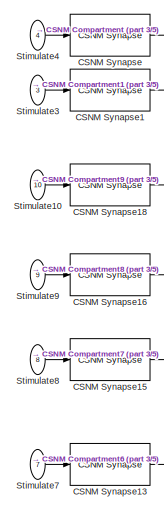
[diagram: CSNM2x9 - part 1/5, top left region]
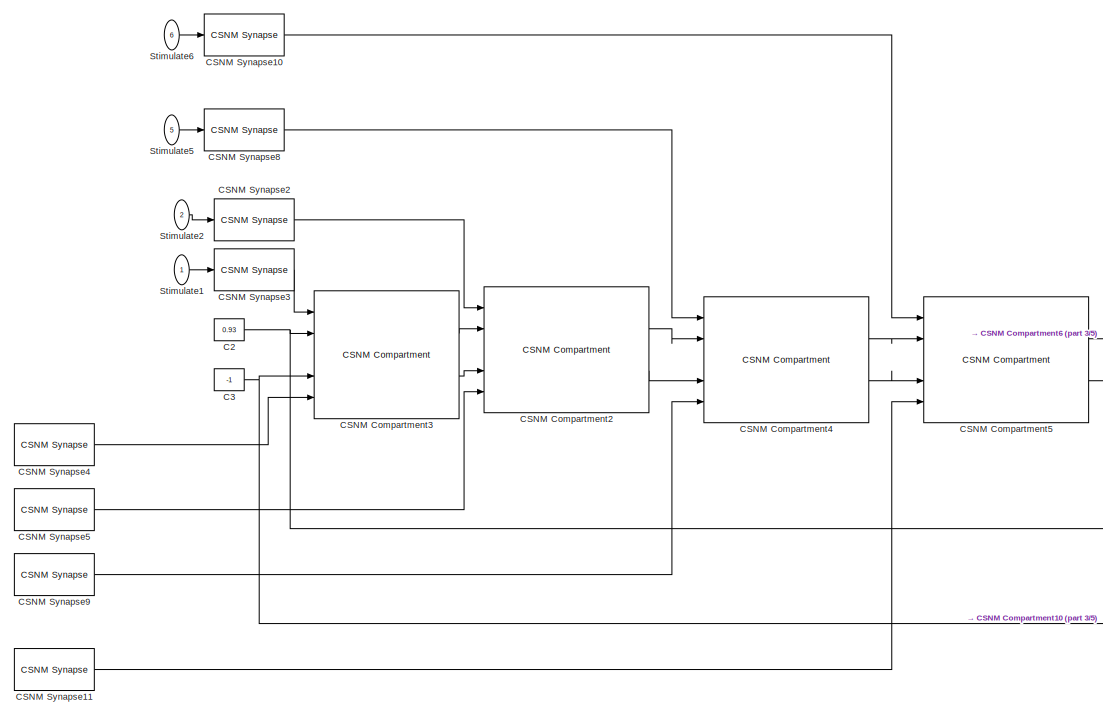
[diagram: CSNM2x9 - part 2/5, middle left region]
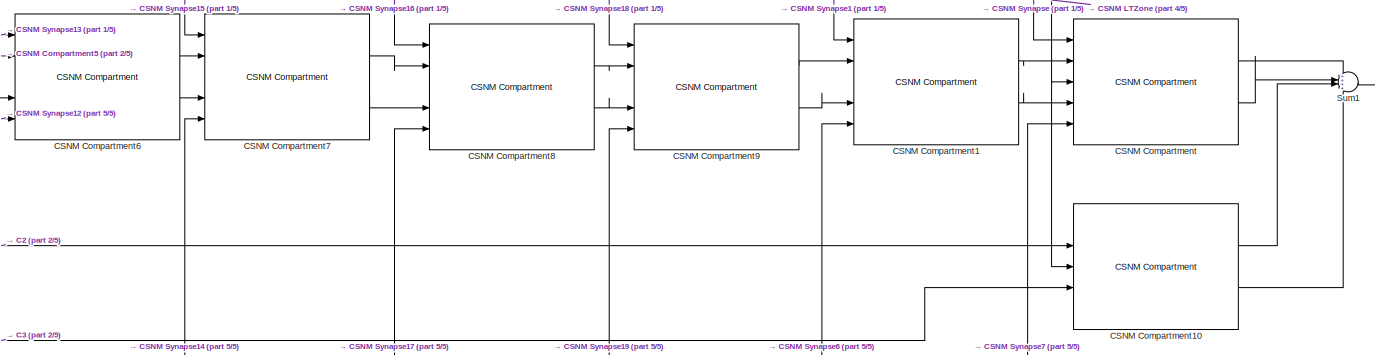
[diagram: CSNM2x9 - part 3/5, central region]
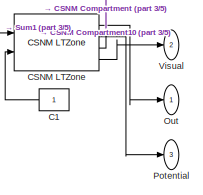
[diagram: CSNM2x9 - part 4/5, middle right region]
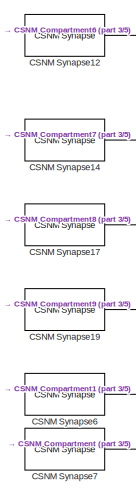
[diagram: CSNM2x9 - part 5/5, bottom left region]
BLOCK [SubSystem] CSNM2x9
  NameLocation = top
  Ports = [10, 3]
  RequestExecContextInheritance = off
BLOCK [Constant] CSNM2x9/C1
  NameLocation = top
BLOCK [Constant] CSNM2x9/C2
  Value = 0.93
BLOCK [Constant] CSNM2x9/C3
  Value = -1
BLOCK [Reference] CSNM2x9/CSNM Compartment  REF=NeuroModelerLibrary/Neuron Elements/CSNM Compartment
  Ports = [5, 2]
  SourceBlock = NeuroModelerLibrary/Neuron Elements/CSNM Compartment
BLOCK [Reference] CSNM2x9/CSNM Compartment1  REF=NeuroModelerLibrary/Neuron Elements/CSNM Compartment
  Ports = [5, 2]
  SourceBlock = NeuroModelerLibrary/Neuron Elements/CSNM Compartment
BLOCK [Reference] CSNM2x9/CSNM Compartment10  REF=NeuroModelerLibrary/Neuron Elements/CSNM Compartment
  Ports = [5, 2]
  SourceBlock = NeuroModelerLibrary/Neuron Elements/CSNM Compartment
BLOCK [Reference] CSNM2x9/CSNM Compartment2  REF=NeuroModelerLibrary/Neuron Elements/CSNM Compartment
  Ports = [5, 2]
  SourceBlock = NeuroModelerLibrary/Neuron Elements/CSNM Compartment
BLOCK [Reference] CSNM2x9/CSNM Compartment3  REF=NeuroModelerLibrary/Neuron Elements/CSNM Compartment
  Ports = [5, 2]
  SourceBlock = NeuroModelerLibrary/Neuron Elements/CSNM Compartment
BLOCK [Reference] CSNM2x9/CSNM Compartment4  REF=NeuroModelerLibrary/Neuron Elements/CSNM Compartment
  Ports = [5, 2]
  SourceBlock = NeuroModelerLibrary/Neuron Elements/CSNM Compartment
BLOCK [Reference] CSNM2x9/CSNM Compartment5  REF=NeuroModelerLibrary/Neuron Elements/CSNM Compartment
  Ports = [5, 2]
  SourceBlock = NeuroModelerLibrary/Neuron Elements/CSNM Compartment
BLOCK [Reference] CSNM2x9/CSNM Compartment6  REF=NeuroModelerLibrary/Neuron Elements/CSNM Compartment
  Ports = [5, 2]
  SourceBlock = NeuroModelerLibrary/Neuron Elements/CSNM Compartment
BLOCK [Reference] CSNM2x9/CSNM Compartment7  REF=NeuroModelerLibrary/Neuron Elements/CSNM Compartment
  Ports = [5, 2]
  SourceBlock = NeuroModelerLibrary/Neuron Elements/CSNM Compartment
BLOCK [Reference] CSNM2x9/CSNM Compartment8  REF=NeuroModelerLibrary/Neuron Elements/CSNM Compartment
  Ports = [5, 2]
  SourceBlock = NeuroModelerLibrary/Neuron Elements/CSNM Compartment
BLOCK [Reference] CSNM2x9/CSNM Compartment9  REF=NeuroModelerLibrary/Neuron Elements/CSNM Compartment
  Ports = [5, 2]
  SourceBlock = NeuroModelerLibrary/Neuron Elements/CSNM Compartment
BLOCK [Reference] CSNM2x9/CSNM LTZone  REF=NeuroModelerLibrary/Neuron Elements/CSNM LTZone
  Ports = [2, 4]
  SourceBlock = NeuroModelerLibrary/Neuron Elements/CSNM LTZone
  SourceType = Ion pump
BLOCK [Reference] CSNM2x9/CSNM Synapse  REF=NeuroModelerLibrary/Neuron Elements/CSNM Synapse
  Ports = [1, 1]
  SourceBlock = NeuroModelerLibrary/Neuron Elements/CSNM Synapse
BLOCK [Reference] CSNM2x9/CSNM Synapse1  REF=NeuroModelerLibrary/Neuron Elements/CSNM Synapse
  Ports = [1, 1]
  SourceBlock = NeuroModelerLibrary/Neuron Elements/CSNM Synapse
BLOCK [Reference] CSNM2x9/CSNM Synapse10  REF=NeuroModelerLibrary/Neuron Elements/CSNM Synapse
  Ports = [1, 1]
  SourceBlock = NeuroModelerLibrary/Neuron Elements/CSNM Synapse
BLOCK [Reference] CSNM2x9/CSNM Synapse11  REF=NeuroModelerLibrary/Neuron Elements/CSNM Synapse
  Ports = [1, 1]
  SourceBlock = NeuroModelerLibrary/Neuron Elements/CSNM Synapse
BLOCK [Reference] CSNM2x9/CSNM Synapse12  REF=NeuroModelerLibrary/Neuron Elements/CSNM Synapse
  Ports = [1, 1]
  SourceBlock = NeuroModelerLibrary/Neuron Elements/CSNM Synapse
BLOCK [Reference] CSNM2x9/CSNM Synapse13  REF=NeuroModelerLibrary/Neuron Elements/CSNM Synapse
  Ports = [1, 1]
  SourceBlock = NeuroModelerLibrary/Neuron Elements/CSNM Synapse
BLOCK [Reference] CSNM2x9/CSNM Synapse14  REF=NeuroModelerLibrary/Neuron Elements/CSNM Synapse
  Ports = [1, 1]
  SourceBlock = NeuroModelerLibrary/Neuron Elements/CSNM Synapse
BLOCK [Reference] CSNM2x9/CSNM Synapse15  REF=NeuroModelerLibrary/Neuron Elements/CSNM Synapse
  Ports = [1, 1]
  SourceBlock = NeuroModelerLibrary/Neuron Elements/CSNM Synapse
BLOCK [Reference] CSNM2x9/CSNM Synapse16  REF=NeuroModelerLibrary/Neuron Elements/CSNM Synapse
  Ports = [1, 1]
  SourceBlock = NeuroModelerLibrary/Neuron Elements/CSNM Synapse
BLOCK [Reference] CSNM2x9/CSNM Synapse17  REF=NeuroModelerLibrary/Neuron Elements/CSNM Synapse
  Ports = [1, 1]
  SourceBlock = NeuroModelerLibrary/Neuron Elements/CSNM Synapse
BLOCK [Reference] CSNM2x9/CSNM Synapse18  REF=NeuroModelerLibrary/Neuron Elements/CSNM Synapse
  Ports = [1, 1]
  SourceBlock = NeuroModelerLibrary/Neuron Elements/CSNM Synapse
BLOCK [Reference] CSNM2x9/CSNM Synapse19  REF=NeuroModelerLibrary/Neuron Elements/CSNM Synapse
  Ports = [1, 1]
  SourceBlock = NeuroModelerLibrary/Neuron Elements/CSNM Synapse
BLOCK [Reference] CSNM2x9/CSNM Synapse2  REF=NeuroModelerLibrary/Neuron Elements/CSNM Synapse
  Ports = [1, 1]
  SourceBlock = NeuroModelerLibrary/Neuron Elements/CSNM Synapse
BLOCK [Reference] CSNM2x9/CSNM Synapse3  REF=NeuroModelerLibrary/Neuron Elements/CSNM Synapse
  Ports = [1, 1]
  SourceBlock = NeuroModelerLibrary/Neuron Elements/CSNM Synapse
BLOCK [Reference] CSNM2x9/CSNM Synapse4  REF=NeuroModelerLibrary/Neuron Elements/CSNM Synapse
  Ports = [1, 1]
  SourceBlock = NeuroModelerLibrary/Neuron Elements/CSNM Synapse
BLOCK [Reference] CSNM2x9/CSNM Synapse5  REF=NeuroModelerLibrary/Neuron Elements/CSNM Synapse
  Ports = [1, 1]
  SourceBlock = NeuroModelerLibrary/Neuron Elements/CSNM Synapse
BLOCK [Reference] CSNM2x9/CSNM Synapse6  REF=NeuroModelerLibrary/Neuron Elements/CSNM Synapse
  Ports = [1, 1]
  SourceBlock = NeuroModelerLibrary/Neuron Elements/CSNM Synapse
BLOCK [Reference] CSNM2x9/CSNM Synapse7  REF=NeuroModelerLibrary/Neuron Elements/CSNM Synapse
  Ports = [1, 1]
  SourceBlock = NeuroModelerLibrary/Neuron Elements/CSNM Synapse
BLOCK [Reference] CSNM2x9/CSNM Synapse8  REF=NeuroModelerLibrary/Neuron Elements/CSNM Synapse
  Ports = [1, 1]
  SourceBlock = NeuroModelerLibrary/Neuron Elements/CSNM Synapse
BLOCK [Reference] CSNM2x9/CSNM Synapse9  REF=NeuroModelerLibrary/Neuron Elements/CSNM Synapse
  Ports = [1, 1]
  SourceBlock = NeuroModelerLibrary/Neuron Elements/CSNM Synapse
BLOCK [Outport] CSNM2x9/Out
  VectorParamsAs1DForOutWhenUnconnected = off
BLOCK [Outport] CSNM2x9/Potential
  Port = 3
  VectorParamsAs1DForOutWhenUnconnected = off
BLOCK [Inport] CSNM2x9/Stimulate1
  NameLocation = top
BLOCK [Inport] CSNM2x9/Stimulate10
  NameLocation = top
  Port = 10
BLOCK [Inport] CSNM2x9/Stimulate2
  NameLocation = top
  Port = 2
BLOCK [Inport] CSNM2x9/Stimulate3
  NameLocation = top
  Port = 3
BLOCK [Inport] CSNM2x9/Stimulate4
  NameLocation = top
  Port = 4
BLOCK [Inport] CSNM2x9/Stimulate5
  NameLocation = top
  Port = 5
BLOCK [Inport] CSNM2x9/Stimulate6
  NameLocation = top
  Port = 6
BLOCK [Inport] CSNM2x9/Stimulate7
  NameLocation = top
  Port = 7
BLOCK [Inport] CSNM2x9/Stimulate8
  NameLocation = top
  Port = 8
BLOCK [Inport] CSNM2x9/Stimulate9
  NameLocation = top
  Port = 9
BLOCK [Sum] CSNM2x9/Sum1
  InputSameDT = on
  Inputs = ++++
  OutDataTypeStr = Inherit: Same as first input
  Ports = [4, 1]
  SaturateOnIntegerOverflow = on
BLOCK [Outport] CSNM2x9/Visual
  Port = 2
  VectorParamsAs1DForOutWhenUnconnected = off
BLOCK [Scope] Color
  Floating = off
  NumInputPorts = 1
  Ports = [1]
  ScopeSpecificationString = Simulink.scopes.TimeScopeBlockCfg('CurrentConfiguration', extmgr.ConfigurationSet(extmgr.Configuration('Core','General UI',true,'FigureColor',[1 1 1]),extmgr.Configuration('Core','Source UI',true),extmgr.Configuration('Sources','WiredSimulink',true,'DataLoggingVariableName','ScopeData1'),extmgr.Configuration('Visuals','Time Domain',true,'SerializedDisplays',{struct('MinYLimReal','-0.104','MaxYLimR...<+1926ch>
BLOCK [Scope] Color1
  Floating = off
  NumInputPorts = 1
  Ports = [1]
  ScopeSpecificationString = Simulink.scopes.TimeScopeBlockCfg('CurrentConfiguration', extmgr.ConfigurationSet(extmgr.Configuration('Core','General UI',true,'FigureColor',[1 1 1]),extmgr.Configuration('Core','Source UI',true),extmgr.Configuration('Sources','WiredSimulink',true,'DataLoggingVariableName','ScopeData1'),extmgr.Configuration('Visuals','Time Domain',true,'SerializedDisplays',{struct('MinYLimReal','-0.29445','MaxYLi...<+1932ch>
BLOCK [Scope] Color10
  Floating = off
  NumInputPorts = 2
  Ports = [2]
  ScopeSpecificationString = Simulink.scopes.TimeScopeBlockCfg('CurrentConfiguration', extmgr.ConfigurationSet(extmgr.Configuration('Core','General UI',true,'FigureColor',[1 1 1]),extmgr.Configuration('Core','Source UI',true),extmgr.Configuration('Sources','WiredSimulink',true,'DataLoggingVariableName','ScopeData9'),extmgr.Configuration('Visuals','Time Domain',true,'SerializedDisplays',{struct('MinYLimReal','-0.125','MaxYLimR...<+3007ch>
BLOCK [Scope] Color11
  Floating = off
  NumInputPorts = 2
  Ports = [2]
  ScopeSpecificationString = Simulink.scopes.TimeScopeBlockCfg('CurrentConfiguration', extmgr.ConfigurationSet(extmgr.Configuration('Core','General UI',true,'FigureColor',[1 1 1]),extmgr.Configuration('Core','Source UI',true),extmgr.Configuration('Sources','WiredSimulink',true,'DataLoggingVariableName','ScopeData10'),extmgr.Configuration('Visuals','Time Domain',true,'SerializedDisplays',{struct('MinYLimReal','-0.125','MaxYLim...<+3007ch>
BLOCK [Scope] Color12
  Floating = off
  NumInputPorts = 2
  Ports = [2]
  ScopeSpecificationString = Simulink.scopes.TimeScopeBlockCfg('CurrentConfiguration', extmgr.ConfigurationSet(extmgr.Configuration('Core','General UI',true,'FigureColor',[1 1 1]),extmgr.Configuration('Core','Source UI',true),extmgr.Configuration('Sources','WiredSimulink',true,'DataLoggingVariableName','ScopeData11'),extmgr.Configuration('Visuals','Time Domain',true,'SerializedDisplays',{struct('MinYLimReal','-0.125','MaxYLim...<+2978ch>
BLOCK [Scope] Color13
  Floating = off
  NumInputPorts = 2
  Ports = [2]
  ScopeSpecificationString = Simulink.scopes.TimeScopeBlockCfg('CurrentConfiguration', extmgr.ConfigurationSet(extmgr.Configuration('Core','General UI',true,'FigureColor',[1 1 1]),extmgr.Configuration('Core','Source UI',true),extmgr.Configuration('Sources','WiredSimulink',true,'DataLoggingVariableName','ScopeData12'),extmgr.Configuration('Visuals','Time Domain',true,'SerializedDisplays',{struct('MinYLimReal','-0.125','MaxYLim...<+3009ch>
BLOCK [Scope] Color14
  Floating = off
  NumInputPorts = 2
  Ports = [2]
  ScopeSpecificationString = Simulink.scopes.TimeScopeBlockCfg('CurrentConfiguration', extmgr.ConfigurationSet(extmgr.Configuration('Core','General UI',true,'FigureColor',[1 1 1]),extmgr.Configuration('Core','Source UI',true),extmgr.Configuration('Sources','WiredSimulink',true,'DataLoggingVariableName','ScopeData13'),extmgr.Configuration('Visuals','Time Domain',true,'SerializedDisplays',{struct('MinYLimReal','-0.125','MaxYLim...<+3008ch>
BLOCK [Scope] Color15
  Floating = off
  NumInputPorts = 2
  Ports = [2]
  ScopeSpecificationString = Simulink.scopes.TimeScopeBlockCfg('CurrentConfiguration', extmgr.ConfigurationSet(extmgr.Configuration('Core','General UI',true,'FigureColor',[1 1 1]),extmgr.Configuration('Core','Source UI',true),extmgr.Configuration('Sources','WiredSimulink',true,'DataLoggingVariableName','ScopeData14'),extmgr.Configuration('Visuals','Time Domain',true,'SerializedDisplays',{struct('MinYLimReal','-0.125','MaxYLim...<+3008ch>
BLOCK [Scope] Color16
  Floating = off
  NumInputPorts = 2
  Ports = [2]
  ScopeSpecificationString = Simulink.scopes.TimeScopeBlockCfg('CurrentConfiguration', extmgr.ConfigurationSet(extmgr.Configuration('Core','General UI',true,'FigureColor',[1 1 1]),extmgr.Configuration('Core','Source UI',true),extmgr.Configuration('Sources','WiredSimulink',true,'DataLoggingVariableName','ScopeData15'),extmgr.Configuration('Visuals','Time Domain',true,'SerializedDisplays',{struct('MinYLimReal','-0.125','MaxYLim...<+2979ch>
BLOCK [Scope] Color17
  Floating = off
  NumInputPorts = 2
  Ports = [2]
  ScopeSpecificationString = Simulink.scopes.TimeScopeBlockCfg('CurrentConfiguration', extmgr.ConfigurationSet(extmgr.Configuration('Core','General UI',true,'FigureColor',[1 1 1]),extmgr.Configuration('Core','Source UI',true),extmgr.Configuration('Sources','WiredSimulink',true,'DataLoggingVariableName','ScopeData16'),extmgr.Configuration('Visuals','Time Domain',true,'SerializedDisplays',{struct('MinYLimReal','-0.125','MaxYLim...<+2978ch>
BLOCK [Scope] Color18
  Floating = off
  NumInputPorts = 2
  Ports = [2]
  ScopeSpecificationString = Simulink.scopes.TimeScopeBlockCfg('CurrentConfiguration', extmgr.ConfigurationSet(extmgr.Configuration('Core','General UI',true,'FigureColor',[1 1 1]),extmgr.Configuration('Core','Source UI',true),extmgr.Configuration('Sources','WiredSimulink',true,'DataLoggingVariableName','ScopeData17'),extmgr.Configuration('Visuals','Time Domain',true,'SerializedDisplays',{struct('MinYLimReal','-0.125','MaxYLim...<+3007ch>
BLOCK [Scope] Color19
  Floating = off
  NumInputPorts = 2
  Ports = [2]
  ScopeSpecificationString = Simulink.scopes.TimeScopeBlockCfg('CurrentConfiguration', extmgr.ConfigurationSet(extmgr.Configuration('Core','General UI',true,'FigureColor',[1 1 1]),extmgr.Configuration('Core','Source UI',true),extmgr.Configuration('Sources','WiredSimulink',true,'DataLoggingVariableName','ScopeData18'),extmgr.Configuration('Visuals','Time Domain',true,'SerializedDisplays',{struct('MinYLimReal','-0.125','MaxYLim...<+3008ch>
BLOCK [Scope] Color2
  Floating = off
  NumInputPorts = 2
  Ports = [2]
  ScopeSpecificationString = Simulink.scopes.TimeScopeBlockCfg('CurrentConfiguration', extmgr.ConfigurationSet(extmgr.Configuration('Core','General UI',true,'FigureColor',[1 1 1]),extmgr.Configuration('Core','Source UI',true),extmgr.Configuration('Sources','WiredSimulink',true,'DataLoggingVariableName','ScopeData1'),extmgr.Configuration('Visuals','Time Domain',true,'SerializedDisplays',{struct('MinYLimReal','-0.125','MaxYLimR...<+2900ch>
BLOCK [Scope] Color20
  Floating = off
  NumInputPorts = 2
  Ports = [2]
  ScopeSpecificationString = Simulink.scopes.TimeScopeBlockCfg('CurrentConfiguration', extmgr.ConfigurationSet(extmgr.Configuration('Core','General UI',true,'FigureColor',[1 1 1]),extmgr.Configuration('Core','Source UI',true),extmgr.Configuration('Sources','WiredSimulink',true,'DataLoggingVariableName','ScopeData19'),extmgr.Configuration('Visuals','Time Domain',true,'SerializedDisplays',{struct('MinYLimReal','-0.125','MaxYLim...<+2901ch>
BLOCK [Scope] Color21
  Floating = off
  NumInputPorts = 2
  Ports = [2]
  ScopeSpecificationString = Simulink.scopes.TimeScopeBlockCfg('CurrentConfiguration', extmgr.ConfigurationSet(extmgr.Configuration('Core','General UI',true,'FigureColor',[1 1 1]),extmgr.Configuration('Core','Source UI',true),extmgr.Configuration('Sources','WiredSimulink',true,'DataLoggingVariableName','ScopeData20'),extmgr.Configuration('Visuals','Time Domain',true,'SerializedDisplays',{struct('MinYLimReal','-0.125','MaxYLim...<+2872ch>
BLOCK [Scope] Color22
  Floating = off
  NumInputPorts = 2
  Ports = [2]
  ScopeSpecificationString = Simulink.scopes.TimeScopeBlockCfg('CurrentConfiguration', extmgr.ConfigurationSet(extmgr.Configuration('Core','General UI',true,'FigureColor',[1 1 1]),extmgr.Configuration('Core','Source UI',true),extmgr.Configuration('Sources','WiredSimulink',true,'DataLoggingVariableName','ScopeData21'),extmgr.Configuration('Visuals','Time Domain',true,'SerializedDisplays',{struct('MinYLimReal','-0.125','MaxYLim...<+2871ch>
BLOCK [Scope] Color23
  Floating = off
  NumInputPorts = 2
  Ports = [2]
  ScopeSpecificationString = Simulink.scopes.TimeScopeBlockCfg('CurrentConfiguration', extmgr.ConfigurationSet(extmgr.Configuration('Core','General UI',true,'FigureColor',[1 1 1]),extmgr.Configuration('Core','Source UI',true),extmgr.Configuration('Sources','WiredSimulink',true,'DataLoggingVariableName','ScopeData22'),extmgr.Configuration('Visuals','Time Domain',true,'SerializedDisplays',{struct('MinYLimReal','-0.125','MaxYLim...<+2874ch>
BLOCK [Scope] Color24
  Floating = off
  NumInputPorts = 2
  Ports = [2]
  ScopeSpecificationString = Simulink.scopes.TimeScopeBlockCfg('CurrentConfiguration', extmgr.ConfigurationSet(extmgr.Configuration('Core','General UI',true,'FigureColor',[1 1 1]),extmgr.Configuration('Core','Source UI',true),extmgr.Configuration('Sources','WiredSimulink',true,'DataLoggingVariableName','ScopeData23'),extmgr.Configuration('Visuals','Time Domain',true,'SerializedDisplays',{struct('MinYLimReal','-0.125','MaxYLim...<+2900ch>
BLOCK [Scope] Color25
  Floating = off
  NumInputPorts = 2
  Ports = [2]
  ScopeSpecificationString = Simulink.scopes.TimeScopeBlockCfg('CurrentConfiguration', extmgr.ConfigurationSet(extmgr.Configuration('Core','General UI',true,'FigureColor',[1 1 1]),extmgr.Configuration('Core','Source UI',true),extmgr.Configuration('Sources','WiredSimulink',true,'DataLoggingVariableName','ScopeData24'),extmgr.Configuration('Visuals','Time Domain',true,'SerializedDisplays',{struct('MinYLimReal','-0.125','MaxYLim...<+2873ch>
BLOCK [Scope] Color26
  Floating = off
  NumInputPorts = 2
  Ports = [2]
  ScopeSpecificationString = Simulink.scopes.TimeScopeBlockCfg('CurrentConfiguration', extmgr.ConfigurationSet(extmgr.Configuration('Core','General UI',true,'FigureColor',[1 1 1]),extmgr.Configuration('Core','Source UI',true),extmgr.Configuration('Sources','WiredSimulink',true,'DataLoggingVariableName','ScopeData25'),extmgr.Configuration('Visuals','Time Domain',true,'SerializedDisplays',{struct('MinYLimReal','-0.125','MaxYLim...<+2873ch>
BLOCK [Scope] Color27
  Floating = off
  NumInputPorts = 2
  Ports = [2]
  ScopeSpecificationString = Simulink.scopes.TimeScopeBlockCfg('CurrentConfiguration', extmgr.ConfigurationSet(extmgr.Configuration('Core','General UI',true,'FigureColor',[1 1 1]),extmgr.Configuration('Core','Source UI',true),extmgr.Configuration('Sources','WiredSimulink',true,'DataLoggingVariableName','ScopeData26'),extmgr.Configuration('Visuals','Time Domain',true,'SerializedDisplays',{struct('MinYLimReal','-0.125','MaxYLim...<+2900ch>
BLOCK [Scope] Color28
  Floating = off
  NumInputPorts = 2
  Ports = [2]
  ScopeSpecificationString = Simulink.scopes.TimeScopeBlockCfg('CurrentConfiguration', extmgr.ConfigurationSet(extmgr.Configuration('Core','General UI',true,'FigureColor',[1 1 1]),extmgr.Configuration('Core','Source UI',true),extmgr.Configuration('Sources','WiredSimulink',true,'DataLoggingVariableName','ScopeData27'),extmgr.Configuration('Visuals','Time Domain',true,'SerializedDisplays',{struct('MinYLimReal','-0.125','MaxYLim...<+2977ch>
BLOCK [Scope] Color29
  Floating = off
  NumInputPorts = 2
  Ports = [2]
  ScopeSpecificationString = Simulink.scopes.TimeScopeBlockCfg('CurrentConfiguration', extmgr.ConfigurationSet(extmgr.Configuration('Core','General UI',true,'FigureColor',[1 1 1]),extmgr.Configuration('Core','Source UI',true),extmgr.Configuration('Sources','WiredSimulink',true,'DataLoggingVariableName','ScopeData28'),extmgr.Configuration('Visuals','Time Domain',true,'SerializedDisplays',{struct('MinYLimReal','-0.125','MaxYLim...<+2978ch>
BLOCK [Scope] Color3
  Floating = off
  NumInputPorts = 2
  Ports = [2]
  ScopeSpecificationString = Simulink.scopes.TimeScopeBlockCfg('CurrentConfiguration', extmgr.ConfigurationSet(extmgr.Configuration('Core','General UI',true,'FigureColor',[1 1 1]),extmgr.Configuration('Core','Source UI',true),extmgr.Configuration('Sources','WiredSimulink',true,'DataLoggingVariableName','ScopeData2'),extmgr.Configuration('Visuals','Time Domain',true,'SerializedDisplays',{struct('MinYLimReal','-0.125','MaxYLimR...<+2901ch>
BLOCK [Scope] Color30
  Floating = off
  NumInputPorts = 2
  Ports = [2]
  ScopeSpecificationString = Simulink.scopes.TimeScopeBlockCfg('CurrentConfiguration', extmgr.ConfigurationSet(extmgr.Configuration('Core','General UI',true,'FigureColor',[1 1 1]),extmgr.Configuration('Core','Source UI',true),extmgr.Configuration('Sources','WiredSimulink',true,'DataLoggingVariableName','ScopeData29'),extmgr.Configuration('Visuals','Time Domain',true,'SerializedDisplays',{struct('MinYLimReal','-0.125','MaxYLim...<+2978ch>
BLOCK [Scope] Color31
  Floating = off
  NumInputPorts = 2
  Ports = [2]
  ScopeSpecificationString = Simulink.scopes.TimeScopeBlockCfg('CurrentConfiguration', extmgr.ConfigurationSet(extmgr.Configuration('Core','General UI',true,'FigureColor',[1 1 1]),extmgr.Configuration('Core','Source UI',true),extmgr.Configuration('Sources','WiredSimulink',true,'DataLoggingVariableName','ScopeData30'),extmgr.Configuration('Visuals','Time Domain',true,'SerializedDisplays',{struct('MinYLimReal','-0.125','MaxYLim...<+2977ch>
BLOCK [Scope] Color4
  Floating = off
  NumInputPorts = 2
  Ports = [2]
  ScopeSpecificationString = Simulink.scopes.TimeScopeBlockCfg('CurrentConfiguration', extmgr.ConfigurationSet(extmgr.Configuration('Core','General UI',true,'FigureColor',[1 1 1]),extmgr.Configuration('Core','Source UI',true),extmgr.Configuration('Sources','WiredSimulink',true,'DataLoggingVariableName','ScopeData3'),extmgr.Configuration('Visuals','Time Domain',true,'SerializedDisplays',{struct('MinYLimReal','-0.125','MaxYLimR...<+2977ch>
BLOCK [Scope] Color5
  Floating = off
  NumInputPorts = 2
  Ports = [2]
  ScopeSpecificationString = Simulink.scopes.TimeScopeBlockCfg('CurrentConfiguration', extmgr.ConfigurationSet(extmgr.Configuration('Core','General UI',true,'FigureColor',[1 1 1]),extmgr.Configuration('Core','Source UI',true),extmgr.Configuration('Sources','WiredSimulink',true,'DataLoggingVariableName','ScopeData4'),extmgr.Configuration('Visuals','Time Domain',true,'SerializedDisplays',{struct('MinYLimReal','-0.125','MaxYLimR...<+3007ch>
BLOCK [Scope] Color6
  Floating = off
  NumInputPorts = 2
  Ports = [2]
  ScopeSpecificationString = Simulink.scopes.TimeScopeBlockCfg('CurrentConfiguration', extmgr.ConfigurationSet(extmgr.Configuration('Core','General UI',true,'FigureColor',[1 1 1]),extmgr.Configuration('Core','Source UI',true),extmgr.Configuration('Sources','WiredSimulink',true,'DataLoggingVariableName','ScopeData5'),extmgr.Configuration('Visuals','Time Domain',true,'SerializedDisplays',{struct('MinYLimReal','-0.125','MaxYLimR...<+2995ch>
BLOCK [Scope] Color7
  Floating = off
  NumInputPorts = 2
  Ports = [2]
  ScopeSpecificationString = Simulink.scopes.TimeScopeBlockCfg('CurrentConfiguration', extmgr.ConfigurationSet(extmgr.Configuration('Core','General UI',true,'FigureColor',[1 1 1]),extmgr.Configuration('Core','Source UI',true),extmgr.Configuration('Sources','WiredSimulink',true,'DataLoggingVariableName','ScopeData6'),extmgr.Configuration('Visuals','Time Domain',true,'SerializedDisplays',{struct('MinYLimReal','-0.125','MaxYLimR...<+2977ch>
BLOCK [Scope] Color8
  Floating = off
  NumInputPorts = 2
  Ports = [2]
  ScopeSpecificationString = Simulink.scopes.TimeScopeBlockCfg('CurrentConfiguration', extmgr.ConfigurationSet(extmgr.Configuration('Core','General UI',true,'FigureColor',[1 1 1]),extmgr.Configuration('Core','Source UI',true),extmgr.Configuration('Sources','WiredSimulink',true,'DataLoggingVariableName','ScopeData7'),extmgr.Configuration('Visuals','Time Domain',true,'SerializedDisplays',{struct('MinYLimReal','-0.125','MaxYLimR...<+2978ch>
BLOCK [Scope] Color9
  Floating = off
  NumInputPorts = 2
  Ports = [2]
  ScopeSpecificationString = Simulink.scopes.TimeScopeBlockCfg('CurrentConfiguration', extmgr.ConfigurationSet(extmgr.Configuration('Core','General UI',true,'FigureColor',[1 1 1]),extmgr.Configuration('Core','Source UI',true),extmgr.Configuration('Sources','WiredSimulink',true,'DataLoggingVariableName','ScopeData8'),extmgr.Configuration('Visuals','Time Domain',true,'SerializedDisplays',{struct('MinYLimReal','-0.125','MaxYLimR...<+3007ch>
BLOCK [Gain] Gain1
  Gain = 0.3
BLOCK [Gain] Gain2
  Gain = 0.3
BLOCK [Scope] Grayscale
  Floating = off
  NumInputPorts = 1
  Ports = [1]
  ScopeSpecificationString = Simulink.scopes.TimeScopeBlockCfg('CurrentConfiguration', extmgr.ConfigurationSet(extmgr.Configuration('Core','General UI',true,'FigureColor',[1 1 1]),extmgr.Configuration('Core','Source UI',true),extmgr.Configuration('Sources','WiredSimulink',true),extmgr.Configuration('Visuals','Time Domain',true,'SerializedDisplays',{struct('MinYLimReal','-0.104','MaxYLimReal','-0.05215','YLabelReal','Membrane ...<+1890ch>
BLOCK [Scope] Grayscale1
  Floating = off
  NumInputPorts = 1
  Ports = [1]
  ScopeSpecificationString = Simulink.scopes.TimeScopeBlockCfg('CurrentConfiguration', extmgr.ConfigurationSet(extmgr.Configuration('Core','General UI',true,'FigureColor',[1 1 1]),extmgr.Configuration('Core','Source UI',true),extmgr.Configuration('Sources','WiredSimulink',true,'DataLoggingVariableName','ScopeData2'),extmgr.Configuration('Visuals','Time Domain',true,'SerializedDisplays',{struct('MinYLimReal','-0.104','MaxYLimR...<+1929ch>
BLOCK [Reference] IaF Neuron  REF=NeuroModelerLibrary/Classic Models/IaF Neuron
  Ports = [1, 1]
  SourceBlock = NeuroModelerLibrary/Classic Models/IaF Neuron
BLOCK [Reference] IaF Neuron2  REF=NeuroModelerLibrary/Classic Models/IaF Neuron
  Ports = [1, 1]
  SourceBlock = NeuroModelerLibrary/Classic Models/IaF Neuron
BLOCK [SubSystem] LTZoneV2
  Ports = [2, 4]
  RequestExecContextInheritance = off
BLOCK [Constant] LTZoneV2/C1
  Value = inertia
BLOCK [Constant] LTZoneV2/C5
  Value = 0
BLOCK [Inport] LTZoneV2/E
  Port = 2
BLOCK [Gain] LTZoneV2/FB
  Gain = FB
  OutDataTypeStr = Inherit: Same as input
  ParamDataTypeStr = Inherit: Same as input
BLOCK [Outport] LTZoneV2/Feedback
  InitialOutput = 0
  Port = 3
  VectorParamsAs1DForOutWhenUnconnected = off
BLOCK [Gain] LTZoneV2/Inputs
  Gain = 1/NM
  OutDataTypeStr = Inherit: Same as input
  ParamDataTypeStr = Inherit: Same as input
BLOCK [Outport] LTZoneV2/Out
  InitialOutput = 0
  VectorParamsAs1DForOutWhenUnconnected = off
BLOCK [Outport] LTZoneV2/OutPotential
  InitialOutput = 0
  Port = 2
  VectorParamsAs1DForOutWhenUnconnected = off
BLOCK [Inport] LTZoneV2/Potential
BLOCK [Relay] LTZoneV2/Relay
  OffSwitchValue = switchOff
  OnSwitchValue = T
BLOCK [Switch] LTZoneV2/S2
  Threshold = 1
BLOCK [Switch] LTZoneV2/S3
  Threshold = 1
BLOCK [Switch] LTZoneV2/Switch
  InputSameDT = off
  SaturateOnIntegerOverflow = off
  Threshold = 1
BLOCK [TransferFcn] LTZoneV2/Transfer Fcn1
  Denominator = [IT 1]
BLOCK [Outport] LTZoneV2/Visual
  InitialOutput = 0
  Port = 4
  VectorParamsAs1DForOutWhenUnconnected = off
BLOCK [Mux] Mux
  DisplayOption = bar
  Inputs = 2
  Ports = [2, 1]
BLOCK [Mux] Mux1
  DisplayOption = bar
  Inputs = 2
  Ports = [2, 1]
BLOCK [Mux] Mux2
  DisplayOption = bar
  Inputs = 2
  Ports = [2, 1]
BLOCK [Mux] Mux3
  DisplayOption = bar
  Inputs = 2
  Ports = [2, 1]
BLOCK [Sum] Sum2
  InputSameDT = on
  OutDataTypeStr = Inherit: Same as first input
  Ports = [2, 1]
  SaturateOnIntegerOverflow = on
BLOCK [Sum] Sum3
  InputSameDT = on
  OutDataTypeStr = Inherit: Same as first input
  Ports = [2, 1]
  SaturateOnIntegerOverflow = on
BLOCK [Reference] Two-output Pulse Generator  REF=NeuroModelerLibrary/Support/Two-output
Pulse Generator
  Ports = [0, 2]
  SourceBlock = NeuroModelerLibrary/Support/Two-output\nPulse Generator
BLOCK [Reference] Two-output Pulse Generator1  REF=NeuroModelerLibrary/Support/Two-output
Pulse Generator
  Ports = [0, 2]
  SourceBlock = NeuroModelerLibrary/Support/Two-output\nPulse Generator
BLOCK [Reference] Two-output Pulse Generator11  REF=NeuroModelerLibrary/Support/Two-output
Pulse Generator
  Ports = [0, 2]
  SourceBlock = NeuroModelerLibrary/Support/Two-output\nPulse Generator
BLOCK [Reference] Two-output Pulse Generator6  REF=NeuroModelerLibrary/Support/Two-output
Pulse Generator
  Ports = [0, 2]
  SourceBlock = NeuroModelerLibrary/Support/Two-output\nPulse Generator
LINE C1:1 -> LTZoneV2:2
LINE C2:1 -> CSNM Compartment2:2
LINE C3:1 -> CSNM Compartment2:4
LINE C7:1 -> CSNM LTZone:2
LINE C8:1 -> CSNM Compartment:2
LINE C9:1 -> CSNM Compartment:4
LINE CSNM Compartment2:1 -> Sum2:1
LINE CSNM Compartment2:2 -> Sum2:2
LINE CSNM Compartment:1 -> Sum3:1
LINE CSNM Compartment:2 -> Sum3:2
NET CSNM LTZone:2 -> Mux2:2, Mux:2
LINE CSNM LTZone:3 -> CSNM Compartment:3
NET CSNM Synapse1:1 -> Gain1:1, IaF Neuron2:1
NET CSNM Synapse:1 -> Gain2:1, IaF Neuron:1
LINE CSNM1x0:3 -> Color30:2
LINE CSNM1x1:3 -> Color29:2
LINE CSNM1x2:3 -> Color28:2
LINE CSNM1x3:3 -> Color4:2
LINE CSNM1x4-S10/C1:1 -> CSNM1x4-S10/CSNM LTZone:2
LINE CSNM1x4-S10/C2:1 -> CSNM1x4-S10/CSNM Compartment3:2
LINE CSNM1x4-S10/C3:1 -> CSNM1x4-S10/CSNM Compartment3:4
LINE CSNM1x4-S10/CSNM Compartment1:1 -> CSNM1x4-S10/CSNM Compartment:2
LINE CSNM1x4-S10/CSNM Compartment1:2 -> CSNM1x4-S10/CSNM Compartment:4
LINE CSNM1x4-S10/CSNM Compartment2:1 -> CSNM1x4-S10/CSNM Compartment1:2
LINE CSNM1x4-S10/CSNM Compartment2:2 -> CSNM1x4-S10/CSNM Compartment1:4
LINE CSNM1x4-S10/CSNM Compartment3:1 -> CSNM1x4-S10/CSNM Compartment2:2
LINE CSNM1x4-S10/CSNM Compartment3:2 -> CSNM1x4-S10/CSNM Compartment2:4
LINE CSNM1x4-S10/CSNM Compartment:1 -> CSNM1x4-S10/Sum7:1
LINE CSNM1x4-S10/CSNM Compartment:2 -> CSNM1x4-S10/Sum7:2
LINE CSNM1x4-S10/CSNM LTZone:1 -> CSNM1x4-S10/Out:1
LINE CSNM1x4-S10/CSNM LTZone:2 -> CSNM1x4-S10/Potential:1
LINE CSNM1x4-S10/CSNM LTZone:3 -> CSNM1x4-S10/CSNM Compartment:3
LINE CSNM1x4-S10/CSNM LTZone:4 -> CSNM1x4-S10/Visual:1
LINE CSNM1x4-S10/CSNM Synapse10:1 -> CSNM1x4-S10/Sum12:4
LINE CSNM1x4-S10/CSNM Synapse11:1 -> CSNM1x4-S10/Sum1:6
LINE CSNM1x4-S10/CSNM Synapse12:1 -> CSNM1x4-S10/Sum12:3
LINE CSNM1x4-S10/CSNM Synapse13:1 -> CSNM1x4-S10/Sum1:7
LINE CSNM1x4-S10/CSNM Synapse14:1 -> CSNM1x4-S10/Sum12:2
LINE CSNM1x4-S10/CSNM Synapse15:1 -> CSNM1x4-S10/Sum1:8
LINE CSNM1x4-S10/CSNM Synapse16:1 -> CSNM1x4-S10/Sum12:1
LINE CSNM1x4-S10/CSNM Synapse17:1 -> CSNM1x4-S10/Sum1:9
LINE CSNM1x4-S10/CSNM Synapse18:1 -> CSNM1x4-S10/Sum12:10
LINE CSNM1x4-S10/CSNM Synapse19:1 -> CSNM1x4-S10/Sum1:10
LINE CSNM1x4-S10/CSNM Synapse1:1 -> CSNM1x4-S10/Sum12:7
LINE CSNM1x4-S10/CSNM Synapse2:1 -> CSNM1x4-S10/Sum12:8
LINE CSNM1x4-S10/CSNM Synapse3:1 -> CSNM1x4-S10/Sum12:9
LINE CSNM1x4-S10/CSNM Synapse4:1 -> CSNM1x4-S10/Sum1:1
LINE CSNM1x4-S10/CSNM Synapse5:1 -> CSNM1x4-S10/Sum1:2
LINE CSNM1x4-S10/CSNM Synapse6:1 -> CSNM1x4-S10/Sum1:3
LINE CSNM1x4-S10/CSNM Synapse7:1 -> CSNM1x4-S10/Sum1:4
LINE CSNM1x4-S10/CSNM Synapse8:1 -> CSNM1x4-S10/Sum12:5
LINE CSNM1x4-S10/CSNM Synapse9:1 -> CSNM1x4-S10/Sum1:5
LINE CSNM1x4-S10/CSNM Synapse:1 -> CSNM1x4-S10/Sum12:6
LINE CSNM1x4-S10/Stimulate10:1 -> CSNM1x4-S10/CSNM Synapse18:1
LINE CSNM1x4-S10/Stimulate1:1 -> CSNM1x4-S10/CSNM Synapse3:1
LINE CSNM1x4-S10/Stimulate2:1 -> CSNM1x4-S10/CSNM Synapse2:1
LINE CSNM1x4-S10/Stimulate3:1 -> CSNM1x4-S10/CSNM Synapse1:1
LINE CSNM1x4-S10/Stimulate4:1 -> CSNM1x4-S10/CSNM Synapse:1
LINE CSNM1x4-S10/Stimulate5:1 -> CSNM1x4-S10/CSNM Synapse8:1
LINE CSNM1x4-S10/Stimulate6:1 -> CSNM1x4-S10/CSNM Synapse10:1
LINE CSNM1x4-S10/Stimulate7:1 -> CSNM1x4-S10/CSNM Synapse12:1
LINE CSNM1x4-S10/Stimulate8:1 -> CSNM1x4-S10/CSNM Synapse14:1
LINE CSNM1x4-S10/Stimulate9:1 -> CSNM1x4-S10/CSNM Synapse16:1
LINE CSNM1x4-S10/Sum12:1 -> CSNM1x4-S10/CSNM Compartment3:1
LINE CSNM1x4-S10/Sum1:1 -> CSNM1x4-S10/CSNM Compartment3:5
LINE CSNM1x4-S10/Sum7:1 -> CSNM1x4-S10/CSNM LTZone:1
LINE CSNM1x4-S10:3 -> Color27:2
LINE CSNM1x4-S1:3 -> Color2:2
LINE CSNM1x4-S2:3 -> Color3:2
LINE CSNM1x4-S3:3 -> Color20:2
LINE CSNM1x4-S4:3 -> Color21:2
LINE CSNM1x4-S5/C1:1 -> CSNM1x4-S5/CSNM LTZone:2
LINE CSNM1x4-S5/C2:1 -> CSNM1x4-S5/CSNM Compartment3:2
LINE CSNM1x4-S5/C3:1 -> CSNM1x4-S5/CSNM Compartment3:4
LINE CSNM1x4-S5/CSNM Compartment1:1 -> CSNM1x4-S5/CSNM Compartment:2
LINE CSNM1x4-S5/CSNM Compartment1:2 -> CSNM1x4-S5/CSNM Compartment:4
LINE CSNM1x4-S5/CSNM Compartment2:1 -> CSNM1x4-S5/CSNM Compartment1:2
LINE CSNM1x4-S5/CSNM Compartment2:2 -> CSNM1x4-S5/CSNM Compartment1:4
LINE CSNM1x4-S5/CSNM Compartment3:1 -> CSNM1x4-S5/CSNM Compartment2:2
LINE CSNM1x4-S5/CSNM Compartment3:2 -> CSNM1x4-S5/CSNM Compartment2:4
LINE CSNM1x4-S5/CSNM Compartment:1 -> CSNM1x4-S5/Sum7:1
LINE CSNM1x4-S5/CSNM Compartment:2 -> CSNM1x4-S5/Sum7:2
LINE CSNM1x4-S5/CSNM LTZone:1 -> CSNM1x4-S5/Out:1
LINE CSNM1x4-S5/CSNM LTZone:2 -> CSNM1x4-S5/Potential:1
LINE CSNM1x4-S5/CSNM LTZone:3 -> CSNM1x4-S5/CSNM Compartment:3
LINE CSNM1x4-S5/CSNM LTZone:4 -> CSNM1x4-S5/Visual:1
LINE CSNM1x4-S5/CSNM Synapse1:1 -> CSNM1x4-S5/Sum12:3
LINE CSNM1x4-S5/CSNM Synapse2:1 -> CSNM1x4-S5/Sum12:4
LINE CSNM1x4-S5/CSNM Synapse3:1 -> CSNM1x4-S5/Sum12:5
LINE CSNM1x4-S5/CSNM Synapse4:1 -> CSNM1x4-S5/Sum1:1
LINE CSNM1x4-S5/CSNM Synapse5:1 -> CSNM1x4-S5/Sum1:2
LINE CSNM1x4-S5/CSNM Synapse6:1 -> CSNM1x4-S5/Sum1:3
LINE CSNM1x4-S5/CSNM Synapse7:1 -> CSNM1x4-S5/Sum1:4
LINE CSNM1x4-S5/CSNM Synapse8:1 -> CSNM1x4-S5/Sum12:1
LINE CSNM1x4-S5/CSNM Synapse9:1 -> CSNM1x4-S5/Sum1:5
LINE CSNM1x4-S5/CSNM Synapse:1 -> CSNM1x4-S5/Sum12:2
LINE CSNM1x4-S5/Stimulate1:1 -> CSNM1x4-S5/CSNM Synapse3:1
LINE CSNM1x4-S5/Stimulate2:1 -> CSNM1x4-S5/CSNM Synapse2:1
LINE CSNM1x4-S5/Stimulate3:1 -> CSNM1x4-S5/CSNM Synapse1:1
LINE CSNM1x4-S5/Stimulate4:1 -> CSNM1x4-S5/CSNM Synapse:1
LINE CSNM1x4-S5/Stimulate5:1 -> CSNM1x4-S5/CSNM Synapse8:1
LINE CSNM1x4-S5/Sum12:1 -> CSNM1x4-S5/CSNM Compartment3:1
LINE CSNM1x4-S5/Sum1:1 -> CSNM1x4-S5/CSNM Compartment3:5
LINE CSNM1x4-S5/Sum7:1 -> CSNM1x4-S5/CSNM LTZone:1
LINE CSNM1x4-S5:3 -> Color22:2
LINE CSNM1x4-S6/C1:1 -> CSNM1x4-S6/CSNM LTZone:2
LINE CSNM1x4-S6/C2:1 -> CSNM1x4-S6/CSNM Compartment3:2
LINE CSNM1x4-S6/C3:1 -> CSNM1x4-S6/CSNM Compartment3:4
LINE CSNM1x4-S6/CSNM Compartment1:1 -> CSNM1x4-S6/CSNM Compartment:2
LINE CSNM1x4-S6/CSNM Compartment1:2 -> CSNM1x4-S6/CSNM Compartment:4
LINE CSNM1x4-S6/CSNM Compartment2:1 -> CSNM1x4-S6/CSNM Compartment1:2
LINE CSNM1x4-S6/CSNM Compartment2:2 -> CSNM1x4-S6/CSNM Compartment1:4
LINE CSNM1x4-S6/CSNM Compartment3:1 -> CSNM1x4-S6/CSNM Compartment2:2
LINE CSNM1x4-S6/CSNM Compartment3:2 -> CSNM1x4-S6/CSNM Compartment2:4
LINE CSNM1x4-S6/CSNM Compartment:1 -> CSNM1x4-S6/Sum7:1
LINE CSNM1x4-S6/CSNM Compartment:2 -> CSNM1x4-S6/Sum7:2
LINE CSNM1x4-S6/CSNM LTZone:1 -> CSNM1x4-S6/Out:1
LINE CSNM1x4-S6/CSNM LTZone:2 -> CSNM1x4-S6/Potential:1
LINE CSNM1x4-S6/CSNM LTZone:3 -> CSNM1x4-S6/CSNM Compartment:3
LINE CSNM1x4-S6/CSNM LTZone:4 -> CSNM1x4-S6/Visual:1
LINE CSNM1x4-S6/CSNM Synapse10:1 -> CSNM1x4-S6/Sum12:1
LINE CSNM1x4-S6/CSNM Synapse11:1 -> CSNM1x4-S6/Sum1:6
LINE CSNM1x4-S6/CSNM Synapse1:1 -> CSNM1x4-S6/Sum12:4
LINE CSNM1x4-S6/CSNM Synapse2:1 -> CSNM1x4-S6/Sum12:5
LINE CSNM1x4-S6/CSNM Synapse3:1 -> CSNM1x4-S6/Sum12:6
LINE CSNM1x4-S6/CSNM Synapse4:1 -> CSNM1x4-S6/Sum1:1
LINE CSNM1x4-S6/CSNM Synapse5:1 -> CSNM1x4-S6/Sum1:2
LINE CSNM1x4-S6/CSNM Synapse6:1 -> CSNM1x4-S6/Sum1:3
LINE CSNM1x4-S6/CSNM Synapse7:1 -> CSNM1x4-S6/Sum1:4
LINE CSNM1x4-S6/CSNM Synapse8:1 -> CSNM1x4-S6/Sum12:2
LINE CSNM1x4-S6/CSNM Synapse9:1 -> CSNM1x4-S6/Sum1:5
LINE CSNM1x4-S6/CSNM Synapse:1 -> CSNM1x4-S6/Sum12:3
LINE CSNM1x4-S6/Stimulate1:1 -> CSNM1x4-S6/CSNM Synapse3:1
LINE CSNM1x4-S6/Stimulate2:1 -> CSNM1x4-S6/CSNM Synapse2:1
LINE CSNM1x4-S6/Stimulate3:1 -> CSNM1x4-S6/CSNM Synapse1:1
LINE CSNM1x4-S6/Stimulate4:1 -> CSNM1x4-S6/CSNM Synapse:1
LINE CSNM1x4-S6/Stimulate5:1 -> CSNM1x4-S6/CSNM Synapse8:1
LINE CSNM1x4-S6/Stimulate6:1 -> CSNM1x4-S6/CSNM Synapse10:1
LINE CSNM1x4-S6/Sum12:1 -> CSNM1x4-S6/CSNM Compartment3:1
LINE CSNM1x4-S6/Sum1:1 -> CSNM1x4-S6/CSNM Compartment3:5
LINE CSNM1x4-S6/Sum7:1 -> CSNM1x4-S6/CSNM LTZone:1
LINE CSNM1x4-S6:3 -> Color23:2
LINE CSNM1x4-S7/C1:1 -> CSNM1x4-S7/CSNM LTZone:2
LINE CSNM1x4-S7/C2:1 -> CSNM1x4-S7/CSNM Compartment3:2
LINE CSNM1x4-S7/C3:1 -> CSNM1x4-S7/CSNM Compartment3:4
LINE CSNM1x4-S7/CSNM Compartment1:1 -> CSNM1x4-S7/CSNM Compartment:2
LINE CSNM1x4-S7/CSNM Compartment1:2 -> CSNM1x4-S7/CSNM Compartment:4
LINE CSNM1x4-S7/CSNM Compartment2:1 -> CSNM1x4-S7/CSNM Compartment1:2
LINE CSNM1x4-S7/CSNM Compartment2:2 -> CSNM1x4-S7/CSNM Compartment1:4
LINE CSNM1x4-S7/CSNM Compartment3:1 -> CSNM1x4-S7/CSNM Compartment2:2
LINE CSNM1x4-S7/CSNM Compartment3:2 -> CSNM1x4-S7/CSNM Compartment2:4
LINE CSNM1x4-S7/CSNM Compartment:1 -> CSNM1x4-S7/Sum7:1
LINE CSNM1x4-S7/CSNM Compartment:2 -> CSNM1x4-S7/Sum7:2
LINE CSNM1x4-S7/CSNM LTZone:1 -> CSNM1x4-S7/Out:1
LINE CSNM1x4-S7/CSNM LTZone:2 -> CSNM1x4-S7/Potential:1
LINE CSNM1x4-S7/CSNM LTZone:3 -> CSNM1x4-S7/CSNM Compartment:3
LINE CSNM1x4-S7/CSNM LTZone:4 -> CSNM1x4-S7/Visual:1
LINE CSNM1x4-S7/CSNM Synapse10:1 -> CSNM1x4-S7/Sum12:2
LINE CSNM1x4-S7/CSNM Synapse11:1 -> CSNM1x4-S7/Sum1:6
LINE CSNM1x4-S7/CSNM Synapse12:1 -> CSNM1x4-S7/Sum12:1
LINE CSNM1x4-S7/CSNM Synapse13:1 -> CSNM1x4-S7/Sum1:7
LINE CSNM1x4-S7/CSNM Synapse1:1 -> CSNM1x4-S7/Sum12:5
LINE CSNM1x4-S7/CSNM Synapse2:1 -> CSNM1x4-S7/Sum12:6
LINE CSNM1x4-S7/CSNM Synapse3:1 -> CSNM1x4-S7/Sum12:7
LINE CSNM1x4-S7/CSNM Synapse4:1 -> CSNM1x4-S7/Sum1:1
LINE CSNM1x4-S7/CSNM Synapse5:1 -> CSNM1x4-S7/Sum1:2
LINE CSNM1x4-S7/CSNM Synapse6:1 -> CSNM1x4-S7/Sum1:3
LINE CSNM1x4-S7/CSNM Synapse7:1 -> CSNM1x4-S7/Sum1:4
LINE CSNM1x4-S7/CSNM Synapse8:1 -> CSNM1x4-S7/Sum12:3
LINE CSNM1x4-S7/CSNM Synapse9:1 -> CSNM1x4-S7/Sum1:5
LINE CSNM1x4-S7/CSNM Synapse:1 -> CSNM1x4-S7/Sum12:4
LINE CSNM1x4-S7/Stimulate1:1 -> CSNM1x4-S7/CSNM Synapse3:1
LINE CSNM1x4-S7/Stimulate2:1 -> CSNM1x4-S7/CSNM Synapse2:1
LINE CSNM1x4-S7/Stimulate3:1 -> CSNM1x4-S7/CSNM Synapse1:1
LINE CSNM1x4-S7/Stimulate4:1 -> CSNM1x4-S7/CSNM Synapse:1
LINE CSNM1x4-S7/Stimulate5:1 -> CSNM1x4-S7/CSNM Synapse8:1
LINE CSNM1x4-S7/Stimulate6:1 -> CSNM1x4-S7/CSNM Synapse10:1
LINE CSNM1x4-S7/Stimulate7:1 -> CSNM1x4-S7/CSNM Synapse12:1
LINE CSNM1x4-S7/Sum12:1 -> CSNM1x4-S7/CSNM Compartment3:1
LINE CSNM1x4-S7/Sum1:1 -> CSNM1x4-S7/CSNM Compartment3:5
LINE CSNM1x4-S7/Sum7:1 -> CSNM1x4-S7/CSNM LTZone:1
LINE CSNM1x4-S7:3 -> Color24:2
LINE CSNM1x4-S8/C1:1 -> CSNM1x4-S8/CSNM LTZone:2
LINE CSNM1x4-S8/C2:1 -> CSNM1x4-S8/CSNM Compartment3:2
LINE CSNM1x4-S8/C3:1 -> CSNM1x4-S8/CSNM Compartment3:4
LINE CSNM1x4-S8/CSNM Compartment1:1 -> CSNM1x4-S8/CSNM Compartment:2
LINE CSNM1x4-S8/CSNM Compartment1:2 -> CSNM1x4-S8/CSNM Compartment:4
LINE CSNM1x4-S8/CSNM Compartment2:1 -> CSNM1x4-S8/CSNM Compartment1:2
LINE CSNM1x4-S8/CSNM Compartment2:2 -> CSNM1x4-S8/CSNM Compartment1:4
LINE CSNM1x4-S8/CSNM Compartment3:1 -> CSNM1x4-S8/CSNM Compartment2:2
LINE CSNM1x4-S8/CSNM Compartment3:2 -> CSNM1x4-S8/CSNM Compartment2:4
LINE CSNM1x4-S8/CSNM Compartment:1 -> CSNM1x4-S8/Sum7:1
LINE CSNM1x4-S8/CSNM Compartment:2 -> CSNM1x4-S8/Sum7:2
LINE CSNM1x4-S8/CSNM LTZone:1 -> CSNM1x4-S8/Out:1
LINE CSNM1x4-S8/CSNM LTZone:2 -> CSNM1x4-S8/Potential:1
LINE CSNM1x4-S8/CSNM LTZone:3 -> CSNM1x4-S8/CSNM Compartment:3
LINE CSNM1x4-S8/CSNM LTZone:4 -> CSNM1x4-S8/Visual:1
LINE CSNM1x4-S8/CSNM Synapse10:1 -> CSNM1x4-S8/Sum12:3
LINE CSNM1x4-S8/CSNM Synapse11:1 -> CSNM1x4-S8/Sum1:6
LINE CSNM1x4-S8/CSNM Synapse12:1 -> CSNM1x4-S8/Sum12:2
LINE CSNM1x4-S8/CSNM Synapse13:1 -> CSNM1x4-S8/Sum1:7
LINE CSNM1x4-S8/CSNM Synapse14:1 -> CSNM1x4-S8/Sum12:1
LINE CSNM1x4-S8/CSNM Synapse15:1 -> CSNM1x4-S8/Sum1:8
LINE CSNM1x4-S8/CSNM Synapse1:1 -> CSNM1x4-S8/Sum12:6
LINE CSNM1x4-S8/CSNM Synapse2:1 -> CSNM1x4-S8/Sum12:7
LINE CSNM1x4-S8/CSNM Synapse3:1 -> CSNM1x4-S8/Sum12:8
LINE CSNM1x4-S8/CSNM Synapse4:1 -> CSNM1x4-S8/Sum1:1
LINE CSNM1x4-S8/CSNM Synapse5:1 -> CSNM1x4-S8/Sum1:2
LINE CSNM1x4-S8/CSNM Synapse6:1 -> CSNM1x4-S8/Sum1:3
LINE CSNM1x4-S8/CSNM Synapse7:1 -> CSNM1x4-S8/Sum1:4
LINE CSNM1x4-S8/CSNM Synapse8:1 -> CSNM1x4-S8/Sum12:4
LINE CSNM1x4-S8/CSNM Synapse9:1 -> CSNM1x4-S8/Sum1:5
LINE CSNM1x4-S8/CSNM Synapse:1 -> CSNM1x4-S8/Sum12:5
LINE CSNM1x4-S8/Stimulate1:1 -> CSNM1x4-S8/CSNM Synapse3:1
LINE CSNM1x4-S8/Stimulate2:1 -> CSNM1x4-S8/CSNM Synapse2:1
LINE CSNM1x4-S8/Stimulate3:1 -> CSNM1x4-S8/CSNM Synapse1:1
LINE CSNM1x4-S8/Stimulate4:1 -> CSNM1x4-S8/CSNM Synapse:1
LINE CSNM1x4-S8/Stimulate5:1 -> CSNM1x4-S8/CSNM Synapse8:1
LINE CSNM1x4-S8/Stimulate6:1 -> CSNM1x4-S8/CSNM Synapse10:1
LINE CSNM1x4-S8/Stimulate7:1 -> CSNM1x4-S8/CSNM Synapse12:1
LINE CSNM1x4-S8/Stimulate8:1 -> CSNM1x4-S8/CSNM Synapse14:1
LINE CSNM1x4-S8/Sum12:1 -> CSNM1x4-S8/CSNM Compartment3:1
LINE CSNM1x4-S8/Sum1:1 -> CSNM1x4-S8/CSNM Compartment3:5
LINE CSNM1x4-S8/Sum7:1 -> CSNM1x4-S8/CSNM LTZone:1
LINE CSNM1x4-S8:3 -> Color25:2
LINE CSNM1x4-S9/C1:1 -> CSNM1x4-S9/CSNM LTZone:2
LINE CSNM1x4-S9/C2:1 -> CSNM1x4-S9/CSNM Compartment3:2
LINE CSNM1x4-S9/C3:1 -> CSNM1x4-S9/CSNM Compartment3:4
LINE CSNM1x4-S9/CSNM Compartment1:1 -> CSNM1x4-S9/CSNM Compartment:2
LINE CSNM1x4-S9/CSNM Compartment1:2 -> CSNM1x4-S9/CSNM Compartment:4
LINE CSNM1x4-S9/CSNM Compartment2:1 -> CSNM1x4-S9/CSNM Compartment1:2
LINE CSNM1x4-S9/CSNM Compartment2:2 -> CSNM1x4-S9/CSNM Compartment1:4
LINE CSNM1x4-S9/CSNM Compartment3:1 -> CSNM1x4-S9/CSNM Compartment2:2
LINE CSNM1x4-S9/CSNM Compartment3:2 -> CSNM1x4-S9/CSNM Compartment2:4
LINE CSNM1x4-S9/CSNM Compartment:1 -> CSNM1x4-S9/Sum7:1
LINE CSNM1x4-S9/CSNM Compartment:2 -> CSNM1x4-S9/Sum7:2
LINE CSNM1x4-S9/CSNM LTZone:1 -> CSNM1x4-S9/Out:1
LINE CSNM1x4-S9/CSNM LTZone:2 -> CSNM1x4-S9/Potential:1
LINE CSNM1x4-S9/CSNM LTZone:3 -> CSNM1x4-S9/CSNM Compartment:3
LINE CSNM1x4-S9/CSNM LTZone:4 -> CSNM1x4-S9/Visual:1
LINE CSNM1x4-S9/CSNM Synapse10:1 -> CSNM1x4-S9/Sum12:4
LINE CSNM1x4-S9/CSNM Synapse11:1 -> CSNM1x4-S9/Sum1:6
LINE CSNM1x4-S9/CSNM Synapse12:1 -> CSNM1x4-S9/Sum12:3
LINE CSNM1x4-S9/CSNM Synapse13:1 -> CSNM1x4-S9/Sum1:7
LINE CSNM1x4-S9/CSNM Synapse14:1 -> CSNM1x4-S9/Sum12:2
LINE CSNM1x4-S9/CSNM Synapse15:1 -> CSNM1x4-S9/Sum1:8
LINE CSNM1x4-S9/CSNM Synapse16:1 -> CSNM1x4-S9/Sum12:1
LINE CSNM1x4-S9/CSNM Synapse17:1 -> CSNM1x4-S9/Sum1:9
LINE CSNM1x4-S9/CSNM Synapse1:1 -> CSNM1x4-S9/Sum12:7
LINE CSNM1x4-S9/CSNM Synapse2:1 -> CSNM1x4-S9/Sum12:8
LINE CSNM1x4-S9/CSNM Synapse3:1 -> CSNM1x4-S9/Sum12:9
LINE CSNM1x4-S9/CSNM Synapse4:1 -> CSNM1x4-S9/Sum1:1
LINE CSNM1x4-S9/CSNM Synapse5:1 -> CSNM1x4-S9/Sum1:2
LINE CSNM1x4-S9/CSNM Synapse6:1 -> CSNM1x4-S9/Sum1:3
LINE CSNM1x4-S9/CSNM Synapse7:1 -> CSNM1x4-S9/Sum1:4
LINE CSNM1x4-S9/CSNM Synapse8:1 -> CSNM1x4-S9/Sum12:5
LINE CSNM1x4-S9/CSNM Synapse9:1 -> CSNM1x4-S9/Sum1:5
LINE CSNM1x4-S9/CSNM Synapse:1 -> CSNM1x4-S9/Sum12:6
LINE CSNM1x4-S9/Stimulate1:1 -> CSNM1x4-S9/CSNM Synapse3:1
LINE CSNM1x4-S9/Stimulate2:1 -> CSNM1x4-S9/CSNM Synapse2:1
LINE CSNM1x4-S9/Stimulate3:1 -> CSNM1x4-S9/CSNM Synapse1:1
LINE CSNM1x4-S9/Stimulate4:1 -> CSNM1x4-S9/CSNM Synapse:1
LINE CSNM1x4-S9/Stimulate5:1 -> CSNM1x4-S9/CSNM Synapse8:1
LINE CSNM1x4-S9/Stimulate6:1 -> CSNM1x4-S9/CSNM Synapse10:1
LINE CSNM1x4-S9/Stimulate7:1 -> CSNM1x4-S9/CSNM Synapse12:1
LINE CSNM1x4-S9/Stimulate8:1 -> CSNM1x4-S9/CSNM Synapse14:1
LINE CSNM1x4-S9/Stimulate9:1 -> CSNM1x4-S9/CSNM Synapse16:1
LINE CSNM1x4-S9/Sum12:1 -> CSNM1x4-S9/CSNM Compartment3:1
LINE CSNM1x4-S9/Sum1:1 -> CSNM1x4-S9/CSNM Compartment3:5
LINE CSNM1x4-S9/Sum7:1 -> CSNM1x4-S9/CSNM LTZone:1
LINE CSNM1x4-S9:3 -> Color26:2
LINE CSNM1x4/C1:1 -> CSNM1x4/CSNM LTZone:2
LINE CSNM1x4/C2:1 -> CSNM1x4/CSNM Compartment3:2
LINE CSNM1x4/C3:1 -> CSNM1x4/CSNM Compartment3:4
NET CSNM1x4/CSNM Compartment1:1 -> CSNM1x4/CSNM Compartment:2, CSNM1x4/Sum12:1
NET CSNM1x4/CSNM Compartment1:2 -> CSNM1x4/CSNM Compartment:4, CSNM1x4/Sum12:2
LINE CSNM1x4/CSNM Compartment2:1 -> CSNM1x4/CSNM Compartment4:2
LINE CSNM1x4/CSNM Compartment2:2 -> CSNM1x4/CSNM Compartment4:4
LINE CSNM1x4/CSNM Compartment3:1 -> CSNM1x4/CSNM Compartment2:2
LINE CSNM1x4/CSNM Compartment3:2 -> CSNM1x4/CSNM Compartment2:4
LINE CSNM1x4/CSNM Compartment4:1 -> CSNM1x4/CSNM Compartment1:2
LINE CSNM1x4/CSNM Compartment4:2 -> CSNM1x4/CSNM Compartment1:4
LINE CSNM1x4/CSNM Compartment:1 -> CSNM1x4/Sum7:1
LINE CSNM1x4/CSNM Compartment:2 -> CSNM1x4/Sum7:2
LINE CSNM1x4/CSNM LTZone:1 -> CSNM1x4/Out:1
LINE CSNM1x4/CSNM LTZone:2 -> CSNM1x4/Potential:1
LINE CSNM1x4/CSNM LTZone:3 -> CSNM1x4/CSNM Compartment:3
LINE CSNM1x4/CSNM LTZone:4 -> CSNM1x4/Visual:1
LINE CSNM1x4/CSNM Synapse1:1 -> CSNM1x4/CSNM Compartment1:1
LINE CSNM1x4/CSNM Synapse2:1 -> CSNM1x4/CSNM Compartment2:1
LINE CSNM1x4/CSNM Synapse3:1 -> CSNM1x4/CSNM Compartment3:1
LINE CSNM1x4/CSNM Synapse4:1 -> CSNM1x4/CSNM Compartment3:5
LINE CSNM1x4/CSNM Synapse5:1 -> CSNM1x4/CSNM Compartment2:5
LINE CSNM1x4/CSNM Synapse6:1 -> CSNM1x4/CSNM Compartment1:5
LINE CSNM1x4/CSNM Synapse7:1 -> CSNM1x4/CSNM Compartment:5
LINE CSNM1x4/CSNM Synapse8:1 -> CSNM1x4/CSNM Compartment4:1
LINE CSNM1x4/CSNM Synapse9:1 -> CSNM1x4/CSNM Compartment4:5
LINE CSNM1x4/CSNM Synapse:1 -> CSNM1x4/CSNM Compartment:1
LINE CSNM1x4/Stimulate1:1 -> CSNM1x4/CSNM Synapse3:1
LINE CSNM1x4/Stimulate2:1 -> CSNM1x4/CSNM Synapse2:1
LINE CSNM1x4/Stimulate3:1 -> CSNM1x4/CSNM Synapse1:1
LINE CSNM1x4/Stimulate4:1 -> CSNM1x4/CSNM Synapse:1
LINE CSNM1x4/Stimulate5:1 -> CSNM1x4/CSNM Synapse8:1
LINE CSNM1x4/Sum7:1 -> CSNM1x4/CSNM LTZone:1
LINE CSNM1x4:3 -> Color5:2
LINE CSNM1x5/C1:1 -> CSNM1x5/CSNM LTZone:2
LINE CSNM1x5/C2:1 -> CSNM1x5/CSNM Compartment3:2
LINE CSNM1x5/C3:1 -> CSNM1x5/CSNM Compartment3:4
NET CSNM1x5/CSNM Compartment1:1 -> CSNM1x5/CSNM Compartment:2, CSNM1x5/Sum12:1
NET CSNM1x5/CSNM Compartment1:2 -> CSNM1x5/CSNM Compartment:4, CSNM1x5/Sum12:2
LINE CSNM1x5/CSNM Compartment2:1 -> CSNM1x5/CSNM Compartment4:2
LINE CSNM1x5/CSNM Compartment2:2 -> CSNM1x5/CSNM Compartment4:4
LINE CSNM1x5/CSNM Compartment3:1 -> CSNM1x5/CSNM Compartment2:2
LINE CSNM1x5/CSNM Compartment3:2 -> CSNM1x5/CSNM Compartment2:4
LINE CSNM1x5/CSNM Compartment4:1 -> CSNM1x5/CSNM Compartment5:2
LINE CSNM1x5/CSNM Compartment4:2 -> CSNM1x5/CSNM Compartment5:4
LINE CSNM1x5/CSNM Compartment5:1 -> CSNM1x5/CSNM Compartment1:2
LINE CSNM1x5/CSNM Compartment5:2 -> CSNM1x5/CSNM Compartment1:4
LINE CSNM1x5/CSNM Compartment:1 -> CSNM1x5/Sum7:1
LINE CSNM1x5/CSNM Compartment:2 -> CSNM1x5/Sum7:2
LINE CSNM1x5/CSNM LTZone:1 -> CSNM1x5/Out:1
LINE CSNM1x5/CSNM LTZone:2 -> CSNM1x5/Potential:1
LINE CSNM1x5/CSNM LTZone:3 -> CSNM1x5/CSNM Compartment:3
LINE CSNM1x5/CSNM LTZone:4 -> CSNM1x5/Visual:1
LINE CSNM1x5/CSNM Synapse10:1 -> CSNM1x5/CSNM Compartment5:1
LINE CSNM1x5/CSNM Synapse11:1 -> CSNM1x5/CSNM Compartment5:5
LINE CSNM1x5/CSNM Synapse1:1 -> CSNM1x5/CSNM Compartment1:1
LINE CSNM1x5/CSNM Synapse2:1 -> CSNM1x5/CSNM Compartment2:1
LINE CSNM1x5/CSNM Synapse3:1 -> CSNM1x5/CSNM Compartment3:1
LINE CSNM1x5/CSNM Synapse4:1 -> CSNM1x5/CSNM Compartment3:5
LINE CSNM1x5/CSNM Synapse5:1 -> CSNM1x5/CSNM Compartment2:5
LINE CSNM1x5/CSNM Synapse6:1 -> CSNM1x5/CSNM Compartment1:5
LINE CSNM1x5/CSNM Synapse7:1 -> CSNM1x5/CSNM Compartment:5
LINE CSNM1x5/CSNM Synapse8:1 -> CSNM1x5/CSNM Compartment4:1
LINE CSNM1x5/CSNM Synapse9:1 -> CSNM1x5/CSNM Compartment4:5
LINE CSNM1x5/CSNM Synapse:1 -> CSNM1x5/CSNM Compartment:1
LINE CSNM1x5/Stimulate1:1 -> CSNM1x5/CSNM Synapse3:1
LINE CSNM1x5/Stimulate2:1 -> CSNM1x5/CSNM Synapse2:1
LINE CSNM1x5/Stimulate3:1 -> CSNM1x5/CSNM Synapse1:1
LINE CSNM1x5/Stimulate4:1 -> CSNM1x5/CSNM Synapse:1
LINE CSNM1x5/Stimulate5:1 -> CSNM1x5/CSNM Synapse8:1
LINE CSNM1x5/Stimulate6:1 -> CSNM1x5/CSNM Synapse10:1
LINE CSNM1x5/Sum7:1 -> CSNM1x5/CSNM LTZone:1
LINE CSNM1x5:3 -> Color6:2
LINE CSNM1x6/C1:1 -> CSNM1x6/CSNM LTZone:2
LINE CSNM1x6/C2:1 -> CSNM1x6/CSNM Compartment3:2
LINE CSNM1x6/C3:1 -> CSNM1x6/CSNM Compartment3:4
NET CSNM1x6/CSNM Compartment1:1 -> CSNM1x6/CSNM Compartment:2, CSNM1x6/Sum12:1
NET CSNM1x6/CSNM Compartment1:2 -> CSNM1x6/CSNM Compartment:4, CSNM1x6/Sum12:2
LINE CSNM1x6/CSNM Compartment2:1 -> CSNM1x6/CSNM Compartment4:2
LINE CSNM1x6/CSNM Compartment2:2 -> CSNM1x6/CSNM Compartment4:4
LINE CSNM1x6/CSNM Compartment3:1 -> CSNM1x6/CSNM Compartment2:2
LINE CSNM1x6/CSNM Compartment3:2 -> CSNM1x6/CSNM Compartment2:4
LINE CSNM1x6/CSNM Compartment4:1 -> CSNM1x6/CSNM Compartment5:2
LINE CSNM1x6/CSNM Compartment4:2 -> CSNM1x6/CSNM Compartment5:4
LINE CSNM1x6/CSNM Compartment5:1 -> CSNM1x6/CSNM Compartment6:2
LINE CSNM1x6/CSNM Compartment5:2 -> CSNM1x6/CSNM Compartment6:4
LINE CSNM1x6/CSNM Compartment6:1 -> CSNM1x6/CSNM Compartment1:2
LINE CSNM1x6/CSNM Compartment6:2 -> CSNM1x6/CSNM Compartment1:4
LINE CSNM1x6/CSNM Compartment:1 -> CSNM1x6/Sum7:1
LINE CSNM1x6/CSNM Compartment:2 -> CSNM1x6/Sum7:2
LINE CSNM1x6/CSNM LTZone:1 -> CSNM1x6/Out:1
LINE CSNM1x6/CSNM LTZone:2 -> CSNM1x6/Potential:1
LINE CSNM1x6/CSNM LTZone:3 -> CSNM1x6/CSNM Compartment:3
LINE CSNM1x6/CSNM LTZone:4 -> CSNM1x6/Visual:1
LINE CSNM1x6/CSNM Synapse10:1 -> CSNM1x6/CSNM Compartment5:1
LINE CSNM1x6/CSNM Synapse11:1 -> CSNM1x6/CSNM Compartment5:5
LINE CSNM1x6/CSNM Synapse12:1 -> CSNM1x6/CSNM Compartment6:5
LINE CSNM1x6/CSNM Synapse13:1 -> CSNM1x6/CSNM Compartment6:1
LINE CSNM1x6/CSNM Synapse1:1 -> CSNM1x6/CSNM Compartment1:1
LINE CSNM1x6/CSNM Synapse2:1 -> CSNM1x6/CSNM Compartment2:1
LINE CSNM1x6/CSNM Synapse3:1 -> CSNM1x6/CSNM Compartment3:1
LINE CSNM1x6/CSNM Synapse4:1 -> CSNM1x6/CSNM Compartment3:5
LINE CSNM1x6/CSNM Synapse5:1 -> CSNM1x6/CSNM Compartment2:5
LINE CSNM1x6/CSNM Synapse6:1 -> CSNM1x6/CSNM Compartment1:5
LINE CSNM1x6/CSNM Synapse7:1 -> CSNM1x6/CSNM Compartment:5
LINE CSNM1x6/CSNM Synapse8:1 -> CSNM1x6/CSNM Compartment4:1
LINE CSNM1x6/CSNM Synapse9:1 -> CSNM1x6/CSNM Compartment4:5
LINE CSNM1x6/CSNM Synapse:1 -> CSNM1x6/CSNM Compartment:1
LINE CSNM1x6/Stimulate1:1 -> CSNM1x6/CSNM Synapse3:1
LINE CSNM1x6/Stimulate2:1 -> CSNM1x6/CSNM Synapse2:1
LINE CSNM1x6/Stimulate3:1 -> CSNM1x6/CSNM Synapse1:1
LINE CSNM1x6/Stimulate4:1 -> CSNM1x6/CSNM Synapse:1
LINE CSNM1x6/Stimulate5:1 -> CSNM1x6/CSNM Synapse8:1
LINE CSNM1x6/Stimulate6:1 -> CSNM1x6/CSNM Synapse10:1
LINE CSNM1x6/Stimulate7:1 -> CSNM1x6/CSNM Synapse13:1
LINE CSNM1x6/Sum7:1 -> CSNM1x6/CSNM LTZone:1
LINE CSNM1x6:3 -> Color7:2
LINE CSNM1x7/C1:1 -> CSNM1x7/CSNM LTZone:2
LINE CSNM1x7/C2:1 -> CSNM1x7/CSNM Compartment3:2
LINE CSNM1x7/C3:1 -> CSNM1x7/CSNM Compartment3:4
LINE CSNM1x7/CSNM Compartment1:1 -> CSNM1x7/CSNM Compartment:2
LINE CSNM1x7/CSNM Compartment1:2 -> CSNM1x7/CSNM Compartment:4
LINE CSNM1x7/CSNM Compartment2:1 -> CSNM1x7/CSNM Compartment4:2
LINE CSNM1x7/CSNM Compartment2:2 -> CSNM1x7/CSNM Compartment4:4
LINE CSNM1x7/CSNM Compartment3:1 -> CSNM1x7/CSNM Compartment2:2
LINE CSNM1x7/CSNM Compartment3:2 -> CSNM1x7/CSNM Compartment2:4
LINE CSNM1x7/CSNM Compartment4:1 -> CSNM1x7/CSNM Compartment5:2
LINE CSNM1x7/CSNM Compartment4:2 -> CSNM1x7/CSNM Compartment5:4
LINE CSNM1x7/CSNM Compartment5:1 -> CSNM1x7/CSNM Compartment6:2
LINE CSNM1x7/CSNM Compartment5:2 -> CSNM1x7/CSNM Compartment6:4
LINE CSNM1x7/CSNM Compartment6:1 -> CSNM1x7/CSNM Compartment7:2
LINE CSNM1x7/CSNM Compartment6:2 -> CSNM1x7/CSNM Compartment7:4
LINE CSNM1x7/CSNM Compartment7:1 -> CSNM1x7/CSNM Compartment1:2
LINE CSNM1x7/CSNM Compartment7:2 -> CSNM1x7/CSNM Compartment1:4
LINE CSNM1x7/CSNM Compartment:1 -> CSNM1x7/Sum7:1
LINE CSNM1x7/CSNM Compartment:2 -> CSNM1x7/Sum7:2
LINE CSNM1x7/CSNM LTZone:1 -> CSNM1x7/Out:1
LINE CSNM1x7/CSNM LTZone:2 -> CSNM1x7/Potential:1
LINE CSNM1x7/CSNM LTZone:3 -> CSNM1x7/CSNM Compartment:3
LINE CSNM1x7/CSNM LTZone:4 -> CSNM1x7/Visual:1
LINE CSNM1x7/CSNM Synapse10:1 -> CSNM1x7/CSNM Compartment5:1
LINE CSNM1x7/CSNM Synapse11:1 -> CSNM1x7/CSNM Compartment5:5
LINE CSNM1x7/CSNM Synapse12:1 -> CSNM1x7/CSNM Compartment6:5
LINE CSNM1x7/CSNM Synapse13:1 -> CSNM1x7/CSNM Compartment6:1
LINE CSNM1x7/CSNM Synapse14:1 -> CSNM1x7/CSNM Compartment7:5
LINE CSNM1x7/CSNM Synapse15:1 -> CSNM1x7/CSNM Compartment7:1
LINE CSNM1x7/CSNM Synapse1:1 -> CSNM1x7/CSNM Compartment1:1
LINE CSNM1x7/CSNM Synapse2:1 -> CSNM1x7/CSNM Compartment2:1
LINE CSNM1x7/CSNM Synapse3:1 -> CSNM1x7/CSNM Compartment3:1
LINE CSNM1x7/CSNM Synapse4:1 -> CSNM1x7/CSNM Compartment3:5
LINE CSNM1x7/CSNM Synapse5:1 -> CSNM1x7/CSNM Compartment2:5
LINE CSNM1x7/CSNM Synapse6:1 -> CSNM1x7/CSNM Compartment1:5
LINE CSNM1x7/CSNM Synapse7:1 -> CSNM1x7/CSNM Compartment:5
LINE CSNM1x7/CSNM Synapse8:1 -> CSNM1x7/CSNM Compartment4:1
LINE CSNM1x7/CSNM Synapse9:1 -> CSNM1x7/CSNM Compartment4:5
LINE CSNM1x7/CSNM Synapse:1 -> CSNM1x7/CSNM Compartment:1
LINE CSNM1x7/Stimulate1:1 -> CSNM1x7/CSNM Synapse3:1
LINE CSNM1x7/Stimulate2:1 -> CSNM1x7/CSNM Synapse2:1
LINE CSNM1x7/Stimulate3:1 -> CSNM1x7/CSNM Synapse1:1
LINE CSNM1x7/Stimulate4:1 -> CSNM1x7/CSNM Synapse:1
LINE CSNM1x7/Stimulate5:1 -> CSNM1x7/CSNM Synapse8:1
LINE CSNM1x7/Stimulate6:1 -> CSNM1x7/CSNM Synapse10:1
LINE CSNM1x7/Stimulate7:1 -> CSNM1x7/CSNM Synapse13:1
LINE CSNM1x7/Stimulate8:1 -> CSNM1x7/CSNM Synapse15:1
LINE CSNM1x7/Sum7:1 -> CSNM1x7/CSNM LTZone:1
LINE CSNM1x7:3 -> Color8:2
LINE CSNM1x8/C1:1 -> CSNM1x8/CSNM LTZone:2
LINE CSNM1x8/C2:1 -> CSNM1x8/CSNM Compartment3:2
LINE CSNM1x8/C3:1 -> CSNM1x8/CSNM Compartment3:4
LINE CSNM1x8/CSNM Compartment1:1 -> CSNM1x8/CSNM Compartment:2
LINE CSNM1x8/CSNM Compartment1:2 -> CSNM1x8/CSNM Compartment:4
LINE CSNM1x8/CSNM Compartment2:1 -> CSNM1x8/CSNM Compartment4:2
LINE CSNM1x8/CSNM Compartment2:2 -> CSNM1x8/CSNM Compartment4:4
LINE CSNM1x8/CSNM Compartment3:1 -> CSNM1x8/CSNM Compartment2:2
LINE CSNM1x8/CSNM Compartment3:2 -> CSNM1x8/CSNM Compartment2:4
LINE CSNM1x8/CSNM Compartment4:1 -> CSNM1x8/CSNM Compartment5:2
LINE CSNM1x8/CSNM Compartment4:2 -> CSNM1x8/CSNM Compartment5:4
LINE CSNM1x8/CSNM Compartment5:1 -> CSNM1x8/CSNM Compartment6:2
LINE CSNM1x8/CSNM Compartment5:2 -> CSNM1x8/CSNM Compartment6:4
LINE CSNM1x8/CSNM Compartment6:1 -> CSNM1x8/CSNM Compartment7:2
LINE CSNM1x8/CSNM Compartment6:2 -> CSNM1x8/CSNM Compartment7:4
LINE CSNM1x8/CSNM Compartment7:1 -> CSNM1x8/CSNM Compartment8:2
LINE CSNM1x8/CSNM Compartment7:2 -> CSNM1x8/CSNM Compartment8:4
LINE CSNM1x8/CSNM Compartment8:1 -> CSNM1x8/CSNM Compartment1:2
LINE CSNM1x8/CSNM Compartment8:2 -> CSNM1x8/CSNM Compartment1:4
LINE CSNM1x8/CSNM Compartment:1 -> CSNM1x8/Sum7:1
LINE CSNM1x8/CSNM Compartment:2 -> CSNM1x8/Sum7:2
LINE CSNM1x8/CSNM LTZone:1 -> CSNM1x8/Out:1
LINE CSNM1x8/CSNM LTZone:2 -> CSNM1x8/Potential:1
LINE CSNM1x8/CSNM LTZone:3 -> CSNM1x8/CSNM Compartment:3
LINE CSNM1x8/CSNM LTZone:4 -> CSNM1x8/Visual:1
LINE CSNM1x8/CSNM Synapse10:1 -> CSNM1x8/CSNM Compartment5:1
LINE CSNM1x8/CSNM Synapse11:1 -> CSNM1x8/CSNM Compartment5:5
LINE CSNM1x8/CSNM Synapse12:1 -> CSNM1x8/CSNM Compartment6:5
LINE CSNM1x8/CSNM Synapse13:1 -> CSNM1x8/CSNM Compartment6:1
LINE CSNM1x8/CSNM Synapse14:1 -> CSNM1x8/CSNM Compartment7:5
LINE CSNM1x8/CSNM Synapse15:1 -> CSNM1x8/CSNM Compartment7:1
LINE CSNM1x8/CSNM Synapse16:1 -> CSNM1x8/CSNM Compartment8:1
LINE CSNM1x8/CSNM Synapse17:1 -> CSNM1x8/CSNM Compartment8:5
LINE CSNM1x8/CSNM Synapse1:1 -> CSNM1x8/CSNM Compartment1:1
LINE CSNM1x8/CSNM Synapse2:1 -> CSNM1x8/CSNM Compartment2:1
LINE CSNM1x8/CSNM Synapse3:1 -> CSNM1x8/CSNM Compartment3:1
LINE CSNM1x8/CSNM Synapse4:1 -> CSNM1x8/CSNM Compartment3:5
LINE CSNM1x8/CSNM Synapse5:1 -> CSNM1x8/CSNM Compartment2:5
LINE CSNM1x8/CSNM Synapse6:1 -> CSNM1x8/CSNM Compartment1:5
LINE CSNM1x8/CSNM Synapse7:1 -> CSNM1x8/CSNM Compartment:5
LINE CSNM1x8/CSNM Synapse8:1 -> CSNM1x8/CSNM Compartment4:1
LINE CSNM1x8/CSNM Synapse9:1 -> CSNM1x8/CSNM Compartment4:5
LINE CSNM1x8/CSNM Synapse:1 -> CSNM1x8/CSNM Compartment:1
LINE CSNM1x8/Stimulate1:1 -> CSNM1x8/CSNM Synapse3:1
LINE CSNM1x8/Stimulate2:1 -> CSNM1x8/CSNM Synapse2:1
LINE CSNM1x8/Stimulate3:1 -> CSNM1x8/CSNM Synapse1:1
LINE CSNM1x8/Stimulate4:1 -> CSNM1x8/CSNM Synapse:1
LINE CSNM1x8/Stimulate5:1 -> CSNM1x8/CSNM Synapse8:1
LINE CSNM1x8/Stimulate6:1 -> CSNM1x8/CSNM Synapse10:1
LINE CSNM1x8/Stimulate7:1 -> CSNM1x8/CSNM Synapse13:1
LINE CSNM1x8/Stimulate8:1 -> CSNM1x8/CSNM Synapse15:1
LINE CSNM1x8/Stimulate9:1 -> CSNM1x8/CSNM Synapse16:1
LINE CSNM1x8/Sum7:1 -> CSNM1x8/CSNM LTZone:1
LINE CSNM1x8:3 -> Color9:2
LINE CSNM1x9/C1:1 -> CSNM1x9/CSNM LTZone:2
LINE CSNM1x9/C2:1 -> CSNM1x9/CSNM Compartment3:2
LINE CSNM1x9/C3:1 -> CSNM1x9/CSNM Compartment3:4
LINE CSNM1x9/CSNM Compartment1:1 -> CSNM1x9/CSNM Compartment:2
LINE CSNM1x9/CSNM Compartment1:2 -> CSNM1x9/CSNM Compartment:4
LINE CSNM1x9/CSNM Compartment2:1 -> CSNM1x9/CSNM Compartment4:2
LINE CSNM1x9/CSNM Compartment2:2 -> CSNM1x9/CSNM Compartment4:4
LINE CSNM1x9/CSNM Compartment3:1 -> CSNM1x9/CSNM Compartment2:2
LINE CSNM1x9/CSNM Compartment3:2 -> CSNM1x9/CSNM Compartment2:4
LINE CSNM1x9/CSNM Compartment4:1 -> CSNM1x9/CSNM Compartment5:2
LINE CSNM1x9/CSNM Compartment4:2 -> CSNM1x9/CSNM Compartment5:4
LINE CSNM1x9/CSNM Compartment5:1 -> CSNM1x9/CSNM Compartment6:2
LINE CSNM1x9/CSNM Compartment5:2 -> CSNM1x9/CSNM Compartment6:4
LINE CSNM1x9/CSNM Compartment6:1 -> CSNM1x9/CSNM Compartment7:2
LINE CSNM1x9/CSNM Compartment6:2 -> CSNM1x9/CSNM Compartment7:4
LINE CSNM1x9/CSNM Compartment7:1 -> CSNM1x9/CSNM Compartment8:2
LINE CSNM1x9/CSNM Compartment7:2 -> CSNM1x9/CSNM Compartment8:4
LINE CSNM1x9/CSNM Compartment8:1 -> CSNM1x9/CSNM Compartment9:2
LINE CSNM1x9/CSNM Compartment8:2 -> CSNM1x9/CSNM Compartment9:4
LINE CSNM1x9/CSNM Compartment9:1 -> CSNM1x9/CSNM Compartment1:2
LINE CSNM1x9/CSNM Compartment9:2 -> CSNM1x9/CSNM Compartment1:4
LINE CSNM1x9/CSNM Compartment:1 -> CSNM1x9/Sum7:1
LINE CSNM1x9/CSNM Compartment:2 -> CSNM1x9/Sum7:2
LINE CSNM1x9/CSNM LTZone:1 -> CSNM1x9/Out:1
LINE CSNM1x9/CSNM LTZone:2 -> CSNM1x9/Potential:1
LINE CSNM1x9/CSNM LTZone:3 -> CSNM1x9/CSNM Compartment:3
LINE CSNM1x9/CSNM LTZone:4 -> CSNM1x9/Visual:1
LINE CSNM1x9/CSNM Synapse10:1 -> CSNM1x9/CSNM Compartment5:1
LINE CSNM1x9/CSNM Synapse11:1 -> CSNM1x9/CSNM Compartment5:5
LINE CSNM1x9/CSNM Synapse12:1 -> CSNM1x9/CSNM Compartment6:5
LINE CSNM1x9/CSNM Synapse13:1 -> CSNM1x9/CSNM Compartment6:1
LINE CSNM1x9/CSNM Synapse14:1 -> CSNM1x9/CSNM Compartment7:5
LINE CSNM1x9/CSNM Synapse15:1 -> CSNM1x9/CSNM Compartment7:1
LINE CSNM1x9/CSNM Synapse16:1 -> CSNM1x9/CSNM Compartment8:1
LINE CSNM1x9/CSNM Synapse17:1 -> CSNM1x9/CSNM Compartment8:5
LINE CSNM1x9/CSNM Synapse18:1 -> CSNM1x9/CSNM Compartment9:1
LINE CSNM1x9/CSNM Synapse19:1 -> CSNM1x9/CSNM Compartment9:5
LINE CSNM1x9/CSNM Synapse1:1 -> CSNM1x9/CSNM Compartment1:1
LINE CSNM1x9/CSNM Synapse2:1 -> CSNM1x9/CSNM Compartment2:1
LINE CSNM1x9/CSNM Synapse3:1 -> CSNM1x9/CSNM Compartment3:1
LINE CSNM1x9/CSNM Synapse4:1 -> CSNM1x9/CSNM Compartment3:5
LINE CSNM1x9/CSNM Synapse5:1 -> CSNM1x9/CSNM Compartment2:5
LINE CSNM1x9/CSNM Synapse6:1 -> CSNM1x9/CSNM Compartment1:5
LINE CSNM1x9/CSNM Synapse7:1 -> CSNM1x9/CSNM Compartment:5
LINE CSNM1x9/CSNM Synapse8:1 -> CSNM1x9/CSNM Compartment4:1
LINE CSNM1x9/CSNM Synapse9:1 -> CSNM1x9/CSNM Compartment4:5
LINE CSNM1x9/CSNM Synapse:1 -> CSNM1x9/CSNM Compartment:1
LINE CSNM1x9/Stimulate10:1 -> CSNM1x9/CSNM Synapse18:1
LINE CSNM1x9/Stimulate1:1 -> CSNM1x9/CSNM Synapse3:1
LINE CSNM1x9/Stimulate2:1 -> CSNM1x9/CSNM Synapse2:1
LINE CSNM1x9/Stimulate3:1 -> CSNM1x9/CSNM Synapse1:1
LINE CSNM1x9/Stimulate4:1 -> CSNM1x9/CSNM Synapse:1
LINE CSNM1x9/Stimulate5:1 -> CSNM1x9/CSNM Synapse8:1
LINE CSNM1x9/Stimulate6:1 -> CSNM1x9/CSNM Synapse10:1
LINE CSNM1x9/Stimulate7:1 -> CSNM1x9/CSNM Synapse13:1
LINE CSNM1x9/Stimulate8:1 -> CSNM1x9/CSNM Synapse15:1
LINE CSNM1x9/Stimulate9:1 -> CSNM1x9/CSNM Synapse16:1
LINE CSNM1x9/Sum7:1 -> CSNM1x9/CSNM LTZone:1
LINE CSNM1x9:3 -> Color10:2
LINE CSNM2x0/C1:1 -> CSNM2x0/CSNM LTZone:2
NET CSNM2x0/C2:1 -> CSNM2x0/CSNM Compartment5:2, CSNM2x0/CSNM Compartment:2
NET CSNM2x0/C3:1 -> CSNM2x0/CSNM Compartment5:4, CSNM2x0/CSNM Compartment:4
LINE CSNM2x0/CSNM Compartment5:1 -> CSNM2x0/Sum1:3
LINE CSNM2x0/CSNM Compartment5:2 -> CSNM2x0/Sum1:4
LINE CSNM2x0/CSNM Compartment:1 -> CSNM2x0/Sum1:1
LINE CSNM2x0/CSNM Compartment:2 -> CSNM2x0/Sum1:2
LINE CSNM2x0/CSNM LTZone:1 -> CSNM2x0/Out:1
LINE CSNM2x0/CSNM LTZone:2 -> CSNM2x0/Potential:1
NET CSNM2x0/CSNM LTZone:3 -> CSNM2x0/CSNM Compartment5:3, CSNM2x0/CSNM Compartment:3
LINE CSNM2x0/CSNM LTZone:4 -> CSNM2x0/Visual:1
LINE CSNM2x0/CSNM Synapse7:1 -> CSNM2x0/CSNM Compartment:5
LINE CSNM2x0/CSNM Synapse:1 -> CSNM2x0/CSNM Compartment:1
LINE CSNM2x0/Stimulate4:1 -> CSNM2x0/CSNM Synapse:1
LINE CSNM2x0/Sum1:1 -> CSNM2x0/CSNM LTZone:1
LINE CSNM2x0:3 -> Color31:2
LINE CSNM2x1/C1:1 -> CSNM2x1/CSNM LTZone:2
NET CSNM2x1/C2:1 -> CSNM2x1/CSNM Compartment1:2, CSNM2x1/CSNM Compartment5:2
NET CSNM2x1/C3:1 -> CSNM2x1/CSNM Compartment1:4, CSNM2x1/CSNM Compartment5:4
LINE CSNM2x1/CSNM Compartment1:1 -> CSNM2x1/CSNM Compartment:2
LINE CSNM2x1/CSNM Compartment1:2 -> CSNM2x1/CSNM Compartment:4
LINE CSNM2x1/CSNM Compartment5:1 -> CSNM2x1/Sum1:3
LINE CSNM2x1/CSNM Compartment5:2 -> CSNM2x1/Sum1:4
LINE CSNM2x1/CSNM Compartment:1 -> CSNM2x1/Sum1:1
LINE CSNM2x1/CSNM Compartment:2 -> CSNM2x1/Sum1:2
LINE CSNM2x1/CSNM LTZone:1 -> CSNM2x1/Out:1
LINE CSNM2x1/CSNM LTZone:2 -> CSNM2x1/Potential:1
NET CSNM2x1/CSNM LTZone:3 -> CSNM2x1/CSNM Compartment5:3, CSNM2x1/CSNM Compartment:3
LINE CSNM2x1/CSNM LTZone:4 -> CSNM2x1/Visual:1
LINE CSNM2x1/CSNM Synapse1:1 -> CSNM2x1/CSNM Compartment1:1
LINE CSNM2x1/CSNM Synapse6:1 -> CSNM2x1/CSNM Compartment1:5
LINE CSNM2x1/CSNM Synapse7:1 -> CSNM2x1/CSNM Compartment:5
LINE CSNM2x1/CSNM Synapse:1 -> CSNM2x1/CSNM Compartment:1
LINE CSNM2x1/Stimulate3:1 -> CSNM2x1/CSNM Synapse1:1
LINE CSNM2x1/Stimulate4:1 -> CSNM2x1/CSNM Synapse:1
LINE CSNM2x1/Sum1:1 -> CSNM2x1/CSNM LTZone:1
LINE CSNM2x1:3 -> Color19:2
LINE CSNM2x2/C1:1 -> CSNM2x2/CSNM LTZone:2
NET CSNM2x2/C2:1 -> CSNM2x2/CSNM Compartment4:2, CSNM2x2/CSNM Compartment5:2
NET CSNM2x2/C3:1 -> CSNM2x2/CSNM Compartment4:4, CSNM2x2/CSNM Compartment5:4
LINE CSNM2x2/CSNM Compartment1:1 -> CSNM2x2/CSNM Compartment:2
LINE CSNM2x2/CSNM Compartment1:2 -> CSNM2x2/CSNM Compartment:4
LINE CSNM2x2/CSNM Compartment4:1 -> CSNM2x2/CSNM Compartment1:2
LINE CSNM2x2/CSNM Compartment4:2 -> CSNM2x2/CSNM Compartment1:4
LINE CSNM2x2/CSNM Compartment5:1 -> CSNM2x2/Sum1:3
LINE CSNM2x2/CSNM Compartment5:2 -> CSNM2x2/Sum1:4
LINE CSNM2x2/CSNM Compartment:1 -> CSNM2x2/Sum1:1
LINE CSNM2x2/CSNM Compartment:2 -> CSNM2x2/Sum1:2
LINE CSNM2x2/CSNM LTZone:1 -> CSNM2x2/Out:1
LINE CSNM2x2/CSNM LTZone:2 -> CSNM2x2/Potential:1
NET CSNM2x2/CSNM LTZone:3 -> CSNM2x2/CSNM Compartment5:3, CSNM2x2/CSNM Compartment:3
LINE CSNM2x2/CSNM LTZone:4 -> CSNM2x2/Visual:1
LINE CSNM2x2/CSNM Synapse1:1 -> CSNM2x2/CSNM Compartment1:1
LINE CSNM2x2/CSNM Synapse6:1 -> CSNM2x2/CSNM Compartment1:5
LINE CSNM2x2/CSNM Synapse7:1 -> CSNM2x2/CSNM Compartment:5
LINE CSNM2x2/CSNM Synapse8:1 -> CSNM2x2/CSNM Compartment4:1
LINE CSNM2x2/CSNM Synapse9:1 -> CSNM2x2/CSNM Compartment4:5
LINE CSNM2x2/CSNM Synapse:1 -> CSNM2x2/CSNM Compartment:1
LINE CSNM2x2/Stimulate3:1 -> CSNM2x2/CSNM Synapse1:1
LINE CSNM2x2/Stimulate4:1 -> CSNM2x2/CSNM Synapse:1
LINE CSNM2x2/Stimulate5:1 -> CSNM2x2/CSNM Synapse8:1
LINE CSNM2x2/Sum1:1 -> CSNM2x2/CSNM LTZone:1
LINE CSNM2x2:3 -> Color18:2
LINE CSNM2x3:3 -> Color11:2
LINE CSNM2x4/C1:1 -> CSNM2x4/CSNM LTZone:2
NET CSNM2x4/C2:1 -> CSNM2x4/CSNM Compartment3:2, CSNM2x4/CSNM Compartment5:2
NET CSNM2x4/C3:1 -> CSNM2x4/CSNM Compartment3:4, CSNM2x4/CSNM Compartment5:4
LINE CSNM2x4/CSNM Compartment1:1 -> CSNM2x4/CSNM Compartment:2
LINE CSNM2x4/CSNM Compartment1:2 -> CSNM2x4/CSNM Compartment:4
LINE CSNM2x4/CSNM Compartment2:1 -> CSNM2x4/CSNM Compartment4:2
LINE CSNM2x4/CSNM Compartment2:2 -> CSNM2x4/CSNM Compartment4:4
LINE CSNM2x4/CSNM Compartment3:1 -> CSNM2x4/CSNM Compartment2:2
LINE CSNM2x4/CSNM Compartment3:2 -> CSNM2x4/CSNM Compartment2:4
LINE CSNM2x4/CSNM Compartment4:1 -> CSNM2x4/CSNM Compartment1:2
LINE CSNM2x4/CSNM Compartment4:2 -> CSNM2x4/CSNM Compartment1:4
LINE CSNM2x4/CSNM Compartment5:1 -> CSNM2x4/Sum1:3
LINE CSNM2x4/CSNM Compartment5:2 -> CSNM2x4/Sum1:4
LINE CSNM2x4/CSNM Compartment:1 -> CSNM2x4/Sum1:1
LINE CSNM2x4/CSNM Compartment:2 -> CSNM2x4/Sum1:2
LINE CSNM2x4/CSNM LTZone:1 -> CSNM2x4/Out:1
LINE CSNM2x4/CSNM LTZone:2 -> CSNM2x4/Potential:1
NET CSNM2x4/CSNM LTZone:3 -> CSNM2x4/CSNM Compartment5:3, CSNM2x4/CSNM Compartment:3
LINE CSNM2x4/CSNM LTZone:4 -> CSNM2x4/Visual:1
LINE CSNM2x4/CSNM Synapse1:1 -> CSNM2x4/CSNM Compartment1:1
LINE CSNM2x4/CSNM Synapse2:1 -> CSNM2x4/CSNM Compartment2:1
LINE CSNM2x4/CSNM Synapse3:1 -> CSNM2x4/CSNM Compartment3:1
LINE CSNM2x4/CSNM Synapse4:1 -> CSNM2x4/CSNM Compartment3:5
LINE CSNM2x4/CSNM Synapse5:1 -> CSNM2x4/CSNM Compartment2:5
LINE CSNM2x4/CSNM Synapse6:1 -> CSNM2x4/CSNM Compartment1:5
LINE CSNM2x4/CSNM Synapse7:1 -> CSNM2x4/CSNM Compartment:5
LINE CSNM2x4/CSNM Synapse8:1 -> CSNM2x4/CSNM Compartment4:1
LINE CSNM2x4/CSNM Synapse9:1 -> CSNM2x4/CSNM Compartment4:5
LINE CSNM2x4/CSNM Synapse:1 -> CSNM2x4/CSNM Compartment:1
LINE CSNM2x4/Stimulate1:1 -> CSNM2x4/CSNM Synapse3:1
LINE CSNM2x4/Stimulate2:1 -> CSNM2x4/CSNM Synapse2:1
LINE CSNM2x4/Stimulate3:1 -> CSNM2x4/CSNM Synapse1:1
LINE CSNM2x4/Stimulate4:1 -> CSNM2x4/CSNM Synapse:1
LINE CSNM2x4/Stimulate5:1 -> CSNM2x4/CSNM Synapse8:1
LINE CSNM2x4/Sum1:1 -> CSNM2x4/CSNM LTZone:1
LINE CSNM2x4:3 -> Color13:2
LINE CSNM2x5/C1:1 -> CSNM2x5/CSNM LTZone:2
NET CSNM2x5/C2:1 -> CSNM2x5/CSNM Compartment3:2, CSNM2x5/CSNM Compartment6:2
NET CSNM2x5/C3:1 -> CSNM2x5/CSNM Compartment3:4, CSNM2x5/CSNM Compartment6:4
LINE CSNM2x5/CSNM Compartment1:1 -> CSNM2x5/CSNM Compartment:2
LINE CSNM2x5/CSNM Compartment1:2 -> CSNM2x5/CSNM Compartment:4
LINE CSNM2x5/CSNM Compartment2:1 -> CSNM2x5/CSNM Compartment4:2
LINE CSNM2x5/CSNM Compartment2:2 -> CSNM2x5/CSNM Compartment4:4
LINE CSNM2x5/CSNM Compartment3:1 -> CSNM2x5/CSNM Compartment2:2
LINE CSNM2x5/CSNM Compartment3:2 -> CSNM2x5/CSNM Compartment2:4
LINE CSNM2x5/CSNM Compartment4:1 -> CSNM2x5/CSNM Compartment5:2
LINE CSNM2x5/CSNM Compartment4:2 -> CSNM2x5/CSNM Compartment5:4
LINE CSNM2x5/CSNM Compartment5:1 -> CSNM2x5/CSNM Compartment1:2
LINE CSNM2x5/CSNM Compartment5:2 -> CSNM2x5/CSNM Compartment1:4
LINE CSNM2x5/CSNM Compartment6:1 -> CSNM2x5/Sum1:3
LINE CSNM2x5/CSNM Compartment6:2 -> CSNM2x5/Sum1:4
LINE CSNM2x5/CSNM Compartment:1 -> CSNM2x5/Sum1:1
LINE CSNM2x5/CSNM Compartment:2 -> CSNM2x5/Sum1:2
LINE CSNM2x5/CSNM LTZone:1 -> CSNM2x5/Out:1
LINE CSNM2x5/CSNM LTZone:2 -> CSNM2x5/Potential:1
NET CSNM2x5/CSNM LTZone:3 -> CSNM2x5/CSNM Compartment6:3, CSNM2x5/CSNM Compartment:3
LINE CSNM2x5/CSNM LTZone:4 -> CSNM2x5/Visual:1
LINE CSNM2x5/CSNM Synapse10:1 -> CSNM2x5/CSNM Compartment5:1
LINE CSNM2x5/CSNM Synapse11:1 -> CSNM2x5/CSNM Compartment5:5
LINE CSNM2x5/CSNM Synapse1:1 -> CSNM2x5/CSNM Compartment1:1
LINE CSNM2x5/CSNM Synapse2:1 -> CSNM2x5/CSNM Compartment2:1
LINE CSNM2x5/CSNM Synapse3:1 -> CSNM2x5/CSNM Compartment3:1
LINE CSNM2x5/CSNM Synapse4:1 -> CSNM2x5/CSNM Compartment3:5
LINE CSNM2x5/CSNM Synapse5:1 -> CSNM2x5/CSNM Compartment2:5
LINE CSNM2x5/CSNM Synapse6:1 -> CSNM2x5/CSNM Compartment1:5
LINE CSNM2x5/CSNM Synapse7:1 -> CSNM2x5/CSNM Compartment:5
LINE CSNM2x5/CSNM Synapse8:1 -> CSNM2x5/CSNM Compartment4:1
LINE CSNM2x5/CSNM Synapse9:1 -> CSNM2x5/CSNM Compartment4:5
LINE CSNM2x5/CSNM Synapse:1 -> CSNM2x5/CSNM Compartment:1
LINE CSNM2x5/Stimulate1:1 -> CSNM2x5/CSNM Synapse3:1
LINE CSNM2x5/Stimulate2:1 -> CSNM2x5/CSNM Synapse2:1
LINE CSNM2x5/Stimulate3:1 -> CSNM2x5/CSNM Synapse1:1
LINE CSNM2x5/Stimulate4:1 -> CSNM2x5/CSNM Synapse:1
LINE CSNM2x5/Stimulate5:1 -> CSNM2x5/CSNM Synapse8:1
LINE CSNM2x5/Stimulate6:1 -> CSNM2x5/CSNM Synapse10:1
LINE CSNM2x5/Sum1:1 -> CSNM2x5/CSNM LTZone:1
LINE CSNM2x5:3 -> Color14:2
LINE CSNM2x6/C1:1 -> CSNM2x6/CSNM LTZone:2
NET CSNM2x6/C2:1 -> CSNM2x6/CSNM Compartment3:2, CSNM2x6/CSNM Compartment7:2
NET CSNM2x6/C3:1 -> CSNM2x6/CSNM Compartment3:4, CSNM2x6/CSNM Compartment7:4
LINE CSNM2x6/CSNM Compartment1:1 -> CSNM2x6/CSNM Compartment:2
LINE CSNM2x6/CSNM Compartment1:2 -> CSNM2x6/CSNM Compartment:4
LINE CSNM2x6/CSNM Compartment2:1 -> CSNM2x6/CSNM Compartment4:2
LINE CSNM2x6/CSNM Compartment2:2 -> CSNM2x6/CSNM Compartment4:4
LINE CSNM2x6/CSNM Compartment3:1 -> CSNM2x6/CSNM Compartment2:2
LINE CSNM2x6/CSNM Compartment3:2 -> CSNM2x6/CSNM Compartment2:4
LINE CSNM2x6/CSNM Compartment4:1 -> CSNM2x6/CSNM Compartment5:2
LINE CSNM2x6/CSNM Compartment4:2 -> CSNM2x6/CSNM Compartment5:4
LINE CSNM2x6/CSNM Compartment5:1 -> CSNM2x6/CSNM Compartment6:2
LINE CSNM2x6/CSNM Compartment5:2 -> CSNM2x6/CSNM Compartment6:4
LINE CSNM2x6/CSNM Compartment6:1 -> CSNM2x6/CSNM Compartment1:2
LINE CSNM2x6/CSNM Compartment6:2 -> CSNM2x6/CSNM Compartment1:4
LINE CSNM2x6/CSNM Compartment7:1 -> CSNM2x6/Sum1:3
LINE CSNM2x6/CSNM Compartment7:2 -> CSNM2x6/Sum1:4
LINE CSNM2x6/CSNM Compartment:1 -> CSNM2x6/Sum1:1
LINE CSNM2x6/CSNM Compartment:2 -> CSNM2x6/Sum1:2
LINE CSNM2x6/CSNM LTZone:1 -> CSNM2x6/Out:1
LINE CSNM2x6/CSNM LTZone:2 -> CSNM2x6/Potential:1
NET CSNM2x6/CSNM LTZone:3 -> CSNM2x6/CSNM Compartment7:3, CSNM2x6/CSNM Compartment:3
LINE CSNM2x6/CSNM LTZone:4 -> CSNM2x6/Visual:1
LINE CSNM2x6/CSNM Synapse10:1 -> CSNM2x6/CSNM Compartment5:1
LINE CSNM2x6/CSNM Synapse11:1 -> CSNM2x6/CSNM Compartment5:5
LINE CSNM2x6/CSNM Synapse12:1 -> CSNM2x6/CSNM Compartment6:5
LINE CSNM2x6/CSNM Synapse13:1 -> CSNM2x6/CSNM Compartment6:1
LINE CSNM2x6/CSNM Synapse1:1 -> CSNM2x6/CSNM Compartment1:1
LINE CSNM2x6/CSNM Synapse2:1 -> CSNM2x6/CSNM Compartment2:1
LINE CSNM2x6/CSNM Synapse3:1 -> CSNM2x6/CSNM Compartment3:1
LINE CSNM2x6/CSNM Synapse4:1 -> CSNM2x6/CSNM Compartment3:5
LINE CSNM2x6/CSNM Synapse5:1 -> CSNM2x6/CSNM Compartment2:5
LINE CSNM2x6/CSNM Synapse6:1 -> CSNM2x6/CSNM Compartment1:5
LINE CSNM2x6/CSNM Synapse7:1 -> CSNM2x6/CSNM Compartment:5
LINE CSNM2x6/CSNM Synapse8:1 -> CSNM2x6/CSNM Compartment4:1
LINE CSNM2x6/CSNM Synapse9:1 -> CSNM2x6/CSNM Compartment4:5
LINE CSNM2x6/CSNM Synapse:1 -> CSNM2x6/CSNM Compartment:1
LINE CSNM2x6/Stimulate1:1 -> CSNM2x6/CSNM Synapse3:1
LINE CSNM2x6/Stimulate2:1 -> CSNM2x6/CSNM Synapse2:1
LINE CSNM2x6/Stimulate3:1 -> CSNM2x6/CSNM Synapse1:1
LINE CSNM2x6/Stimulate4:1 -> CSNM2x6/CSNM Synapse:1
LINE CSNM2x6/Stimulate5:1 -> CSNM2x6/CSNM Synapse8:1
LINE CSNM2x6/Stimulate6:1 -> CSNM2x6/CSNM Synapse10:1
LINE CSNM2x6/Stimulate7:1 -> CSNM2x6/CSNM Synapse13:1
LINE CSNM2x6/Sum1:1 -> CSNM2x6/CSNM LTZone:1
LINE CSNM2x6:3 -> Color15:2
LINE CSNM2x7/C1:1 -> CSNM2x7/CSNM LTZone:2
NET CSNM2x7/C2:1 -> CSNM2x7/CSNM Compartment3:2, CSNM2x7/CSNM Compartment8:2
NET CSNM2x7/C3:1 -> CSNM2x7/CSNM Compartment3:4, CSNM2x7/CSNM Compartment8:4
LINE CSNM2x7/CSNM Compartment1:1 -> CSNM2x7/CSNM Compartment:2
LINE CSNM2x7/CSNM Compartment1:2 -> CSNM2x7/CSNM Compartment:4
LINE CSNM2x7/CSNM Compartment2:1 -> CSNM2x7/CSNM Compartment4:2
LINE CSNM2x7/CSNM Compartment2:2 -> CSNM2x7/CSNM Compartment4:4
LINE CSNM2x7/CSNM Compartment3:1 -> CSNM2x7/CSNM Compartment2:2
LINE CSNM2x7/CSNM Compartment3:2 -> CSNM2x7/CSNM Compartment2:4
LINE CSNM2x7/CSNM Compartment4:1 -> CSNM2x7/CSNM Compartment5:2
LINE CSNM2x7/CSNM Compartment4:2 -> CSNM2x7/CSNM Compartment5:4
LINE CSNM2x7/CSNM Compartment5:1 -> CSNM2x7/CSNM Compartment6:2
LINE CSNM2x7/CSNM Compartment5:2 -> CSNM2x7/CSNM Compartment6:4
LINE CSNM2x7/CSNM Compartment6:1 -> CSNM2x7/CSNM Compartment7:2
LINE CSNM2x7/CSNM Compartment6:2 -> CSNM2x7/CSNM Compartment7:4
LINE CSNM2x7/CSNM Compartment7:1 -> CSNM2x7/CSNM Compartment1:2
LINE CSNM2x7/CSNM Compartment7:2 -> CSNM2x7/CSNM Compartment1:4
LINE CSNM2x7/CSNM Compartment8:1 -> CSNM2x7/Sum1:3
LINE CSNM2x7/CSNM Compartment8:2 -> CSNM2x7/Sum1:4
LINE CSNM2x7/CSNM Compartment:1 -> CSNM2x7/Sum1:1
LINE CSNM2x7/CSNM Compartment:2 -> CSNM2x7/Sum1:2
LINE CSNM2x7/CSNM LTZone:1 -> CSNM2x7/Out:1
LINE CSNM2x7/CSNM LTZone:2 -> CSNM2x7/Potential:1
NET CSNM2x7/CSNM LTZone:3 -> CSNM2x7/CSNM Compartment8:3, CSNM2x7/CSNM Compartment:3
LINE CSNM2x7/CSNM LTZone:4 -> CSNM2x7/Visual:1
LINE CSNM2x7/CSNM Synapse10:1 -> CSNM2x7/CSNM Compartment5:1
LINE CSNM2x7/CSNM Synapse11:1 -> CSNM2x7/CSNM Compartment5:5
LINE CSNM2x7/CSNM Synapse12:1 -> CSNM2x7/CSNM Compartment6:5
LINE CSNM2x7/CSNM Synapse13:1 -> CSNM2x7/CSNM Compartment6:1
LINE CSNM2x7/CSNM Synapse14:1 -> CSNM2x7/CSNM Compartment7:5
LINE CSNM2x7/CSNM Synapse15:1 -> CSNM2x7/CSNM Compartment7:1
LINE CSNM2x7/CSNM Synapse1:1 -> CSNM2x7/CSNM Compartment1:1
LINE CSNM2x7/CSNM Synapse2:1 -> CSNM2x7/CSNM Compartment2:1
LINE CSNM2x7/CSNM Synapse3:1 -> CSNM2x7/CSNM Compartment3:1
LINE CSNM2x7/CSNM Synapse4:1 -> CSNM2x7/CSNM Compartment3:5
LINE CSNM2x7/CSNM Synapse5:1 -> CSNM2x7/CSNM Compartment2:5
LINE CSNM2x7/CSNM Synapse6:1 -> CSNM2x7/CSNM Compartment1:5
LINE CSNM2x7/CSNM Synapse7:1 -> CSNM2x7/CSNM Compartment:5
LINE CSNM2x7/CSNM Synapse8:1 -> CSNM2x7/CSNM Compartment4:1
LINE CSNM2x7/CSNM Synapse9:1 -> CSNM2x7/CSNM Compartment4:5
LINE CSNM2x7/CSNM Synapse:1 -> CSNM2x7/CSNM Compartment:1
LINE CSNM2x7/Stimulate1:1 -> CSNM2x7/CSNM Synapse3:1
LINE CSNM2x7/Stimulate2:1 -> CSNM2x7/CSNM Synapse2:1
LINE CSNM2x7/Stimulate3:1 -> CSNM2x7/CSNM Synapse1:1
LINE CSNM2x7/Stimulate4:1 -> CSNM2x7/CSNM Synapse:1
LINE CSNM2x7/Stimulate5:1 -> CSNM2x7/CSNM Synapse8:1
LINE CSNM2x7/Stimulate6:1 -> CSNM2x7/CSNM Synapse10:1
LINE CSNM2x7/Stimulate7:1 -> CSNM2x7/CSNM Synapse13:1
LINE CSNM2x7/Stimulate8:1 -> CSNM2x7/CSNM Synapse15:1
LINE CSNM2x7/Sum1:1 -> CSNM2x7/CSNM LTZone:1
LINE CSNM2x7:3 -> Color16:2
LINE CSNM2x8/C1:1 -> CSNM2x8/CSNM LTZone:2
NET CSNM2x8/C2:1 -> CSNM2x8/CSNM Compartment3:2, CSNM2x8/CSNM Compartment9:2
NET CSNM2x8/C3:1 -> CSNM2x8/CSNM Compartment3:4, CSNM2x8/CSNM Compartment9:4
LINE CSNM2x8/CSNM Compartment1:1 -> CSNM2x8/CSNM Compartment:2
LINE CSNM2x8/CSNM Compartment1:2 -> CSNM2x8/CSNM Compartment:4
LINE CSNM2x8/CSNM Compartment2:1 -> CSNM2x8/CSNM Compartment4:2
LINE CSNM2x8/CSNM Compartment2:2 -> CSNM2x8/CSNM Compartment4:4
LINE CSNM2x8/CSNM Compartment3:1 -> CSNM2x8/CSNM Compartment2:2
LINE CSNM2x8/CSNM Compartment3:2 -> CSNM2x8/CSNM Compartment2:4
LINE CSNM2x8/CSNM Compartment4:1 -> CSNM2x8/CSNM Compartment5:2
LINE CSNM2x8/CSNM Compartment4:2 -> CSNM2x8/CSNM Compartment5:4
LINE CSNM2x8/CSNM Compartment5:1 -> CSNM2x8/CSNM Compartment6:2
LINE CSNM2x8/CSNM Compartment5:2 -> CSNM2x8/CSNM Compartment6:4
LINE CSNM2x8/CSNM Compartment6:1 -> CSNM2x8/CSNM Compartment7:2
LINE CSNM2x8/CSNM Compartment6:2 -> CSNM2x8/CSNM Compartment7:4
LINE CSNM2x8/CSNM Compartment7:1 -> CSNM2x8/CSNM Compartment8:2
LINE CSNM2x8/CSNM Compartment7:2 -> CSNM2x8/CSNM Compartment8:4
LINE CSNM2x8/CSNM Compartment8:1 -> CSNM2x8/CSNM Compartment1:2
LINE CSNM2x8/CSNM Compartment8:2 -> CSNM2x8/CSNM Compartment1:4
LINE CSNM2x8/CSNM Compartment9:1 -> CSNM2x8/Sum1:3
LINE CSNM2x8/CSNM Compartment9:2 -> CSNM2x8/Sum1:4
LINE CSNM2x8/CSNM Compartment:1 -> CSNM2x8/Sum1:1
LINE CSNM2x8/CSNM Compartment:2 -> CSNM2x8/Sum1:2
LINE CSNM2x8/CSNM LTZone:1 -> CSNM2x8/Out:1
LINE CSNM2x8/CSNM LTZone:2 -> CSNM2x8/Potential:1
NET CSNM2x8/CSNM LTZone:3 -> CSNM2x8/CSNM Compartment9:3, CSNM2x8/CSNM Compartment:3
LINE CSNM2x8/CSNM LTZone:4 -> CSNM2x8/Visual:1
LINE CSNM2x8/CSNM Synapse10:1 -> CSNM2x8/CSNM Compartment5:1
LINE CSNM2x8/CSNM Synapse11:1 -> CSNM2x8/CSNM Compartment5:5
LINE CSNM2x8/CSNM Synapse12:1 -> CSNM2x8/CSNM Compartment6:5
LINE CSNM2x8/CSNM Synapse13:1 -> CSNM2x8/CSNM Compartment6:1
LINE CSNM2x8/CSNM Synapse14:1 -> CSNM2x8/CSNM Compartment7:5
LINE CSNM2x8/CSNM Synapse15:1 -> CSNM2x8/CSNM Compartment7:1
LINE CSNM2x8/CSNM Synapse16:1 -> CSNM2x8/CSNM Compartment8:1
LINE CSNM2x8/CSNM Synapse17:1 -> CSNM2x8/CSNM Compartment8:5
LINE CSNM2x8/CSNM Synapse1:1 -> CSNM2x8/CSNM Compartment1:1
LINE CSNM2x8/CSNM Synapse2:1 -> CSNM2x8/CSNM Compartment2:1
LINE CSNM2x8/CSNM Synapse3:1 -> CSNM2x8/CSNM Compartment3:1
LINE CSNM2x8/CSNM Synapse4:1 -> CSNM2x8/CSNM Compartment3:5
LINE CSNM2x8/CSNM Synapse5:1 -> CSNM2x8/CSNM Compartment2:5
LINE CSNM2x8/CSNM Synapse6:1 -> CSNM2x8/CSNM Compartment1:5
LINE CSNM2x8/CSNM Synapse7:1 -> CSNM2x8/CSNM Compartment:5
LINE CSNM2x8/CSNM Synapse8:1 -> CSNM2x8/CSNM Compartment4:1
LINE CSNM2x8/CSNM Synapse9:1 -> CSNM2x8/CSNM Compartment4:5
LINE CSNM2x8/CSNM Synapse:1 -> CSNM2x8/CSNM Compartment:1
LINE CSNM2x8/Stimulate1:1 -> CSNM2x8/CSNM Synapse3:1
LINE CSNM2x8/Stimulate2:1 -> CSNM2x8/CSNM Synapse2:1
LINE CSNM2x8/Stimulate3:1 -> CSNM2x8/CSNM Synapse1:1
LINE CSNM2x8/Stimulate4:1 -> CSNM2x8/CSNM Synapse:1
LINE CSNM2x8/Stimulate5:1 -> CSNM2x8/CSNM Synapse8:1
LINE CSNM2x8/Stimulate6:1 -> CSNM2x8/CSNM Synapse10:1
LINE CSNM2x8/Stimulate7:1 -> CSNM2x8/CSNM Synapse13:1
LINE CSNM2x8/Stimulate8:1 -> CSNM2x8/CSNM Synapse15:1
LINE CSNM2x8/Stimulate9:1 -> CSNM2x8/CSNM Synapse16:1
LINE CSNM2x8/Sum1:1 -> CSNM2x8/CSNM LTZone:1
LINE CSNM2x8:3 -> Color17:2
LINE CSNM2x9/C1:1 -> CSNM2x9/CSNM LTZone:2
NET CSNM2x9/C2:1 -> CSNM2x9/CSNM Compartment10:2, CSNM2x9/CSNM Compartment3:2
NET CSNM2x9/C3:1 -> CSNM2x9/CSNM Compartment10:4, CSNM2x9/CSNM Compartment3:4
LINE CSNM2x9/CSNM Compartment10:1 -> CSNM2x9/Sum1:3
LINE CSNM2x9/CSNM Compartment10:2 -> CSNM2x9/Sum1:4
LINE CSNM2x9/CSNM Compartment1:1 -> CSNM2x9/CSNM Compartment:2
LINE CSNM2x9/CSNM Compartment1:2 -> CSNM2x9/CSNM Compartment:4
LINE CSNM2x9/CSNM Compartment2:1 -> CSNM2x9/CSNM Compartment4:2
LINE CSNM2x9/CSNM Compartment2:2 -> CSNM2x9/CSNM Compartment4:4
LINE CSNM2x9/CSNM Compartment3:1 -> CSNM2x9/CSNM Compartment2:2
LINE CSNM2x9/CSNM Compartment3:2 -> CSNM2x9/CSNM Compartment2:4
LINE CSNM2x9/CSNM Compartment4:1 -> CSNM2x9/CSNM Compartment5:2
LINE CSNM2x9/CSNM Compartment4:2 -> CSNM2x9/CSNM Compartment5:4
LINE CSNM2x9/CSNM Compartment5:1 -> CSNM2x9/CSNM Compartment6:2
LINE CSNM2x9/CSNM Compartment5:2 -> CSNM2x9/CSNM Compartment6:4
LINE CSNM2x9/CSNM Compartment6:1 -> CSNM2x9/CSNM Compartment7:2
LINE CSNM2x9/CSNM Compartment6:2 -> CSNM2x9/CSNM Compartment7:4
LINE CSNM2x9/CSNM Compartment7:1 -> CSNM2x9/CSNM Compartment8:2
LINE CSNM2x9/CSNM Compartment7:2 -> CSNM2x9/CSNM Compartment8:4
LINE CSNM2x9/CSNM Compartment8:1 -> CSNM2x9/CSNM Compartment9:2
LINE CSNM2x9/CSNM Compartment8:2 -> CSNM2x9/CSNM Compartment9:4
LINE CSNM2x9/CSNM Compartment9:1 -> CSNM2x9/CSNM Compartment1:2
LINE CSNM2x9/CSNM Compartment9:2 -> CSNM2x9/CSNM Compartment1:4
LINE CSNM2x9/CSNM Compartment:1 -> CSNM2x9/Sum1:1
LINE CSNM2x9/CSNM Compartment:2 -> CSNM2x9/Sum1:2
LINE CSNM2x9/CSNM LTZone:1 -> CSNM2x9/Out:1
LINE CSNM2x9/CSNM LTZone:2 -> CSNM2x9/Potential:1
NET CSNM2x9/CSNM LTZone:3 -> CSNM2x9/CSNM Compartment10:3, CSNM2x9/CSNM Compartment:3
LINE CSNM2x9/CSNM LTZone:4 -> CSNM2x9/Visual:1
LINE CSNM2x9/CSNM Synapse10:1 -> CSNM2x9/CSNM Compartment5:1
LINE CSNM2x9/CSNM Synapse11:1 -> CSNM2x9/CSNM Compartment5:5
LINE CSNM2x9/CSNM Synapse12:1 -> CSNM2x9/CSNM Compartment6:5
LINE CSNM2x9/CSNM Synapse13:1 -> CSNM2x9/CSNM Compartment6:1
LINE CSNM2x9/CSNM Synapse14:1 -> CSNM2x9/CSNM Compartment7:5
LINE CSNM2x9/CSNM Synapse15:1 -> CSNM2x9/CSNM Compartment7:1
LINE CSNM2x9/CSNM Synapse16:1 -> CSNM2x9/CSNM Compartment8:1
LINE CSNM2x9/CSNM Synapse17:1 -> CSNM2x9/CSNM Compartment8:5
LINE CSNM2x9/CSNM Synapse18:1 -> CSNM2x9/CSNM Compartment9:1
LINE CSNM2x9/CSNM Synapse19:1 -> CSNM2x9/CSNM Compartment9:5
LINE CSNM2x9/CSNM Synapse1:1 -> CSNM2x9/CSNM Compartment1:1
LINE CSNM2x9/CSNM Synapse2:1 -> CSNM2x9/CSNM Compartment2:1
LINE CSNM2x9/CSNM Synapse3:1 -> CSNM2x9/CSNM Compartment3:1
LINE CSNM2x9/CSNM Synapse4:1 -> CSNM2x9/CSNM Compartment3:5
LINE CSNM2x9/CSNM Synapse5:1 -> CSNM2x9/CSNM Compartment2:5
LINE CSNM2x9/CSNM Synapse6:1 -> CSNM2x9/CSNM Compartment1:5
LINE CSNM2x9/CSNM Synapse7:1 -> CSNM2x9/CSNM Compartment:5
LINE CSNM2x9/CSNM Synapse8:1 -> CSNM2x9/CSNM Compartment4:1
LINE CSNM2x9/CSNM Synapse9:1 -> CSNM2x9/CSNM Compartment4:5
LINE CSNM2x9/CSNM Synapse:1 -> CSNM2x9/CSNM Compartment:1
LINE CSNM2x9/Stimulate10:1 -> CSNM2x9/CSNM Synapse18:1
LINE CSNM2x9/Stimulate1:1 -> CSNM2x9/CSNM Synapse3:1
LINE CSNM2x9/Stimulate2:1 -> CSNM2x9/CSNM Synapse2:1
LINE CSNM2x9/Stimulate3:1 -> CSNM2x9/CSNM Synapse1:1
LINE CSNM2x9/Stimulate4:1 -> CSNM2x9/CSNM Synapse:1
LINE CSNM2x9/Stimulate5:1 -> CSNM2x9/CSNM Synapse8:1
LINE CSNM2x9/Stimulate6:1 -> CSNM2x9/CSNM Synapse10:1
LINE CSNM2x9/Stimulate7:1 -> CSNM2x9/CSNM Synapse13:1
LINE CSNM2x9/Stimulate8:1 -> CSNM2x9/CSNM Synapse15:1
LINE CSNM2x9/Stimulate9:1 -> CSNM2x9/CSNM Synapse16:1
LINE CSNM2x9/Sum1:1 -> CSNM2x9/CSNM LTZone:1
LINE CSNM2x9:3 -> Color12:2
LINE Gain1:1 -> CSNM Compartment2:1
LINE Gain2:1 -> CSNM Compartment:1
NET IaF Neuron2:1 -> Mux1:1, Mux3:1
NET IaF Neuron:1 -> Mux2:1, Mux:1
LINE LTZoneV2/C1:1 -> LTZoneV2/Switch:2
LINE LTZoneV2/C5:1 -> LTZoneV2/S2:3
NET LTZoneV2/E:1 -> LTZoneV2/S2:1, LTZoneV2/S3:1
LINE LTZoneV2/FB:1 -> LTZoneV2/Feedback:1
NET LTZoneV2/Inputs:1 -> LTZoneV2/Switch:3, LTZoneV2/Transfer Fcn1:1
LINE LTZoneV2/Potential:1 -> LTZoneV2/Inputs:1
NET LTZoneV2/Relay:1 -> LTZoneV2/S2:2, LTZoneV2/S3:2
NET LTZoneV2/S2:1 -> LTZoneV2/FB:1, LTZoneV2/Out:1
LINE LTZoneV2/S3:1 -> LTZoneV2/Visual:1
NET LTZoneV2/Switch:1 -> LTZoneV2/OutPotential:1, LTZoneV2/Relay:1, LTZoneV2/S3:3
LINE LTZoneV2/Transfer Fcn1:1 -> LTZoneV2/Switch:1
NET LTZoneV2:2 -> Mux1:2, Mux3:2
LINE LTZoneV2:3 -> CSNM Compartment2:3
LINE Mux1:1 -> Grayscale1:1
LINE Mux2:1 -> Color:1
LINE Mux3:1 -> Color1:1
LINE Mux:1 -> Grayscale:1
LINE Sum2:1 -> LTZoneV2:1
LINE Sum3:1 -> CSNM LTZone:1
NET Two-output Pulse Generator11:1 -> CSNM1x4-S10:1, CSNM1x4-S10:10, CSNM1x4-S10:2, CSNM1x4-S10:3, CSNM1x4-S10:4, CSNM1x4-S10:5, CSNM1x4-S10:6, CSNM1x4-S10:7, CSNM1x4-S10:8, CSNM1x4-S10:9, CSNM1x4-S1:1, CSNM1x4-S2:1, CSNM1x4-S2:2, CSNM1x4-S3:1, CSNM1x4-S3:2, CSNM1x4-S3:3, CSNM1x4-S4:1, CSNM1x4-S4:2, CSNM1x4-S4:3, CSNM1x4-S4:4, CSNM1x4-S5:1, CSNM1x4-S5:2, CSNM1x4-S5:3, CSNM1x4-S5:4, CSNM1x4-S5:5, CSNM1x4-S6:1, CSNM1x4-S6:2, CSNM1x4-S6:3, CSNM1x4-S6:4, CSNM1x4-S6:5, CSNM1x4-S6:6, CSNM1x4-S7:1, CSNM1x4-S7:2, CSNM1x4-S7:3, CSNM1x4-S7:4, CSNM1x4-S7:5, CSNM1x4-S7:6, CSNM1x4-S7:7, CSNM1x4-S8:1, CSNM1x4-S8:2, CSNM1x4-S8:3, CSNM1x4-S8:4, CSNM1x4-S8:5, CSNM1x4-S8:6, CSNM1x4-S8:7, CSNM1x4-S8:8, CSNM1x4-S9:1, CSNM1x4-S9:2, CSNM1x4-S9:3, CSNM1x4-S9:4, CSNM1x4-S9:5, CSNM1x4-S9:6, CSNM1x4-S9:7, CSNM1x4-S9:8, CSNM1x4-S9:9, Color20:1, Color21:1, Color22:1, Color23:1, Color24:1, Color25:1, Color26:1, Color27:1, Color2:1, Color3:1
NET Two-output Pulse Generator1:1 -> CSNM1x0:1, CSNM1x1:1, CSNM1x2:1, CSNM1x3:1, CSNM1x4:1, CSNM1x5:1, CSNM1x6:1, CSNM1x7:1, CSNM1x8:1, CSNM1x9:1, Color10:1, Color28:1, Color29:1, Color30:1, Color4:1, Color5:1, Color6:1, Color7:1, Color8:1, Color9:1
NET Two-output Pulse Generator6:1 -> CSNM2x0:1, CSNM2x1:1, CSNM2x2:1, CSNM2x3:1, CSNM2x4:1, CSNM2x5:1, CSNM2x6:1, CSNM2x7:1, CSNM2x8:1, CSNM2x9:1, Color11:1, Color12:1, Color13:1, Color14:1, Color15:1, Color16:1, Color17:1, Color18:1, Color19:1, Color31:1
NET Two-output Pulse Generator:1 -> CSNM Synapse1:1, CSNM Synapse:1
note: NET lines group one-source signal fan-out (src -> all destinations, sorted); 1:1 wires keep LINE
